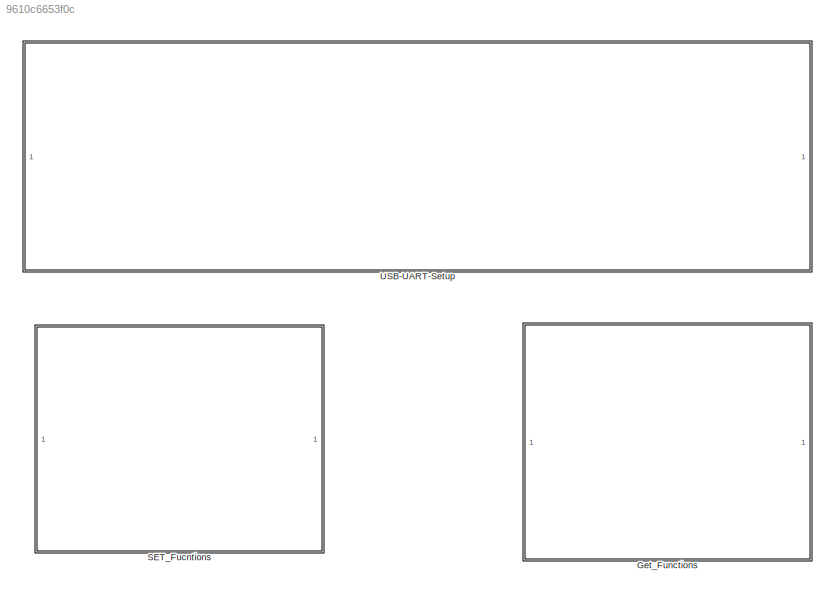
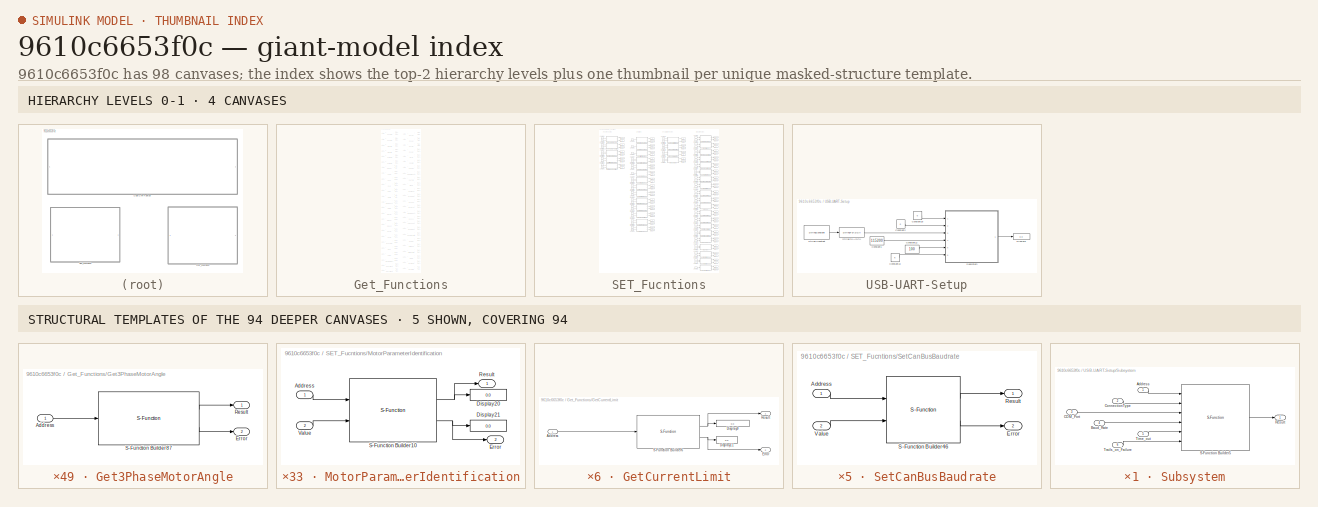
[diagram: thumbnail index - top-2 hierarchy levels (4 canvases) + 5 structural-template representatives of the remaining 94 canvases]
MODEL slx_9610c6653f0c
KIND model
CONFIG AbsTol = auto
CONFIG EnableMultiTasking = off
CONFIG FixedStep = auto
CONFIG MaxStep = auto
CONFIG MinStep = auto
CONFIG RelTol = 1e-3
CONFIG SampleTimeConstraint = Unconstrained
CONFIG SolverName = VariableStepAuto
CONFIG StartTime = 0.0
CONFIG StopTime = inf
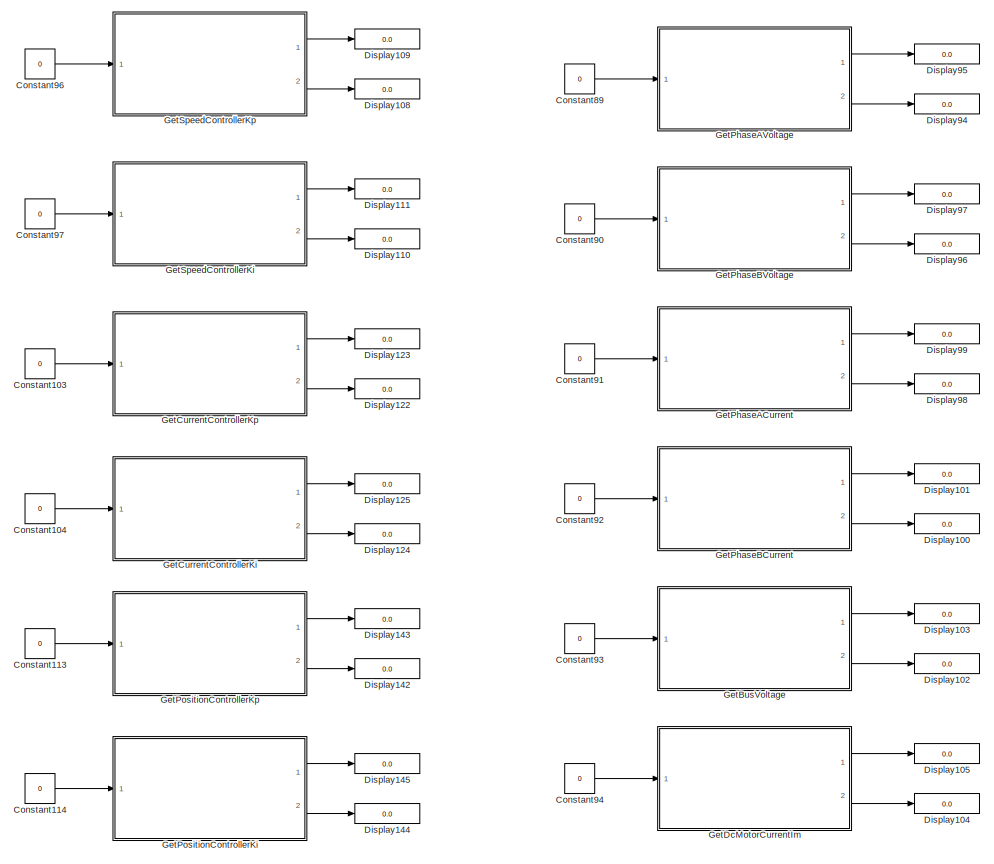
[diagram: Get_Functions - part 1/4, full width, top band]
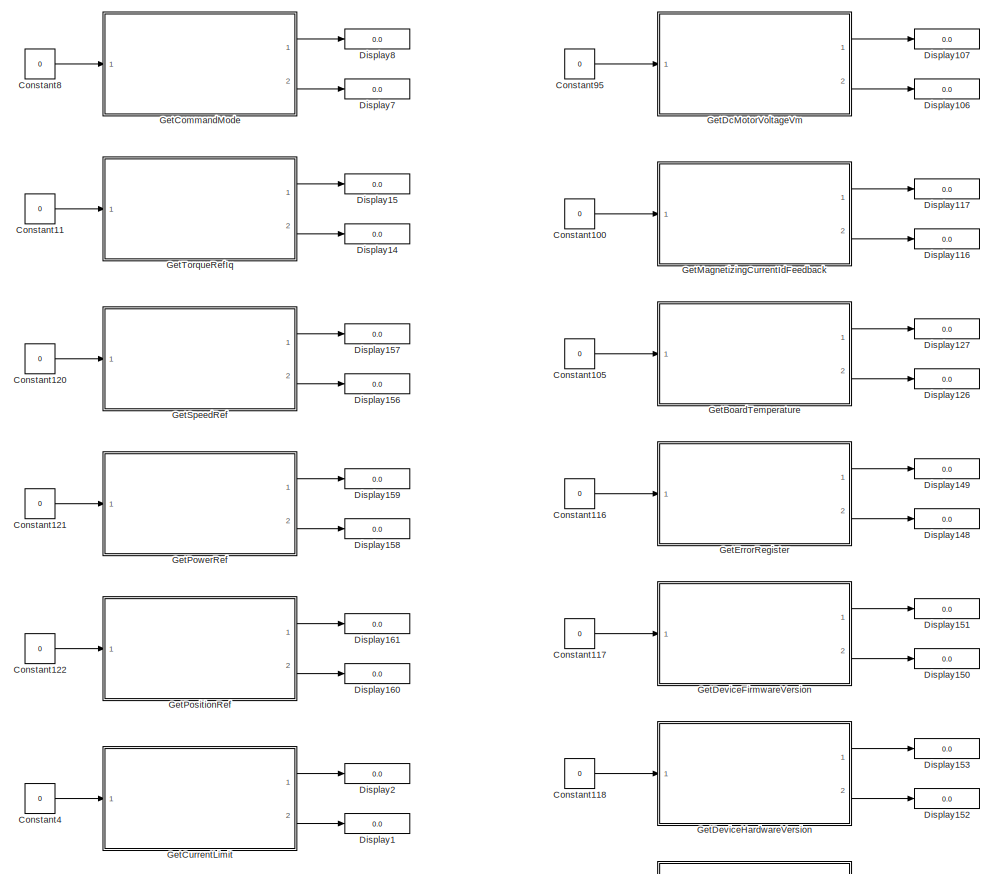
[diagram: Get_Functions - part 2/4, full width, middle band]
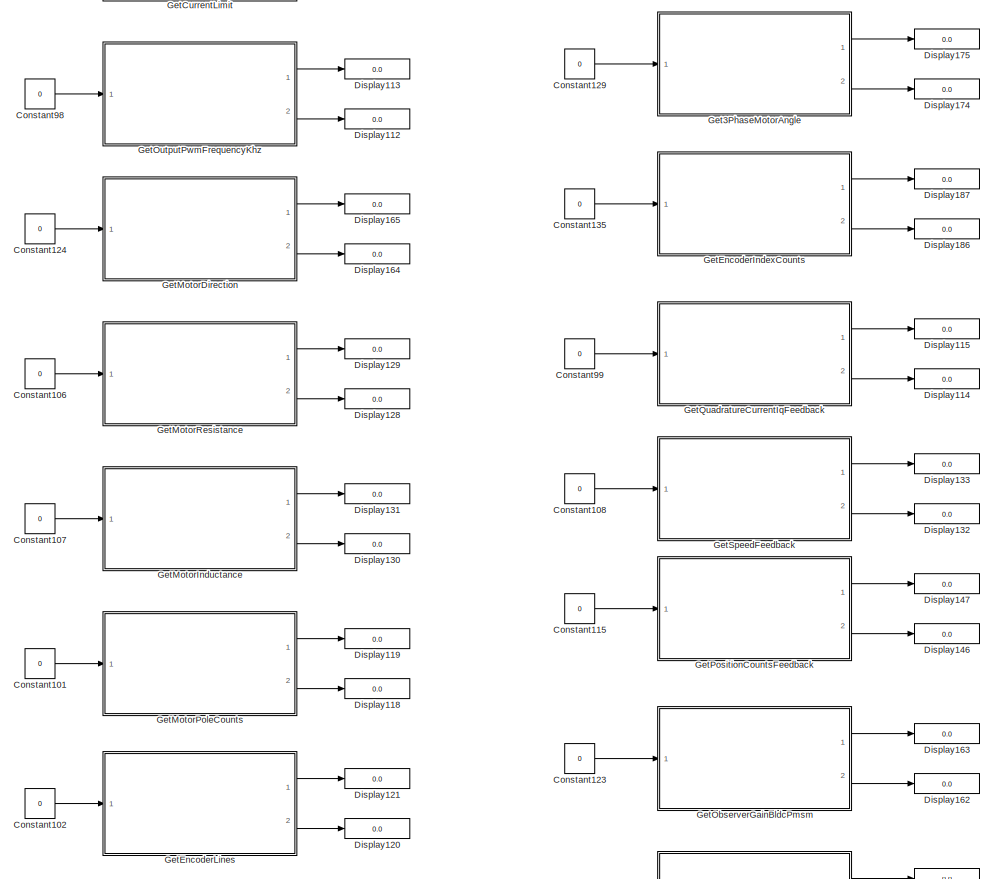
[diagram: Get_Functions - part 3/4, full width, middle band]
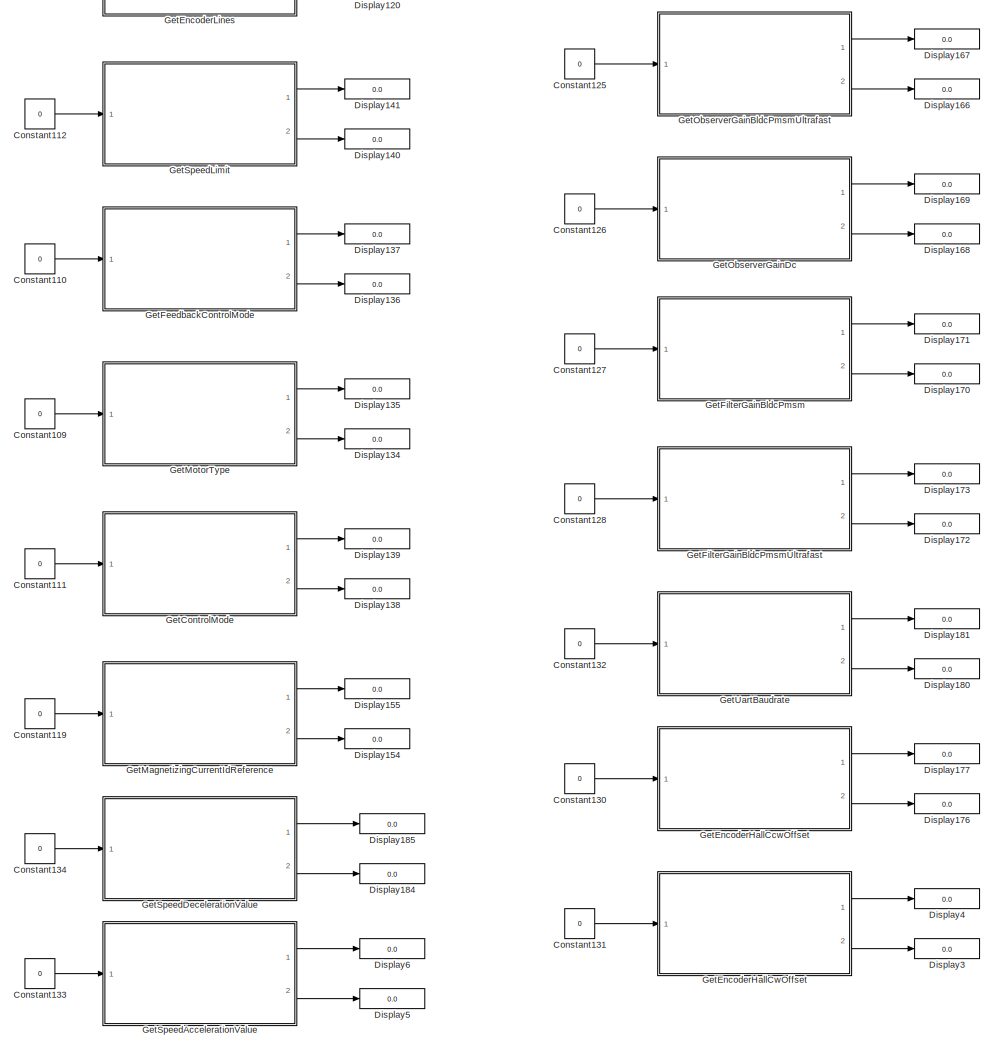
[diagram: Get_Functions - part 4/4, full width, bottom band]
BLOCK [SubSystem] Get_Functions
  Ports = []
  RequestExecContextInheritance = off
BLOCK [Constant] Get_Functions/Constant100
  OutDataTypeStr = uint8
  Value = 0
BLOCK [Constant] Get_Functions/Constant101
  OutDataTypeStr = uint8
  Value = 0
BLOCK [Constant] Get_Functions/Constant102
  OutDataTypeStr = uint8
  Value = 0
BLOCK [Constant] Get_Functions/Constant103
  OutDataTypeStr = uint8
  Value = 0
BLOCK [Constant] Get_Functions/Constant104
  OutDataTypeStr = uint8
  Value = 0
BLOCK [Constant] Get_Functions/Constant105
  OutDataTypeStr = uint8
  Value = 0
BLOCK [Constant] Get_Functions/Constant106
  OutDataTypeStr = uint8
  Value = 0
BLOCK [Constant] Get_Functions/Constant107
  OutDataTypeStr = uint8
  Value = 0
BLOCK [Constant] Get_Functions/Constant108
  OutDataTypeStr = uint8
  Value = 0
BLOCK [Constant] Get_Functions/Constant109
  OutDataTypeStr = uint8
  Value = 0
BLOCK [Constant] Get_Functions/Constant11
  OutDataTypeStr = uint8
  Value = 0
BLOCK [Constant] Get_Functions/Constant110
  OutDataTypeStr = uint8
  Value = 0
BLOCK [Constant] Get_Functions/Constant111
  OutDataTypeStr = uint8
  Value = 0
BLOCK [Constant] Get_Functions/Constant112
  OutDataTypeStr = uint8
  Value = 0
BLOCK [Constant] Get_Functions/Constant113
  OutDataTypeStr = uint8
  Value = 0
BLOCK [Constant] Get_Functions/Constant114
  OutDataTypeStr = uint8
  Value = 0
BLOCK [Constant] Get_Functions/Constant115
  OutDataTypeStr = uint8
  Value = 0
BLOCK [Constant] Get_Functions/Constant116
  OutDataTypeStr = uint8
  Value = 0
BLOCK [Constant] Get_Functions/Constant117
  OutDataTypeStr = uint8
  Value = 0
BLOCK [Constant] Get_Functions/Constant118
  OutDataTypeStr = uint8
  Value = 0
BLOCK [Constant] Get_Functions/Constant119
  OutDataTypeStr = uint8
  Value = 0
BLOCK [Constant] Get_Functions/Constant120
  OutDataTypeStr = uint8
  Value = 0
BLOCK [Constant] Get_Functions/Constant121
  OutDataTypeStr = uint8
  Value = 0
BLOCK [Constant] Get_Functions/Constant122
  OutDataTypeStr = uint8
  Value = 0
BLOCK [Constant] Get_Functions/Constant123
  OutDataTypeStr = uint8
  Value = 0
BLOCK [Constant] Get_Functions/Constant124
  OutDataTypeStr = uint8
  Value = 0
BLOCK [Constant] Get_Functions/Constant125
  OutDataTypeStr = uint8
  Value = 0
BLOCK [Constant] Get_Functions/Constant126
  OutDataTypeStr = uint8
  Value = 0
BLOCK [Constant] Get_Functions/Constant127
  OutDataTypeStr = uint8
  Value = 0
BLOCK [Constant] Get_Functions/Constant128
  OutDataTypeStr = uint8
  Value = 0
BLOCK [Constant] Get_Functions/Constant129
  OutDataTypeStr = uint8
  Value = 0
BLOCK [Constant] Get_Functions/Constant130
  OutDataTypeStr = uint8
  Value = 0
BLOCK [Constant] Get_Functions/Constant131
  OutDataTypeStr = uint8
  Value = 0
BLOCK [Constant] Get_Functions/Constant132
  OutDataTypeStr = uint8
  Value = 0
BLOCK [Constant] Get_Functions/Constant133
  OutDataTypeStr = uint8
  Value = 0
BLOCK [Constant] Get_Functions/Constant134
  OutDataTypeStr = uint8
  Value = 0
BLOCK [Constant] Get_Functions/Constant135
  OutDataTypeStr = uint8
  Value = 0
BLOCK [Constant] Get_Functions/Constant4
  OutDataTypeStr = uint8
  Value = 0
BLOCK [Constant] Get_Functions/Constant8
  OutDataTypeStr = uint8
  Value = 0
BLOCK [Constant] Get_Functions/Constant89
  OutDataTypeStr = uint8
  Value = 0
BLOCK [Constant] Get_Functions/Constant90
  OutDataTypeStr = uint8
  Value = 0
BLOCK [Constant] Get_Functions/Constant91
  OutDataTypeStr = uint8
  Value = 0
BLOCK [Constant] Get_Functions/Constant92
  OutDataTypeStr = uint8
  Value = 0
BLOCK [Constant] Get_Functions/Constant93
  OutDataTypeStr = uint8
  Value = 0
BLOCK [Constant] Get_Functions/Constant94
  OutDataTypeStr = uint8
  Value = 0
BLOCK [Constant] Get_Functions/Constant95
  OutDataTypeStr = uint8
  Value = 0
BLOCK [Constant] Get_Functions/Constant96
  OutDataTypeStr = uint8
  Value = 0
BLOCK [Constant] Get_Functions/Constant97
  OutDataTypeStr = uint8
  Value = 0
BLOCK [Constant] Get_Functions/Constant98
  OutDataTypeStr = uint8
  Value = 0
BLOCK [Constant] Get_Functions/Constant99
  OutDataTypeStr = uint8
  Value = 0
BLOCK [Display] Get_Functions/Display1
  Decimation = 1
  Format = decimal (Stored Integer)
  Ports = [1]
BLOCK [Display] Get_Functions/Display100
  Decimation = 1
  Format = decimal (Stored Integer)
  Ports = [1]
BLOCK [Display] Get_Functions/Display101
  Decimation = 1
  Format = decimal (Stored Integer)
  Ports = [1]
BLOCK [Display] Get_Functions/Display102
  Decimation = 1
  Format = decimal (Stored Integer)
  Ports = [1]
BLOCK [Display] Get_Functions/Display103
  Decimation = 1
  Format = decimal (Stored Integer)
  Ports = [1]
BLOCK [Display] Get_Functions/Display104
  Decimation = 1
  Format = decimal (Stored Integer)
  Ports = [1]
BLOCK [Display] Get_Functions/Display105
  Decimation = 1
  Format = decimal (Stored Integer)
  Ports = [1]
BLOCK [Display] Get_Functions/Display106
  Decimation = 1
  Format = decimal (Stored Integer)
  Ports = [1]
BLOCK [Display] Get_Functions/Display107
  Decimation = 1
  Format = decimal (Stored Integer)
  Ports = [1]
BLOCK [Display] Get_Functions/Display108
  Decimation = 1
  Format = decimal (Stored Integer)
  Ports = [1]
BLOCK [Display] Get_Functions/Display109
  Decimation = 1
  Format = decimal (Stored Integer)
  Ports = [1]
BLOCK [Display] Get_Functions/Display110
  Decimation = 1
  Format = decimal (Stored Integer)
  Ports = [1]
BLOCK [Display] Get_Functions/Display111
  Decimation = 1
  Format = decimal (Stored Integer)
  Ports = [1]
BLOCK [Display] Get_Functions/Display112
  Decimation = 1
  Format = decimal (Stored Integer)
  Ports = [1]
BLOCK [Display] Get_Functions/Display113
  Decimation = 1
  Format = decimal (Stored Integer)
  Ports = [1]
BLOCK [Display] Get_Functions/Display114
  Decimation = 1
  Format = decimal (Stored Integer)
  Ports = [1]
BLOCK [Display] Get_Functions/Display115
  Decimation = 1
  Format = decimal (Stored Integer)
  Ports = [1]
BLOCK [Display] Get_Functions/Display116
  Decimation = 1
  Format = decimal (Stored Integer)
  Ports = [1]
BLOCK [Display] Get_Functions/Display117
  Decimation = 1
  Format = decimal (Stored Integer)
  Ports = [1]
BLOCK [Display] Get_Functions/Display118
  Decimation = 1
  Format = decimal (Stored Integer)
  Ports = [1]
BLOCK [Display] Get_Functions/Display119
  Decimation = 1
  Format = decimal (Stored Integer)
  Ports = [1]
BLOCK [Display] Get_Functions/Display120
  Decimation = 1
  Format = decimal (Stored Integer)
  Ports = [1]
BLOCK [Display] Get_Functions/Display121
  Decimation = 1
  Format = decimal (Stored Integer)
  Ports = [1]
BLOCK [Display] Get_Functions/Display122
  Decimation = 1
  Format = decimal (Stored Integer)
  Ports = [1]
BLOCK [Display] Get_Functions/Display123
  Decimation = 1
  Format = decimal (Stored Integer)
  Ports = [1]
BLOCK [Display] Get_Functions/Display124
  Decimation = 1
  Format = decimal (Stored Integer)
  Ports = [1]
BLOCK [Display] Get_Functions/Display125
  Decimation = 1
  Format = decimal (Stored Integer)
  Ports = [1]
BLOCK [Display] Get_Functions/Display126
  Decimation = 1
  Format = decimal (Stored Integer)
  Ports = [1]
BLOCK [Display] Get_Functions/Display127
  Decimation = 1
  Format = decimal (Stored Integer)
  Ports = [1]
BLOCK [Display] Get_Functions/Display128
  Decimation = 1
  Format = decimal (Stored Integer)
  Ports = [1]
BLOCK [Display] Get_Functions/Display129
  Decimation = 1
  Format = decimal (Stored Integer)
  Ports = [1]
BLOCK [Display] Get_Functions/Display130
  Decimation = 1
  Format = decimal (Stored Integer)
  Ports = [1]
BLOCK [Display] Get_Functions/Display131
  Decimation = 1
  Format = decimal (Stored Integer)
  Ports = [1]
BLOCK [Display] Get_Functions/Display132
  Decimation = 1
  Format = decimal (Stored Integer)
  Ports = [1]
BLOCK [Display] Get_Functions/Display133
  Decimation = 1
  Format = decimal (Stored Integer)
  Ports = [1]
BLOCK [Display] Get_Functions/Display134
  Decimation = 1
  Format = decimal (Stored Integer)
  Ports = [1]
BLOCK [Display] Get_Functions/Display135
  Decimation = 1
  Format = decimal (Stored Integer)
  Ports = [1]
BLOCK [Display] Get_Functions/Display136
  Decimation = 1
  Format = decimal (Stored Integer)
  Ports = [1]
BLOCK [Display] Get_Functions/Display137
  Decimation = 1
  Format = decimal (Stored Integer)
  Ports = [1]
BLOCK [Display] Get_Functions/Display138
  Decimation = 1
  Format = decimal (Stored Integer)
  Ports = [1]
BLOCK [Display] Get_Functions/Display139
  Decimation = 1
  Format = decimal (Stored Integer)
  Ports = [1]
BLOCK [Display] Get_Functions/Display14
  Decimation = 1
  Format = decimal (Stored Integer)
  Ports = [1]
BLOCK [Display] Get_Functions/Display140
  Decimation = 1
  Format = decimal (Stored Integer)
  Ports = [1]
BLOCK [Display] Get_Functions/Display141
  Decimation = 1
  Format = decimal (Stored Integer)
  Ports = [1]
BLOCK [Display] Get_Functions/Display142
  Decimation = 1
  Format = decimal (Stored Integer)
  Ports = [1]
BLOCK [Display] Get_Functions/Display143
  Decimation = 1
  Format = decimal (Stored Integer)
  Ports = [1]
BLOCK [Display] Get_Functions/Display144
  Decimation = 1
  Format = decimal (Stored Integer)
  Ports = [1]
BLOCK [Display] Get_Functions/Display145
  Decimation = 1
  Format = decimal (Stored Integer)
  Ports = [1]
BLOCK [Display] Get_Functions/Display146
  Decimation = 1
  Format = decimal (Stored Integer)
  Ports = [1]
BLOCK [Display] Get_Functions/Display147
  Decimation = 1
  Format = decimal (Stored Integer)
  Ports = [1]
BLOCK [Display] Get_Functions/Display148
  Decimation = 1
  Format = decimal (Stored Integer)
  Ports = [1]
BLOCK [Display] Get_Functions/Display149
  Decimation = 1
  Format = decimal (Stored Integer)
  Ports = [1]
BLOCK [Display] Get_Functions/Display15
  Decimation = 1
  Format = decimal (Stored Integer)
  Ports = [1]
BLOCK [Display] Get_Functions/Display150
  Decimation = 1
  Format = decimal (Stored Integer)
  Ports = [1]
BLOCK [Display] Get_Functions/Display151
  Decimation = 1
  Format = decimal (Stored Integer)
  Ports = [1]
BLOCK [Display] Get_Functions/Display152
  Decimation = 1
  Format = decimal (Stored Integer)
  Ports = [1]
BLOCK [Display] Get_Functions/Display153
  Decimation = 1
  Format = decimal (Stored Integer)
  Ports = [1]
BLOCK [Display] Get_Functions/Display154
  Decimation = 1
  Format = decimal (Stored Integer)
  Ports = [1]
BLOCK [Display] Get_Functions/Display155
  Decimation = 1
  Format = decimal (Stored Integer)
  Ports = [1]
BLOCK [Display] Get_Functions/Display156
  Decimation = 1
  Format = decimal (Stored Integer)
  Ports = [1]
BLOCK [Display] Get_Functions/Display157
  Decimation = 1
  Format = decimal (Stored Integer)
  Ports = [1]
BLOCK [Display] Get_Functions/Display158
  Decimation = 1
  Format = decimal (Stored Integer)
  Ports = [1]
BLOCK [Display] Get_Functions/Display159
  Decimation = 1
  Format = decimal (Stored Integer)
  Ports = [1]
BLOCK [Display] Get_Functions/Display160
  Decimation = 1
  Format = decimal (Stored Integer)
  Ports = [1]
BLOCK [Display] Get_Functions/Display161
  Decimation = 1
  Format = decimal (Stored Integer)
  Ports = [1]
BLOCK [Display] Get_Functions/Display162
  Decimation = 1
  Format = decimal (Stored Integer)
  Ports = [1]
BLOCK [Display] Get_Functions/Display163
  Decimation = 1
  Format = decimal (Stored Integer)
  Ports = [1]
BLOCK [Display] Get_Functions/Display164
  Decimation = 1
  Format = decimal (Stored Integer)
  Ports = [1]
BLOCK [Display] Get_Functions/Display165
  Decimation = 1
  Format = decimal (Stored Integer)
  Ports = [1]
BLOCK [Display] Get_Functions/Display166
  Decimation = 1
  Format = decimal (Stored Integer)
  Ports = [1]
BLOCK [Display] Get_Functions/Display167
  Decimation = 1
  Format = decimal (Stored Integer)
  Ports = [1]
BLOCK [Display] Get_Functions/Display168
  Decimation = 1
  Format = decimal (Stored Integer)
  Ports = [1]
BLOCK [Display] Get_Functions/Display169
  Decimation = 1
  Format = decimal (Stored Integer)
  Ports = [1]
BLOCK [Display] Get_Functions/Display170
  Decimation = 1
  Format = decimal (Stored Integer)
  Ports = [1]
BLOCK [Display] Get_Functions/Display171
  Decimation = 1
  Format = decimal (Stored Integer)
  Ports = [1]
BLOCK [Display] Get_Functions/Display172
  Decimation = 1
  Format = decimal (Stored Integer)
  Ports = [1]
BLOCK [Display] Get_Functions/Display173
  Decimation = 1
  Format = decimal (Stored Integer)
  Ports = [1]
BLOCK [Display] Get_Functions/Display174
  Decimation = 1
  Format = decimal (Stored Integer)
  Ports = [1]
BLOCK [Display] Get_Functions/Display175
  Decimation = 1
  Format = decimal (Stored Integer)
  Ports = [1]
BLOCK [Display] Get_Functions/Display176
  Decimation = 1
  Format = decimal (Stored Integer)
  Ports = [1]
BLOCK [Display] Get_Functions/Display177
  Decimation = 1
  Format = decimal (Stored Integer)
  Ports = [1]
BLOCK [Display] Get_Functions/Display180
  Decimation = 1
  Format = decimal (Stored Integer)
  Ports = [1]
BLOCK [Display] Get_Functions/Display181
  Decimation = 1
  Format = decimal (Stored Integer)
  Ports = [1]
BLOCK [Display] Get_Functions/Display184
  Decimation = 1
  Format = decimal (Stored Integer)
  Ports = [1]
BLOCK [Display] Get_Functions/Display185
  Decimation = 1
  Format = decimal (Stored Integer)
  Ports = [1]
BLOCK [Display] Get_Functions/Display186
  Decimation = 1
  Format = decimal (Stored Integer)
  Ports = [1]
BLOCK [Display] Get_Functions/Display187
  Decimation = 1
  Format = decimal (Stored Integer)
  Ports = [1]
BLOCK [Display] Get_Functions/Display2
  Decimation = 1
  Format = decimal (Stored Integer)
  Ports = [1]
BLOCK [Display] Get_Functions/Display3
  Decimation = 1
  Format = decimal (Stored Integer)
  Ports = [1]
BLOCK [Display] Get_Functions/Display4
  Decimation = 1
  Format = decimal (Stored Integer)
  Ports = [1]
BLOCK [Display] Get_Functions/Display5
  Decimation = 1
  Format = decimal (Stored Integer)
  Ports = [1]
BLOCK [Display] Get_Functions/Display6
  Decimation = 1
  Format = decimal (Stored Integer)
  Ports = [1]
BLOCK [Display] Get_Functions/Display7
  Decimation = 1
  Format = decimal (Stored Integer)
  Ports = [1]
BLOCK [Display] Get_Functions/Display8
  Decimation = 1
  Format = decimal (Stored Integer)
  Ports = [1]
BLOCK [Display] Get_Functions/Display94
  Decimation = 1
  Format = decimal (Stored Integer)
  Ports = [1]
BLOCK [Display] Get_Functions/Display95
  Decimation = 1
  Format = decimal (Stored Integer)
  Ports = [1]
BLOCK [Display] Get_Functions/Display96
  Decimation = 1
  Format = decimal (Stored Integer)
  Ports = [1]
BLOCK [Display] Get_Functions/Display97
  Decimation = 1
  Format = decimal (Stored Integer)
  Ports = [1]
BLOCK [Display] Get_Functions/Display98
  Decimation = 1
  Format = decimal (Stored Integer)
  Ports = [1]
BLOCK [Display] Get_Functions/Display99
  Decimation = 1
  Format = decimal (Stored Integer)
  Ports = [1]
BLOCK [SubSystem] Get_Functions/Get3PhaseMotorAngle
  Ports = [1, 2]
  RequestExecContextInheritance = off
BLOCK [Inport] Get_Functions/Get3PhaseMotorAngle/Address
BLOCK [Outport] Get_Functions/Get3PhaseMotorAngle/Error
  Port = 2
BLOCK [Outport] Get_Functions/Get3PhaseMotorAngle/Result
BLOCK [S-Function] Get_Functions/Get3PhaseMotorAngle/S-Function Builder87
  CopyFcn = set_param(gcbh,'LinkStatus','none')
  EnableBusSupport = off
  FunctionName = Get3PhaseMotorAngle
  OpenFcn = sfunctionwizard(gcbh)
  Ports = [1, 2]
  Priority = 3
  SFcnIsStateOwnerBlock = off
  SFunctionDeploymentMode = off
  SFunctionModules = Get3PhaseMotorAngle_wrapper
BLOCK [SubSystem] Get_Functions/GetBoardTemperature
  Ports = [1, 2]
  RequestExecContextInheritance = off
BLOCK [Inport] Get_Functions/GetBoardTemperature/Address
BLOCK [Outport] Get_Functions/GetBoardTemperature/Error
  Port = 2
BLOCK [Outport] Get_Functions/GetBoardTemperature/Result
BLOCK [S-Function] Get_Functions/GetBoardTemperature/S-Function Builder63
  CopyFcn = set_param(gcbh,'LinkStatus','none')
  EnableBusSupport = off
  FunctionName = GetBoardTemperature
  OpenFcn = sfunctionwizard(gcbh)
  Ports = [1, 2]
  Priority = 3
  SFcnIsStateOwnerBlock = off
  SFunctionDeploymentMode = off
  SFunctionModules = GetBoardTemperature_wrapper
BLOCK [SubSystem] Get_Functions/GetBusVoltage
  Ports = [1, 2]
  RequestExecContextInheritance = off
BLOCK [Inport] Get_Functions/GetBusVoltage/Address
BLOCK [Outport] Get_Functions/GetBusVoltage/Out2
  Port = 2
BLOCK [Outport] Get_Functions/GetBusVoltage/Result
BLOCK [S-Function] Get_Functions/GetBusVoltage/S-Function Builder51
  CopyFcn = set_param(gcbh,'LinkStatus','none')
  EnableBusSupport = off
  FunctionName = GetBusVoltage
  OpenFcn = sfunctionwizard(gcbh)
  Ports = [1, 2]
  Priority = 3
  SFcnIsStateOwnerBlock = off
  SFunctionDeploymentMode = off
  SFunctionModules = GetBusVoltage_wrapper
BLOCK [SubSystem] Get_Functions/GetCommandMode
  Ports = [1, 2]
  RequestExecContextInheritance = off
BLOCK [Inport] Get_Functions/GetCommandMode/Address
BLOCK [Outport] Get_Functions/GetCommandMode/Error
  Port = 2
BLOCK [Outport] Get_Functions/GetCommandMode/Result
BLOCK [S-Function] Get_Functions/GetCommandMode/S-Function Builder3
  CopyFcn = set_param(gcbh,'LinkStatus','none')
  EnableBusSupport = off
  FunctionName = GetCommandMode
  OpenFcn = sfunctionwizard(gcbh)
  Ports = [1, 2]
  Priority = 3
  SFcnIsStateOwnerBlock = off
  SFunctionDeploymentMode = off
  SFunctionModules = GetCommandMode_wrapper
BLOCK [SubSystem] Get_Functions/GetControlMode
  Ports = [1, 2]
  RequestExecContextInheritance = off
BLOCK [Inport] Get_Functions/GetControlMode/Address
BLOCK [Outport] Get_Functions/GetControlMode/Error
  Port = 2
BLOCK [Outport] Get_Functions/GetControlMode/Result
BLOCK [S-Function] Get_Functions/GetControlMode/S-Function Builder69
  CopyFcn = set_param(gcbh,'LinkStatus','none')
  EnableBusSupport = off
  FunctionName = GetControlMode
  OpenFcn = sfunctionwizard(gcbh)
  Ports = [1, 2]
  Priority = 3
  SFcnIsStateOwnerBlock = off
  SFunctionDeploymentMode = off
  SFunctionModules = GetControlMode_wrapper
BLOCK [SubSystem] Get_Functions/GetCurrentControllerKi
  Ports = [1, 2]
  RequestExecContextInheritance = off
BLOCK [Inport] Get_Functions/GetCurrentControllerKi/Address
BLOCK [Outport] Get_Functions/GetCurrentControllerKi/Out2
  Port = 2
BLOCK [Outport] Get_Functions/GetCurrentControllerKi/Result
BLOCK [S-Function] Get_Functions/GetCurrentControllerKi/S-Function Builder62
  CopyFcn = set_param(gcbh,'LinkStatus','none')
  EnableBusSupport = off
  FunctionName = GetCurrentControllerKi
  OpenFcn = sfunctionwizard(gcbh)
  Ports = [1, 2]
  Priority = 3
  SFcnIsStateOwnerBlock = off
  SFunctionDeploymentMode = off
  SFunctionModules = GetCurrentControllerKi_wrapper
BLOCK [SubSystem] Get_Functions/GetCurrentControllerKp
  Ports = [1, 2]
  RequestExecContextInheritance = off
BLOCK [Inport] Get_Functions/GetCurrentControllerKp/Address
BLOCK [Outport] Get_Functions/GetCurrentControllerKp/Error
  Port = 2
BLOCK [Outport] Get_Functions/GetCurrentControllerKp/Result
BLOCK [S-Function] Get_Functions/GetCurrentControllerKp/S-Function Builder61
  CopyFcn = set_param(gcbh,'LinkStatus','none')
  EnableBusSupport = off
  FunctionName = GetCurrentControllerKp
  OpenFcn = sfunctionwizard(gcbh)
  Ports = [1, 2]
  Priority = 3
  SFcnIsStateOwnerBlock = off
  SFunctionDeploymentMode = off
  SFunctionModules = GetCurrentControllerKp_wrapper
BLOCK [SubSystem] Get_Functions/GetCurrentLimit
  Ports = [1, 2]
  RequestExecContextInheritance = off
BLOCK [Inport] Get_Functions/GetCurrentLimit/Address
  IconDisplay = Signal name
BLOCK [Display] Get_Functions/GetCurrentLimit/Display11
  Decimation = 1
  Format = decimal (Stored Integer)
  Ports = [1]
BLOCK [Display] Get_Functions/GetCurrentLimit/Display9
  Decimation = 1
  Format = decimal (Stored Integer)
  Ports = [1]
BLOCK [Outport] Get_Functions/GetCurrentLimit/Error
  LockScale = on
  OutDataTypeStr = int32
  Port = 2
BLOCK [Outport] Get_Functions/GetCurrentLimit/Result
  LockScale = on
  OutDataTypeStr = single
BLOCK [S-Function] Get_Functions/GetCurrentLimit/S-Function Builder6
  CopyFcn = set_param(gcbh,'LinkStatus','none')
  EnableBusSupport = off
  FunctionName = GetCurrentLimit
  OpenFcn = sfunctionwizard(gcbh)
  Ports = [1, 2]
  Priority = 3
  SFcnIsStateOwnerBlock = off
  SFunctionDeploymentMode = off
  SFunctionModules = GetCurrentLimit_wrapper
BLOCK [SubSystem] Get_Functions/GetDcMotorCurrentIm
  Ports = [1, 2]
  RequestExecContextInheritance = off
BLOCK [Inport] Get_Functions/GetDcMotorCurrentIm/Address
BLOCK [Outport] Get_Functions/GetDcMotorCurrentIm/Error
  Port = 2
BLOCK [Outport] Get_Functions/GetDcMotorCurrentIm/Result
BLOCK [S-Function] Get_Functions/GetDcMotorCurrentIm/S-Function Builder52
  CopyFcn = set_param(gcbh,'LinkStatus','none')
  EnableBusSupport = off
  FunctionName = GetDcMotorCurrentIm
  OpenFcn = sfunctionwizard(gcbh)
  Ports = [1, 2]
  Priority = 3
  SFcnIsStateOwnerBlock = off
  SFunctionDeploymentMode = off
  SFunctionModules = GetDcMotorCurrentIm_wrapper
BLOCK [SubSystem] Get_Functions/GetDcMotorVoltageVm
  Ports = [1, 2]
  RequestExecContextInheritance = off
BLOCK [Inport] Get_Functions/GetDcMotorVoltageVm/Address
BLOCK [Outport] Get_Functions/GetDcMotorVoltageVm/Error
  Port = 2
BLOCK [Outport] Get_Functions/GetDcMotorVoltageVm/Result
BLOCK [S-Function] Get_Functions/GetDcMotorVoltageVm/S-Function Builder53
  CopyFcn = set_param(gcbh,'LinkStatus','none')
  EnableBusSupport = off
  FunctionName = GetDcMotorVoltageVm
  OpenFcn = sfunctionwizard(gcbh)
  Ports = [1, 2]
  Priority = 3
  SFcnIsStateOwnerBlock = off
  SFunctionDeploymentMode = off
  SFunctionModules = GetDcMotorVoltageVm_wrapper
BLOCK [SubSystem] Get_Functions/GetDeviceFirmwareVersion
  Ports = [1, 2]
  RequestExecContextInheritance = off
BLOCK [Inport] Get_Functions/GetDeviceFirmwareVersion/Address
BLOCK [Outport] Get_Functions/GetDeviceFirmwareVersion/Error
  Port = 2
BLOCK [Outport] Get_Functions/GetDeviceFirmwareVersion/Result
BLOCK [S-Function] Get_Functions/GetDeviceFirmwareVersion/S-Function Builder75
  CopyFcn = set_param(gcbh,'LinkStatus','none')
  EnableBusSupport = off
  FunctionName = GetDeviceFirmwareVersion
  OpenFcn = sfunctionwizard(gcbh)
  Ports = [1, 2]
  Priority = 3
  SFcnIsStateOwnerBlock = off
  SFunctionDeploymentMode = off
  SFunctionModules = GetDeviceFirmwareVersion_wrapper
BLOCK [SubSystem] Get_Functions/GetDeviceHardwareVersion
  Ports = [1, 2]
  RequestExecContextInheritance = off
BLOCK [Inport] Get_Functions/GetDeviceHardwareVersion/Address
BLOCK [Outport] Get_Functions/GetDeviceHardwareVersion/Error
  Port = 2
BLOCK [Outport] Get_Functions/GetDeviceHardwareVersion/Result
BLOCK [S-Function] Get_Functions/GetDeviceHardwareVersion/S-Function Builder76
  CopyFcn = set_param(gcbh,'LinkStatus','none')
  EnableBusSupport = off
  FunctionName = GetDeviceHardwareVersion
  OpenFcn = sfunctionwizard(gcbh)
  Ports = [1, 2]
  Priority = 3
  SFcnIsStateOwnerBlock = off
  SFunctionDeploymentMode = off
  SFunctionModules = GetDeviceHardwareVersion_wrapper
BLOCK [SubSystem] Get_Functions/GetEncoderHallCcwOffset
  Ports = [1, 2]
  RequestExecContextInheritance = off
BLOCK [Inport] Get_Functions/GetEncoderHallCcwOffset/Address
BLOCK [Outport] Get_Functions/GetEncoderHallCcwOffset/Error
  Port = 2
BLOCK [Outport] Get_Functions/GetEncoderHallCcwOffset/Result
BLOCK [S-Function] Get_Functions/GetEncoderHallCcwOffset/S-Function Builder88
  CopyFcn = set_param(gcbh,'LinkStatus','none')
  EnableBusSupport = off
  FunctionName = GetEncoderHallCcwOffset
  OpenFcn = sfunctionwizard(gcbh)
  Ports = [1, 2]
  Priority = 3
  SFcnIsStateOwnerBlock = off
  SFunctionDeploymentMode = off
  SFunctionModules = GetEncoderHallCcwOffset_wrapper
BLOCK [SubSystem] Get_Functions/GetEncoderHallCwOffset
  Ports = [1, 2]
  RequestExecContextInheritance = off
BLOCK [Inport] Get_Functions/GetEncoderHallCwOffset/Address
BLOCK [Outport] Get_Functions/GetEncoderHallCwOffset/Error
  Port = 2
BLOCK [Outport] Get_Functions/GetEncoderHallCwOffset/Result
BLOCK [S-Function] Get_Functions/GetEncoderHallCwOffset/S-Function Builder89
  CopyFcn = set_param(gcbh,'LinkStatus','none')
  EnableBusSupport = off
  FunctionName = GetEncoderHallCwOffset
  OpenFcn = sfunctionwizard(gcbh)
  Ports = [1, 2]
  Priority = 3
  SFcnIsStateOwnerBlock = off
  SFunctionDeploymentMode = off
  SFunctionModules = GetEncoderHallCwOffset_wrapper
BLOCK [SubSystem] Get_Functions/GetEncoderIndexCounts
  Ports = [1, 2]
  RequestExecContextInheritance = off
BLOCK [Inport] Get_Functions/GetEncoderIndexCounts/Address
BLOCK [Outport] Get_Functions/GetEncoderIndexCounts/Error
  Port = 2
BLOCK [Outport] Get_Functions/GetEncoderIndexCounts/Result
BLOCK [S-Function] Get_Functions/GetEncoderIndexCounts/S-Function Builder93
  CopyFcn = set_param(gcbh,'LinkStatus','none')
  EnableBusSupport = off
  FunctionName = GetEncoderIndexCounts
  OpenFcn = sfunctionwizard(gcbh)
  Ports = [1, 2]
  Priority = 3
  SFcnIsStateOwnerBlock = off
  SFunctionDeploymentMode = off
  SFunctionModules = GetEncoderIndexCounts_wrapper
BLOCK [SubSystem] Get_Functions/GetEncoderLines
  Ports = [1, 2]
  RequestExecContextInheritance = off
BLOCK [Inport] Get_Functions/GetEncoderLines/Address
BLOCK [Outport] Get_Functions/GetEncoderLines/Error
  Port = 2
BLOCK [Outport] Get_Functions/GetEncoderLines/Result
BLOCK [S-Function] Get_Functions/GetEncoderLines/S-Function Builder60
  CopyFcn = set_param(gcbh,'LinkStatus','none')
  EnableBusSupport = off
  FunctionName = GetIncrementalEncoderLines
  OpenFcn = sfunctionwizard(gcbh)
  Ports = [1, 2]
  Priority = 3
  SFcnIsStateOwnerBlock = off
  SFunctionDeploymentMode = off
  SFunctionModules = GetIncrementalEncoderLines_wrapper
BLOCK [SubSystem] Get_Functions/GetErrorRegister
  Ports = [1, 2]
  RequestExecContextInheritance = off
BLOCK [Inport] Get_Functions/GetErrorRegister/Address
BLOCK [Outport] Get_Functions/GetErrorRegister/Out2
  Port = 2
BLOCK [Outport] Get_Functions/GetErrorRegister/Result
BLOCK [S-Function] Get_Functions/GetErrorRegister/S-Function Builder74
  CopyFcn = set_param(gcbh,'LinkStatus','none')
  EnableBusSupport = off
  FunctionName = GetErrorRegister
  OpenFcn = sfunctionwizard(gcbh)
  Ports = [1, 2]
  Priority = 3
  SFcnIsStateOwnerBlock = off
  SFunctionDeploymentMode = off
  SFunctionModules = GetErrorRegister_wrapper
BLOCK [SubSystem] Get_Functions/GetFeedbackControlMode
  Ports = [1, 2]
  RequestExecContextInheritance = off
BLOCK [Inport] Get_Functions/GetFeedbackControlMode/Address
BLOCK [Outport] Get_Functions/GetFeedbackControlMode/Error
  Port = 2
BLOCK [Outport] Get_Functions/GetFeedbackControlMode/Result
BLOCK [S-Function] Get_Functions/GetFeedbackControlMode/S-Function Builder68
  CopyFcn = set_param(gcbh,'LinkStatus','none')
  EnableBusSupport = off
  FunctionName = GetFeedbackControlMode
  OpenFcn = sfunctionwizard(gcbh)
  Ports = [1, 2]
  Priority = 3
  SFcnIsStateOwnerBlock = off
  SFunctionDeploymentMode = off
  SFunctionModules = GetFeedbackControlMode_wrapper
BLOCK [SubSystem] Get_Functions/GetFilterGainBldcPmsm
  Ports = [1, 2]
  RequestExecContextInheritance = off
BLOCK [Inport] Get_Functions/GetFilterGainBldcPmsm/Address
BLOCK [Outport] Get_Functions/GetFilterGainBldcPmsm/Error
  Port = 2
BLOCK [Outport] Get_Functions/GetFilterGainBldcPmsm/Result
BLOCK [S-Function] Get_Functions/GetFilterGainBldcPmsm/S-Function Builder85
  CopyFcn = set_param(gcbh,'LinkStatus','none')
  EnableBusSupport = off
  FunctionName = GetFilterGainBldcPmsm
  OpenFcn = sfunctionwizard(gcbh)
  Ports = [1, 2]
  Priority = 3
  SFcnIsStateOwnerBlock = off
  SFunctionDeploymentMode = off
  SFunctionModules = GetFilterGainBldcPmsm_wrapper
BLOCK [SubSystem] Get_Functions/GetFilterGainBldcPmsmUltrafast
  Ports = [1, 2]
  RequestExecContextInheritance = off
BLOCK [Inport] Get_Functions/GetFilterGainBldcPmsmUltrafast/Address
BLOCK [Outport] Get_Functions/GetFilterGainBldcPmsmUltrafast/Out2
  Port = 2
BLOCK [Outport] Get_Functions/GetFilterGainBldcPmsmUltrafast/Result
BLOCK [S-Function] Get_Functions/GetFilterGainBldcPmsmUltrafast/S-Function Builder86
  CopyFcn = set_param(gcbh,'LinkStatus','none')
  EnableBusSupport = off
  FunctionName = GetFilterGainBldcPmsmUltrafast
  OpenFcn = sfunctionwizard(gcbh)
  Ports = [1, 2]
  Priority = 3
  SFcnIsStateOwnerBlock = off
  SFunctionDeploymentMode = off
  SFunctionModules = GetFilterGainBldcPmsmUltrafast_wrapper
BLOCK [SubSystem] Get_Functions/GetMagnetizingCurrentIdFeedback
  Ports = [1, 2]
  RequestExecContextInheritance = off
BLOCK [Inport] Get_Functions/GetMagnetizingCurrentIdFeedback/Address
BLOCK [Outport] Get_Functions/GetMagnetizingCurrentIdFeedback/Error
  Port = 2
BLOCK [Outport] Get_Functions/GetMagnetizingCurrentIdFeedback/Result
BLOCK [S-Function] Get_Functions/GetMagnetizingCurrentIdFeedback/S-Function Builder58
  CopyFcn = set_param(gcbh,'LinkStatus','none')
  EnableBusSupport = off
  FunctionName = GetMagnetizingCurrentIdFeedback
  OpenFcn = sfunctionwizard(gcbh)
  Ports = [1, 2]
  Priority = 3
  SFcnIsStateOwnerBlock = off
  SFunctionDeploymentMode = off
  SFunctionModules = GetMagnetizingCurrentIdFeedback_wrapper
BLOCK [SubSystem] Get_Functions/GetMagnetizingCurrentIdReference
  Ports = [1, 2]
  RequestExecContextInheritance = off
BLOCK [Inport] Get_Functions/GetMagnetizingCurrentIdReference/Address
BLOCK [Outport] Get_Functions/GetMagnetizingCurrentIdReference/Error
  Port = 2
BLOCK [Outport] Get_Functions/GetMagnetizingCurrentIdReference/Result
BLOCK [S-Function] Get_Functions/GetMagnetizingCurrentIdReference/S-Function Builder77
  CopyFcn = set_param(gcbh,'LinkStatus','none')
  EnableBusSupport = off
  FunctionName = GetMagnetizingCurrentIdReference
  OpenFcn = sfunctionwizard(gcbh)
  Ports = [1, 2]
  Priority = 3
  SFcnIsStateOwnerBlock = off
  SFunctionDeploymentMode = off
  SFunctionModules = GetMagnetizingCurrentIdReference_wrapper
BLOCK [SubSystem] Get_Functions/GetMotorDirection
  Ports = [1, 2]
  RequestExecContextInheritance = off
BLOCK [Inport] Get_Functions/GetMotorDirection/Address
BLOCK [Outport] Get_Functions/GetMotorDirection/Error
  Port = 2
BLOCK [Outport] Get_Functions/GetMotorDirection/Result
BLOCK [S-Function] Get_Functions/GetMotorDirection/S-Function Builder82
  CopyFcn = set_param(gcbh,'LinkStatus','none')
  EnableBusSupport = off
  FunctionName = GetMotorDirection
  OpenFcn = sfunctionwizard(gcbh)
  Ports = [1, 2]
  Priority = 3
  SFcnIsStateOwnerBlock = off
  SFunctionDeploymentMode = off
  SFunctionModules = GetMotorDirection_wrapper
BLOCK [SubSystem] Get_Functions/GetMotorInductance
  Ports = [1, 2]
  RequestExecContextInheritance = off
BLOCK [Inport] Get_Functions/GetMotorInductance/Address
BLOCK [Outport] Get_Functions/GetMotorInductance/Error
  Port = 2
BLOCK [Outport] Get_Functions/GetMotorInductance/Result
BLOCK [S-Function] Get_Functions/GetMotorInductance/S-Function Builder65
  CopyFcn = set_param(gcbh,'LinkStatus','none')
  EnableBusSupport = off
  FunctionName = GetMotorInductance
  OpenFcn = sfunctionwizard(gcbh)
  Ports = [1, 2]
  Priority = 3
  SFcnIsStateOwnerBlock = off
  SFunctionDeploymentMode = off
  SFunctionModules = GetMotorInductance_wrapper
BLOCK [SubSystem] Get_Functions/GetMotorPoleCounts
  Ports = [1, 2]
  RequestExecContextInheritance = off
BLOCK [Inport] Get_Functions/GetMotorPoleCounts/Address
BLOCK [Outport] Get_Functions/GetMotorPoleCounts/Error
  Port = 2
BLOCK [Outport] Get_Functions/GetMotorPoleCounts/Result
BLOCK [S-Function] Get_Functions/GetMotorPoleCounts/S-Function Builder59
  CopyFcn = set_param(gcbh,'LinkStatus','none')
  EnableBusSupport = off
  FunctionName = GetMotorPolesCounts
  OpenFcn = sfunctionwizard(gcbh)
  Ports = [1, 2]
  Priority = 3
  SFcnIsStateOwnerBlock = off
  SFunctionDeploymentMode = off
  SFunctionModules = GetMotorPolesCounts_wrapper
BLOCK [SubSystem] Get_Functions/GetMotorResistance
  Ports = [1, 2]
  RequestExecContextInheritance = off
BLOCK [Inport] Get_Functions/GetMotorResistance/Address
BLOCK [Outport] Get_Functions/GetMotorResistance/Error
  Port = 2
BLOCK [Outport] Get_Functions/GetMotorResistance/Result
BLOCK [S-Function] Get_Functions/GetMotorResistance/S-Function Builder64
  CopyFcn = set_param(gcbh,'LinkStatus','none')
  EnableBusSupport = off
  FunctionName = GetMotorResistance
  OpenFcn = sfunctionwizard(gcbh)
  Ports = [1, 2]
  Priority = 3
  SFcnIsStateOwnerBlock = off
  SFunctionDeploymentMode = off
  SFunctionModules = GetMotorResistance_wrapper
BLOCK [SubSystem] Get_Functions/GetMotorType
  Ports = [1, 2]
  RequestExecContextInheritance = off
BLOCK [Inport] Get_Functions/GetMotorType/Address
BLOCK [Outport] Get_Functions/GetMotorType/Error
  Port = 2
BLOCK [Outport] Get_Functions/GetMotorType/Result
BLOCK [S-Function] Get_Functions/GetMotorType/S-Function Builder67
  CopyFcn = set_param(gcbh,'LinkStatus','none')
  EnableBusSupport = off
  FunctionName = GetMotorType
  OpenFcn = sfunctionwizard(gcbh)
  Ports = [1, 2]
  Priority = 3
  SFcnIsStateOwnerBlock = off
  SFunctionDeploymentMode = off
  SFunctionModules = GetMotorType_wrapper
BLOCK [SubSystem] Get_Functions/GetObserverGainBldcPmsm
  Ports = [1, 2]
  RequestExecContextInheritance = off
BLOCK [Inport] Get_Functions/GetObserverGainBldcPmsm/Address
BLOCK [Outport] Get_Functions/GetObserverGainBldcPmsm/Error
  Port = 2
BLOCK [Outport] Get_Functions/GetObserverGainBldcPmsm/Result
BLOCK [S-Function] Get_Functions/GetObserverGainBldcPmsm/S-Function Builder81
  CopyFcn = set_param(gcbh,'LinkStatus','none')
  EnableBusSupport = off
  FunctionName = GetObserverGainBldcPmsm
  OpenFcn = sfunctionwizard(gcbh)
  Ports = [1, 2]
  Priority = 3
  SFcnIsStateOwnerBlock = off
  SFunctionDeploymentMode = off
  SFunctionModules = GetObserverGainBldcPmsm_wrapper
BLOCK [SubSystem] Get_Functions/GetObserverGainBldcPmsmUltrafast
  Ports = [1, 2]
  RequestExecContextInheritance = off
BLOCK [Inport] Get_Functions/GetObserverGainBldcPmsmUltrafast/Address
BLOCK [Outport] Get_Functions/GetObserverGainBldcPmsmUltrafast/Error
  Port = 2
BLOCK [Outport] Get_Functions/GetObserverGainBldcPmsmUltrafast/Result
BLOCK [S-Function] Get_Functions/GetObserverGainBldcPmsmUltrafast/S-Function Builder83
  CopyFcn = set_param(gcbh,'LinkStatus','none')
  EnableBusSupport = off
  FunctionName = GetObserverGainBldcPmsmUltrafast
  OpenFcn = sfunctionwizard(gcbh)
  Ports = [1, 2]
  Priority = 3
  SFcnIsStateOwnerBlock = off
  SFunctionDeploymentMode = off
  SFunctionModules = GetObserverGainBldcPmsmUltrafast_wrapper
BLOCK [SubSystem] Get_Functions/GetObserverGainDc
  Ports = [1, 2]
  RequestExecContextInheritance = off
BLOCK [Inport] Get_Functions/GetObserverGainDc/Address
BLOCK [Outport] Get_Functions/GetObserverGainDc/Error
  Port = 2
BLOCK [Outport] Get_Functions/GetObserverGainDc/Result
BLOCK [S-Function] Get_Functions/GetObserverGainDc/S-Function Builder84
  CopyFcn = set_param(gcbh,'LinkStatus','none')
  EnableBusSupport = off
  FunctionName = GetObserverGainDc
  OpenFcn = sfunctionwizard(gcbh)
  Ports = [1, 2]
  Priority = 3
  SFcnIsStateOwnerBlock = off
  SFunctionDeploymentMode = off
  SFunctionModules = GetObserverGainDc_wrapper
BLOCK [SubSystem] Get_Functions/GetOutputPwmFrequencyKhz
  Ports = [1, 2]
  RequestExecContextInheritance = off
BLOCK [Inport] Get_Functions/GetOutputPwmFrequencyKhz/Address
BLOCK [Outport] Get_Functions/GetOutputPwmFrequencyKhz/Error
  Port = 2
BLOCK [Outport] Get_Functions/GetOutputPwmFrequencyKhz/Result
BLOCK [S-Function] Get_Functions/GetOutputPwmFrequencyKhz/S-Function Builder56
  CopyFcn = set_param(gcbh,'LinkStatus','none')
  EnableBusSupport = off
  FunctionName = GetOutputPwmFrequencyKhz
  OpenFcn = sfunctionwizard(gcbh)
  Ports = [1, 2]
  Priority = 3
  SFcnIsStateOwnerBlock = off
  SFunctionDeploymentMode = off
  SFunctionModules = GetOutputPwmFrequencyKhz_wrapper
BLOCK [SubSystem] Get_Functions/GetPhaseACurrent
  Ports = [1, 2]
  RequestExecContextInheritance = off
BLOCK [Inport] Get_Functions/GetPhaseACurrent/Address
BLOCK [Outport] Get_Functions/GetPhaseACurrent/Error
  Port = 2
BLOCK [Outport] Get_Functions/GetPhaseACurrent/Result
BLOCK [S-Function] Get_Functions/GetPhaseACurrent/S-Function Builder49
  CopyFcn = set_param(gcbh,'LinkStatus','none')
  EnableBusSupport = off
  FunctionName = GetPhaseACurrent
  OpenFcn = sfunctionwizard(gcbh)
  Ports = [1, 2]
  Priority = 3
  SFcnIsStateOwnerBlock = off
  SFunctionDeploymentMode = off
  SFunctionModules = GetPhaseACurrent_wrapper
BLOCK [SubSystem] Get_Functions/GetPhaseAVoltage
  Ports = [1, 2]
  RequestExecContextInheritance = off
BLOCK [Inport] Get_Functions/GetPhaseAVoltage/Address
BLOCK [Outport] Get_Functions/GetPhaseAVoltage/Error
  Port = 2
BLOCK [Outport] Get_Functions/GetPhaseAVoltage/Result
BLOCK [S-Function] Get_Functions/GetPhaseAVoltage/S-Function Builder47
  CopyFcn = set_param(gcbh,'LinkStatus','none')
  EnableBusSupport = off
  FunctionName = GetPhaseAVoltage
  OpenFcn = sfunctionwizard(gcbh)
  Ports = [1, 2]
  Priority = 3
  SFcnIsStateOwnerBlock = off
  SFunctionDeploymentMode = off
  SFunctionModules = GetPhaseAVoltage_wrapper
BLOCK [SubSystem] Get_Functions/GetPhaseBCurrent
  Ports = [1, 2]
  RequestExecContextInheritance = off
BLOCK [Inport] Get_Functions/GetPhaseBCurrent/Address
BLOCK [Outport] Get_Functions/GetPhaseBCurrent/Error
  Port = 2
BLOCK [Outport] Get_Functions/GetPhaseBCurrent/Result
BLOCK [S-Function] Get_Functions/GetPhaseBCurrent/S-Function Builder50
  CopyFcn = set_param(gcbh,'LinkStatus','none')
  EnableBusSupport = off
  FunctionName = GetPhaseBCurrent
  OpenFcn = sfunctionwizard(gcbh)
  Ports = [1, 2]
  Priority = 3
  SFcnIsStateOwnerBlock = off
  SFunctionDeploymentMode = off
  SFunctionModules = GetPhaseBCurrent_wrapper
BLOCK [SubSystem] Get_Functions/GetPhaseBVoltage
  Ports = [1, 2]
  RequestExecContextInheritance = off
BLOCK [Inport] Get_Functions/GetPhaseBVoltage/Address
BLOCK [Outport] Get_Functions/GetPhaseBVoltage/Error
  Port = 2
BLOCK [Outport] Get_Functions/GetPhaseBVoltage/Result
BLOCK [S-Function] Get_Functions/GetPhaseBVoltage/S-Function Builder48
  CopyFcn = set_param(gcbh,'LinkStatus','none')
  EnableBusSupport = off
  FunctionName = GetPhaseBVoltage
  OpenFcn = sfunctionwizard(gcbh)
  Ports = [1, 2]
  Priority = 3
  SFcnIsStateOwnerBlock = off
  SFunctionDeploymentMode = off
  SFunctionModules = GetPhaseBVoltage_wrapper
BLOCK [SubSystem] Get_Functions/GetPositionControllerKi
  Ports = [1, 2]
  RequestExecContextInheritance = off
BLOCK [Inport] Get_Functions/GetPositionControllerKi/Address
BLOCK [Outport] Get_Functions/GetPositionControllerKi/Error
  Port = 2
BLOCK [Outport] Get_Functions/GetPositionControllerKi/Result
BLOCK [S-Function] Get_Functions/GetPositionControllerKi/S-Function Builder72
  CopyFcn = set_param(gcbh,'LinkStatus','none')
  EnableBusSupport = off
  FunctionName = GetPositionControllerKi
  OpenFcn = sfunctionwizard(gcbh)
  Ports = [1, 2]
  Priority = 3
  SFcnIsStateOwnerBlock = off
  SFunctionDeploymentMode = off
  SFunctionModules = GetPositionControllerKi_wrapper
BLOCK [SubSystem] Get_Functions/GetPositionControllerKp
  Ports = [1, 2]
  RequestExecContextInheritance = off
BLOCK [Inport] Get_Functions/GetPositionControllerKp/Address
BLOCK [Outport] Get_Functions/GetPositionControllerKp/Error
  Port = 2
BLOCK [Outport] Get_Functions/GetPositionControllerKp/Result
BLOCK [S-Function] Get_Functions/GetPositionControllerKp/S-Function Builder71
  CopyFcn = set_param(gcbh,'LinkStatus','none')
  EnableBusSupport = off
  FunctionName = GetPositionControllerKp
  OpenFcn = sfunctionwizard(gcbh)
  Ports = [1, 2]
  Priority = 3
  SFcnIsStateOwnerBlock = off
  SFunctionDeploymentMode = off
  SFunctionModules = GetPositionControllerKp_wrapper
BLOCK [SubSystem] Get_Functions/GetPositionCountsFeedback
  Ports = [1, 2]
  RequestExecContextInheritance = off
BLOCK [Inport] Get_Functions/GetPositionCountsFeedback/Address
BLOCK [Outport] Get_Functions/GetPositionCountsFeedback/Error
  Port = 2
BLOCK [Outport] Get_Functions/GetPositionCountsFeedback/Result
BLOCK [S-Function] Get_Functions/GetPositionCountsFeedback/S-Function Builder73
  CopyFcn = set_param(gcbh,'LinkStatus','none')
  EnableBusSupport = off
  FunctionName = GetPositionCountsFeedback
  OpenFcn = sfunctionwizard(gcbh)
  Ports = [1, 2]
  Priority = 3
  SFcnIsStateOwnerBlock = off
  SFunctionDeploymentMode = off
  SFunctionModules = GetPositionCountsFeedback_wrapper
BLOCK [SubSystem] Get_Functions/GetPositionRef
  Ports = [1, 2]
  RequestExecContextInheritance = off
BLOCK [Inport] Get_Functions/GetPositionRef/Address
BLOCK [Outport] Get_Functions/GetPositionRef/Error
  Port = 2
BLOCK [Outport] Get_Functions/GetPositionRef/Result
BLOCK [S-Function] Get_Functions/GetPositionRef/S-Function Builder80
  CopyFcn = set_param(gcbh,'LinkStatus','none')
  EnableBusSupport = off
  FunctionName = GetPositionReference
  OpenFcn = sfunctionwizard(gcbh)
  Ports = [1, 2]
  Priority = 3
  SFcnIsStateOwnerBlock = off
  SFunctionDeploymentMode = off
  SFunctionModules = GetPositionReference_wrapper
BLOCK [SubSystem] Get_Functions/GetPowerRef
  Ports = [1, 2]
  RequestExecContextInheritance = off
BLOCK [Inport] Get_Functions/GetPowerRef/Address
BLOCK [Outport] Get_Functions/GetPowerRef/Error
  Port = 2
BLOCK [Outport] Get_Functions/GetPowerRef/Result
BLOCK [S-Function] Get_Functions/GetPowerRef/S-Function Builder79
  CopyFcn = set_param(gcbh,'LinkStatus','none')
  EnableBusSupport = off
  FunctionName = GetPowerReference
  OpenFcn = sfunctionwizard(gcbh)
  Ports = [1, 2]
  Priority = 3
  SFcnIsStateOwnerBlock = off
  SFunctionDeploymentMode = off
  SFunctionModules = GetPowerReference_wrapper
BLOCK [SubSystem] Get_Functions/GetQuadratureCurrentIqFeedback
  Ports = [1, 2]
  RequestExecContextInheritance = off
BLOCK [Inport] Get_Functions/GetQuadratureCurrentIqFeedback/Address
BLOCK [Outport] Get_Functions/GetQuadratureCurrentIqFeedback/Error
  Port = 2
BLOCK [Outport] Get_Functions/GetQuadratureCurrentIqFeedback/Result
BLOCK [S-Function] Get_Functions/GetQuadratureCurrentIqFeedback/S-Function Builder57
  CopyFcn = set_param(gcbh,'LinkStatus','none')
  EnableBusSupport = off
  FunctionName = GetQuadratureCurrentIqFeedback
  OpenFcn = sfunctionwizard(gcbh)
  Ports = [1, 2]
  Priority = 3
  SFcnIsStateOwnerBlock = off
  SFunctionDeploymentMode = off
  SFunctionModules = GetQuadratureCurrentIqFeedback_wrapper
BLOCK [SubSystem] Get_Functions/GetSpeedAccelerationValue
  Ports = [1, 2]
  RequestExecContextInheritance = off
BLOCK [Inport] Get_Functions/GetSpeedAccelerationValue/Address
BLOCK [Outport] Get_Functions/GetSpeedAccelerationValue/Error
  Port = 2
BLOCK [Outport] Get_Functions/GetSpeedAccelerationValue/Result
BLOCK [S-Function] Get_Functions/GetSpeedAccelerationValue/S-Function Builder91
  CopyFcn = set_param(gcbh,'LinkStatus','none')
  EnableBusSupport = off
  FunctionName = GetSpeedAccelerationValue
  OpenFcn = sfunctionwizard(gcbh)
  Ports = [1, 2]
  Priority = 3
  SFcnIsStateOwnerBlock = off
  SFunctionDeploymentMode = off
  SFunctionModules = GetSpeedAccelerationValue_wrapper
BLOCK [SubSystem] Get_Functions/GetSpeedControllerKi
  Ports = [1, 2]
  RequestExecContextInheritance = off
BLOCK [Inport] Get_Functions/GetSpeedControllerKi/Address
BLOCK [Outport] Get_Functions/GetSpeedControllerKi/Error
  Port = 2
BLOCK [Outport] Get_Functions/GetSpeedControllerKi/Result
BLOCK [S-Function] Get_Functions/GetSpeedControllerKi/S-Function Builder55
  CopyFcn = set_param(gcbh,'LinkStatus','none')
  EnableBusSupport = off
  FunctionName = GetSpeedControllerKi
  OpenFcn = sfunctionwizard(gcbh)
  Ports = [1, 2]
  Priority = 3
  SFcnIsStateOwnerBlock = off
  SFunctionDeploymentMode = off
  SFunctionModules = GetSpeedControllerKi_wrapper
BLOCK [SubSystem] Get_Functions/GetSpeedControllerKp
  Ports = [1, 2]
  RequestExecContextInheritance = off
BLOCK [Inport] Get_Functions/GetSpeedControllerKp/Address
BLOCK [Outport] Get_Functions/GetSpeedControllerKp/Error
  Port = 2
BLOCK [Outport] Get_Functions/GetSpeedControllerKp/Result
BLOCK [S-Function] Get_Functions/GetSpeedControllerKp/S-Function Builder54
  CopyFcn = set_param(gcbh,'LinkStatus','none')
  EnableBusSupport = off
  FunctionName = GetSpeedControllerKp
  OpenFcn = sfunctionwizard(gcbh)
  Ports = [1, 2]
  Priority = 3
  SFcnIsStateOwnerBlock = off
  SFunctionDeploymentMode = off
  SFunctionModules = GetSpeedControllerKp_wrapper
BLOCK [SubSystem] Get_Functions/GetSpeedDecelerationValue
  Ports = [1, 2]
  RequestExecContextInheritance = off
BLOCK [Inport] Get_Functions/GetSpeedDecelerationValue/Address
BLOCK [Outport] Get_Functions/GetSpeedDecelerationValue/Error
  Port = 2
BLOCK [Outport] Get_Functions/GetSpeedDecelerationValue/Result
BLOCK [S-Function] Get_Functions/GetSpeedDecelerationValue/S-Function Builder92
  CopyFcn = set_param(gcbh,'LinkStatus','none')
  EnableBusSupport = off
  FunctionName = GetSpeedDecelerationValue
  OpenFcn = sfunctionwizard(gcbh)
  Ports = [1, 2]
  Priority = 3
  SFcnIsStateOwnerBlock = off
  SFunctionDeploymentMode = off
  SFunctionModules = GetSpeedDecelerationValue_wrapper
BLOCK [SubSystem] Get_Functions/GetSpeedFeedback
  Ports = [1, 2]
  RequestExecContextInheritance = off
BLOCK [Inport] Get_Functions/GetSpeedFeedback/Address
BLOCK [Outport] Get_Functions/GetSpeedFeedback/Error
  Port = 2
BLOCK [Outport] Get_Functions/GetSpeedFeedback/Result
BLOCK [S-Function] Get_Functions/GetSpeedFeedback/S-Function Builder66
  CopyFcn = set_param(gcbh,'LinkStatus','none')
  EnableBusSupport = off
  FunctionName = GetSpeedFeedback
  OpenFcn = sfunctionwizard(gcbh)
  Ports = [1, 2]
  Priority = 3
  SFcnIsStateOwnerBlock = off
  SFunctionDeploymentMode = off
  SFunctionModules = GetSpeedFeedback_wrapper
BLOCK [SubSystem] Get_Functions/GetSpeedLimit
  Ports = [1, 2]
  RequestExecContextInheritance = off
BLOCK [Inport] Get_Functions/GetSpeedLimit/Address
BLOCK [Outport] Get_Functions/GetSpeedLimit/Out2
  Port = 2
BLOCK [Outport] Get_Functions/GetSpeedLimit/Result
BLOCK [S-Function] Get_Functions/GetSpeedLimit/S-Function Builder70
  CopyFcn = set_param(gcbh,'LinkStatus','none')
  EnableBusSupport = off
  FunctionName = GetSpeedLimit
  OpenFcn = sfunctionwizard(gcbh)
  Ports = [1, 2]
  Priority = 3
  SFcnIsStateOwnerBlock = off
  SFunctionDeploymentMode = off
  SFunctionModules = GetSpeedLimit_wrapper
BLOCK [SubSystem] Get_Functions/GetSpeedRef
  Ports = [1, 2]
  RequestExecContextInheritance = off
BLOCK [Inport] Get_Functions/GetSpeedRef/Address
BLOCK [Outport] Get_Functions/GetSpeedRef/Error
  Port = 2
BLOCK [Outport] Get_Functions/GetSpeedRef/Result
BLOCK [S-Function] Get_Functions/GetSpeedRef/S-Function Builder78
  CopyFcn = set_param(gcbh,'LinkStatus','none')
  EnableBusSupport = off
  FunctionName = GetSpeedReference
  OpenFcn = sfunctionwizard(gcbh)
  Ports = [1, 2]
  Priority = 3
  SFcnIsStateOwnerBlock = off
  SFunctionDeploymentMode = off
  SFunctionModules = GetSpeedReference_wrapper
BLOCK [SubSystem] Get_Functions/GetTorqueRefIq
  Ports = [1, 2]
  RequestExecContextInheritance = off
BLOCK [Inport] Get_Functions/GetTorqueRefIq/Address
BLOCK [Outport] Get_Functions/GetTorqueRefIq/Error
  Port = 2
BLOCK [Outport] Get_Functions/GetTorqueRefIq/Result
BLOCK [S-Function] Get_Functions/GetTorqueRefIq/S-Function Builder7
  CopyFcn = set_param(gcbh,'LinkStatus','none')
  EnableBusSupport = off
  FunctionName = GetTorqueReferenceIq
  OpenFcn = sfunctionwizard(gcbh)
  Ports = [1, 2]
  Priority = 3
  SFcnIsStateOwnerBlock = off
  SFunctionDeploymentMode = off
  SFunctionModules = GetTorqueReferenceIq_wrapper
BLOCK [SubSystem] Get_Functions/GetUartBaudrate
  Ports = [1, 2]
  RequestExecContextInheritance = off
BLOCK [Inport] Get_Functions/GetUartBaudrate/Address
BLOCK [Outport] Get_Functions/GetUartBaudrate/Error
  Port = 2
BLOCK [Outport] Get_Functions/GetUartBaudrate/Result
BLOCK [S-Function] Get_Functions/GetUartBaudrate/S-Function Builder90
  CopyFcn = set_param(gcbh,'LinkStatus','none')
  EnableBusSupport = off
  FunctionName = GetUartBaudrate
  OpenFcn = sfunctionwizard(gcbh)
  Ports = [1, 2]
  Priority = 3
  SFcnIsStateOwnerBlock = off
  SFunctionDeploymentMode = off
  SFunctionModules = GetUartBaudrate_wrapper
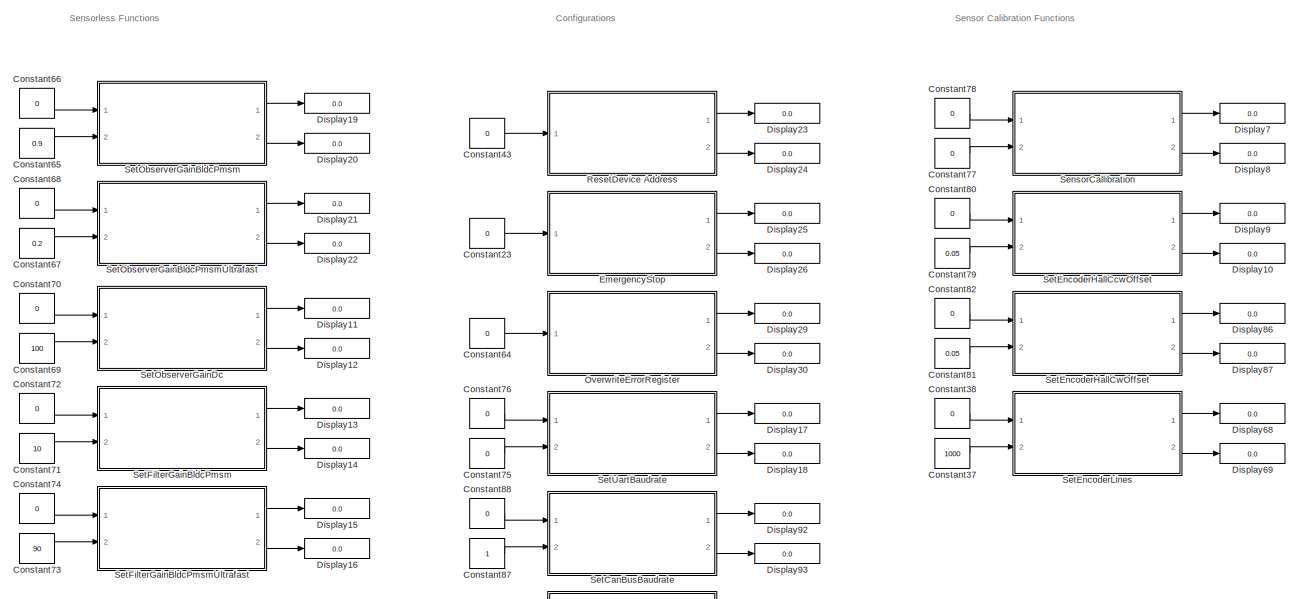
[diagram: SET_Fucntions - part 1/4, top center region]
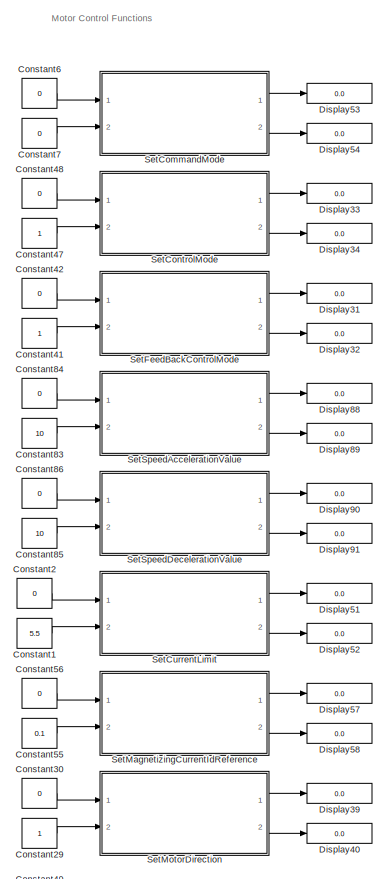
[diagram: SET_Fucntions - part 2/4, top right region]
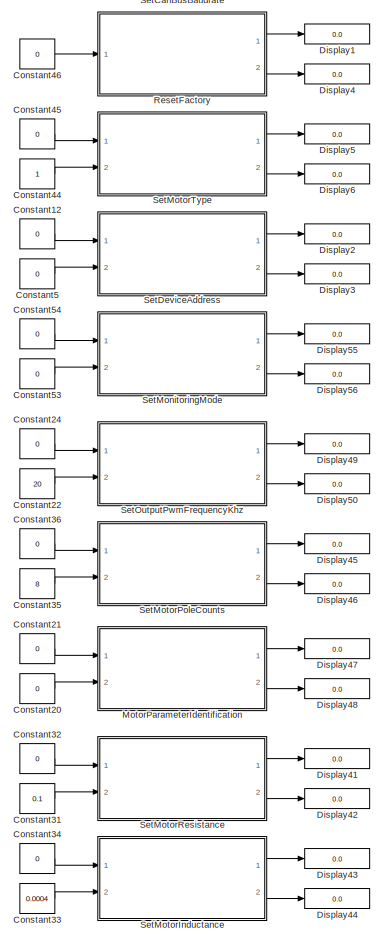
[diagram: SET_Fucntions - part 3/4, central region]
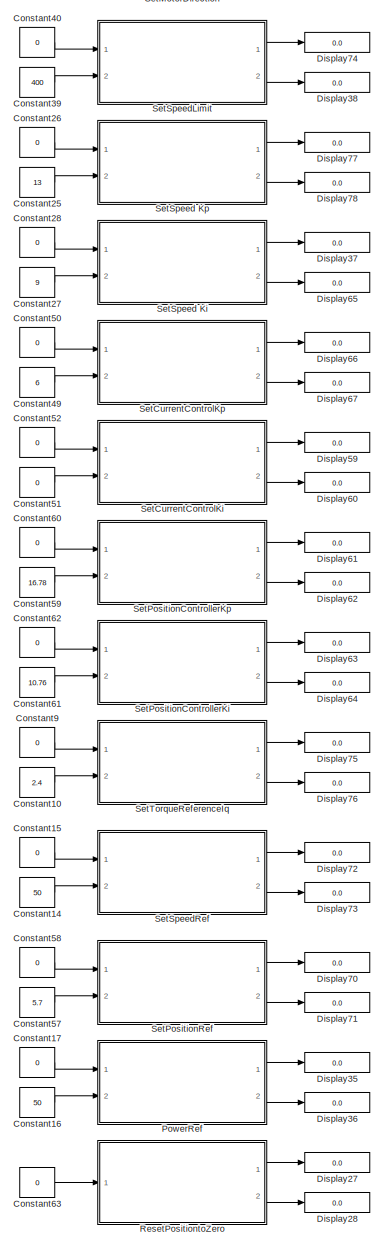
[diagram: SET_Fucntions - part 4/4, bottom right region]
BLOCK [SubSystem] SET_Fucntions
  Ports = []
  RequestExecContextInheritance = off
BLOCK [Constant] SET_Fucntions/Constant1
  OutDataTypeStr = single
  Value = 5.5
BLOCK [Constant] SET_Fucntions/Constant10
  OutDataTypeStr = single
  Value = 2.4
BLOCK [Constant] SET_Fucntions/Constant12
  OutDataTypeStr = uint8
  Value = 0
BLOCK [Constant] SET_Fucntions/Constant14
  OutDataTypeStr = uint32
  Value = 50
BLOCK [Constant] SET_Fucntions/Constant15
  OutDataTypeStr = uint8
  Value = 0
BLOCK [Constant] SET_Fucntions/Constant16
  OutDataTypeStr = single
  Value = 50
BLOCK [Constant] SET_Fucntions/Constant17
  OutDataTypeStr = uint8
  Value = 0
BLOCK [Constant] SET_Fucntions/Constant2
  OutDataTypeStr = uint8
  Value = 0
BLOCK [Constant] SET_Fucntions/Constant20
  OutDataTypeStr = boolean
  Value = 0
BLOCK [Constant] SET_Fucntions/Constant21
  OutDataTypeStr = uint8
  Value = 0
BLOCK [Constant] SET_Fucntions/Constant22
  OutDataTypeStr = uint32
  Value = 20
BLOCK [Constant] SET_Fucntions/Constant23
  OutDataTypeStr = uint8
  Value = 0
BLOCK [Constant] SET_Fucntions/Constant24
  OutDataTypeStr = uint8
  Value = 0
BLOCK [Constant] SET_Fucntions/Constant25
  OutDataTypeStr = single
  Value = 13
BLOCK [Constant] SET_Fucntions/Constant26
  OutDataTypeStr = uint8
  Value = 0
BLOCK [Constant] SET_Fucntions/Constant27
  OutDataTypeStr = single
  Value = 9
BLOCK [Constant] SET_Fucntions/Constant28
  OutDataTypeStr = uint8
  Value = 0
BLOCK [Constant] SET_Fucntions/Constant29
  OutDataTypeStr = boolean
BLOCK [Constant] SET_Fucntions/Constant30
  OutDataTypeStr = uint8
  Value = 0
BLOCK [Constant] SET_Fucntions/Constant31
  OutDataTypeStr = single
  Value = 0.1
BLOCK [Constant] SET_Fucntions/Constant32
  OutDataTypeStr = uint8
  Value = 0
BLOCK [Constant] SET_Fucntions/Constant33
  OutDataTypeStr = single
  Value = 0.0004
BLOCK [Constant] SET_Fucntions/Constant34
  OutDataTypeStr = uint8
  Value = 0
BLOCK [Constant] SET_Fucntions/Constant35
  OutDataTypeStr = uint32
  Value = 8
BLOCK [Constant] SET_Fucntions/Constant36
  OutDataTypeStr = uint8
  Value = 0
BLOCK [Constant] SET_Fucntions/Constant37
  OutDataTypeStr = uint32
  Value = 1000
BLOCK [Constant] SET_Fucntions/Constant38
  OutDataTypeStr = uint8
  Value = 0
BLOCK [Constant] SET_Fucntions/Constant39
  OutDataTypeStr = uint32
  Value = 400
BLOCK [Constant] SET_Fucntions/Constant40
  OutDataTypeStr = uint8
  Value = 0
BLOCK [Constant] SET_Fucntions/Constant41
  OutDataTypeStr = uint8
BLOCK [Constant] SET_Fucntions/Constant42
  OutDataTypeStr = uint8
  Value = 0
BLOCK [Constant] SET_Fucntions/Constant43
  OutDataTypeStr = uint8
  Value = 0
BLOCK [Constant] SET_Fucntions/Constant44
  OutDataTypeStr = uint8
BLOCK [Constant] SET_Fucntions/Constant45
  OutDataTypeStr = uint8
  Value = 0
BLOCK [Constant] SET_Fucntions/Constant46
  OutDataTypeStr = uint8
  Value = 0
BLOCK [Constant] SET_Fucntions/Constant47
  OutDataTypeStr = uint8
BLOCK [Constant] SET_Fucntions/Constant48
  OutDataTypeStr = uint8
  Value = 0
BLOCK [Constant] SET_Fucntions/Constant49
  OutDataTypeStr = single
  Value = 6
BLOCK [Constant] SET_Fucntions/Constant5
  OutDataTypeStr = uint8
  Value = 0
BLOCK [Constant] SET_Fucntions/Constant50
  OutDataTypeStr = uint8
  Value = 0
BLOCK [Constant] SET_Fucntions/Constant51
  OutDataTypeStr = single
  Value = 0
BLOCK [Constant] SET_Fucntions/Constant52
  OutDataTypeStr = uint8
  Value = 0
BLOCK [Constant] SET_Fucntions/Constant53
  OutDataTypeStr = boolean
  Value = 0
BLOCK [Constant] SET_Fucntions/Constant54
  OutDataTypeStr = uint8
  Value = 0
BLOCK [Constant] SET_Fucntions/Constant55
  OutDataTypeStr = single
  Value = 0.1
BLOCK [Constant] SET_Fucntions/Constant56
  OutDataTypeStr = uint8
  Value = 0
BLOCK [Constant] SET_Fucntions/Constant57
  OutDataTypeStr = uint32
  Value = 5.7
BLOCK [Constant] SET_Fucntions/Constant58
  OutDataTypeStr = uint8
  Value = 0
BLOCK [Constant] SET_Fucntions/Constant59
  OutDataTypeStr = single
  Value = 16.78
BLOCK [Constant] SET_Fucntions/Constant6
  OutDataTypeStr = uint8
  Value = 0
BLOCK [Constant] SET_Fucntions/Constant60
  OutDataTypeStr = uint8
  Value = 0
BLOCK [Constant] SET_Fucntions/Constant61
  OutDataTypeStr = single
  Value = 10.76
BLOCK [Constant] SET_Fucntions/Constant62
  OutDataTypeStr = uint8
  Value = 0
BLOCK [Constant] SET_Fucntions/Constant63
  OutDataTypeStr = uint8
  Value = 0
BLOCK [Constant] SET_Fucntions/Constant64
  OutDataTypeStr = uint8
  Value = 0
BLOCK [Constant] SET_Fucntions/Constant65
  OutDataTypeStr = single
  Value = 0.9
BLOCK [Constant] SET_Fucntions/Constant66
  OutDataTypeStr = uint8
  Value = 0
BLOCK [Constant] SET_Fucntions/Constant67
  OutDataTypeStr = single
  Value = 0.2
BLOCK [Constant] SET_Fucntions/Constant68
  OutDataTypeStr = uint8
  Value = 0
BLOCK [Constant] SET_Fucntions/Constant69
  OutDataTypeStr = single
  Value = 100
BLOCK [Constant] SET_Fucntions/Constant7
  OutDataTypeStr = boolean
  Value = 0
BLOCK [Constant] SET_Fucntions/Constant70
  OutDataTypeStr = uint8
  Value = 0
BLOCK [Constant] SET_Fucntions/Constant71
  OutDataTypeStr = single
  Value = 10
BLOCK [Constant] SET_Fucntions/Constant72
  OutDataTypeStr = uint8
  Value = 0
BLOCK [Constant] SET_Fucntions/Constant73
  OutDataTypeStr = single
  Value = 90
BLOCK [Constant] SET_Fucntions/Constant74
  OutDataTypeStr = uint8
  Value = 0
BLOCK [Constant] SET_Fucntions/Constant75
  OutDataTypeStr = boolean
  Value = 0
BLOCK [Constant] SET_Fucntions/Constant76
  OutDataTypeStr = uint8
  Value = 0
BLOCK [Constant] SET_Fucntions/Constant77
  OutDataTypeStr = uint8
  Value = 0
BLOCK [Constant] SET_Fucntions/Constant78
  OutDataTypeStr = uint8
  Value = 0
BLOCK [Constant] SET_Fucntions/Constant79
  OutDataTypeStr = single
  Value = 0.05
BLOCK [Constant] SET_Fucntions/Constant80
  OutDataTypeStr = uint8
  Value = 0
BLOCK [Constant] SET_Fucntions/Constant81
  OutDataTypeStr = single
  Value = 0.05
BLOCK [Constant] SET_Fucntions/Constant82
  OutDataTypeStr = uint8
  Value = 0
BLOCK [Constant] SET_Fucntions/Constant83
  OutDataTypeStr = single
  Value = 10
BLOCK [Constant] SET_Fucntions/Constant84
  OutDataTypeStr = uint8
  Value = 0
BLOCK [Constant] SET_Fucntions/Constant85
  OutDataTypeStr = single
  Value = 10
BLOCK [Constant] SET_Fucntions/Constant86
  OutDataTypeStr = uint8
  Value = 0
BLOCK [Constant] SET_Fucntions/Constant87
  OutDataTypeStr = uint8
BLOCK [Constant] SET_Fucntions/Constant88
  OutDataTypeStr = uint8
  Value = 0
BLOCK [Constant] SET_Fucntions/Constant9
  OutDataTypeStr = uint8
  Value = 0
BLOCK [Display] SET_Fucntions/Display1
  Decimation = 1
  Format = decimal (Stored Integer)
  Ports = [1]
BLOCK [Display] SET_Fucntions/Display10
  Decimation = 1
  Format = decimal (Stored Integer)
  Ports = [1]
BLOCK [Display] SET_Fucntions/Display11
  Decimation = 1
  Format = decimal (Stored Integer)
  Ports = [1]
BLOCK [Display] SET_Fucntions/Display12
  Decimation = 1
  Format = decimal (Stored Integer)
  Ports = [1]
BLOCK [Display] SET_Fucntions/Display13
  Decimation = 1
  Format = decimal (Stored Integer)
  Ports = [1]
BLOCK [Display] SET_Fucntions/Display14
  Decimation = 1
  Format = decimal (Stored Integer)
  Ports = [1]
BLOCK [Display] SET_Fucntions/Display15
  Decimation = 1
  Format = decimal (Stored Integer)
  Ports = [1]
BLOCK [Display] SET_Fucntions/Display16
  Decimation = 1
  Format = decimal (Stored Integer)
  Ports = [1]
BLOCK [Display] SET_Fucntions/Display17
  Decimation = 1
  Format = decimal (Stored Integer)
  Ports = [1]
BLOCK [Display] SET_Fucntions/Display18
  Decimation = 1
  Format = decimal (Stored Integer)
  Ports = [1]
BLOCK [Display] SET_Fucntions/Display19
  Decimation = 1
  Format = decimal (Stored Integer)
  Ports = [1]
BLOCK [Display] SET_Fucntions/Display2
  Decimation = 1
  Format = decimal (Stored Integer)
  Ports = [1]
BLOCK [Display] SET_Fucntions/Display20
  Decimation = 1
  Format = decimal (Stored Integer)
  Ports = [1]
BLOCK [Display] SET_Fucntions/Display21
  Decimation = 1
  Format = decimal (Stored Integer)
  Ports = [1]
BLOCK [Display] SET_Fucntions/Display22
  Decimation = 1
  Format = decimal (Stored Integer)
  Ports = [1]
BLOCK [Display] SET_Fucntions/Display23
  Decimation = 1
  Format = decimal (Stored Integer)
  Ports = [1]
BLOCK [Display] SET_Fucntions/Display24
  Decimation = 1
  Format = decimal (Stored Integer)
  Ports = [1]
BLOCK [Display] SET_Fucntions/Display25
  Decimation = 1
  Format = decimal (Stored Integer)
  Ports = [1]
BLOCK [Display] SET_Fucntions/Display26
  Decimation = 1
  Format = decimal (Stored Integer)
  Ports = [1]
BLOCK [Display] SET_Fucntions/Display27
  Decimation = 1
  Format = decimal (Stored Integer)
  Ports = [1]
BLOCK [Display] SET_Fucntions/Display28
  Decimation = 1
  Format = decimal (Stored Integer)
  Ports = [1]
BLOCK [Display] SET_Fucntions/Display29
  Decimation = 1
  Format = decimal (Stored Integer)
  Ports = [1]
BLOCK [Display] SET_Fucntions/Display3
  Decimation = 1
  Format = decimal (Stored Integer)
  Ports = [1]
BLOCK [Display] SET_Fucntions/Display30
  Decimation = 1
  Format = decimal (Stored Integer)
  Ports = [1]
BLOCK [Display] SET_Fucntions/Display31
  Decimation = 1
  Format = decimal (Stored Integer)
  Ports = [1]
BLOCK [Display] SET_Fucntions/Display32
  Decimation = 1
  Format = decimal (Stored Integer)
  Ports = [1]
BLOCK [Display] SET_Fucntions/Display33
  Decimation = 1
  Format = decimal (Stored Integer)
  Ports = [1]
BLOCK [Display] SET_Fucntions/Display34
  Decimation = 1
  Format = decimal (Stored Integer)
  Ports = [1]
BLOCK [Display] SET_Fucntions/Display35
  Decimation = 1
  Format = decimal (Stored Integer)
  Ports = [1]
BLOCK [Display] SET_Fucntions/Display36
  Decimation = 1
  Format = decimal (Stored Integer)
  Ports = [1]
BLOCK [Display] SET_Fucntions/Display37
  Decimation = 1
  Format = decimal (Stored Integer)
  Ports = [1]
BLOCK [Display] SET_Fucntions/Display38
  Decimation = 1
  Format = decimal (Stored Integer)
  Ports = [1]
BLOCK [Display] SET_Fucntions/Display39
  Decimation = 1
  Format = decimal (Stored Integer)
  Ports = [1]
BLOCK [Display] SET_Fucntions/Display4
  Decimation = 1
  Format = decimal (Stored Integer)
  Ports = [1]
BLOCK [Display] SET_Fucntions/Display40
  Decimation = 1
  Format = decimal (Stored Integer)
  Ports = [1]
BLOCK [Display] SET_Fucntions/Display41
  Decimation = 1
  Format = decimal (Stored Integer)
  Ports = [1]
BLOCK [Display] SET_Fucntions/Display42
  Decimation = 1
  Format = decimal (Stored Integer)
  Ports = [1]
BLOCK [Display] SET_Fucntions/Display43
  Decimation = 1
  Format = decimal (Stored Integer)
  Ports = [1]
BLOCK [Display] SET_Fucntions/Display44
  Decimation = 1
  Format = decimal (Stored Integer)
  Ports = [1]
BLOCK [Display] SET_Fucntions/Display45
  Decimation = 1
  Format = decimal (Stored Integer)
  Ports = [1]
BLOCK [Display] SET_Fucntions/Display46
  Decimation = 1
  Format = decimal (Stored Integer)
  Ports = [1]
BLOCK [Display] SET_Fucntions/Display47
  Decimation = 1
  Format = decimal (Stored Integer)
  Ports = [1]
BLOCK [Display] SET_Fucntions/Display48
  Decimation = 1
  Format = decimal (Stored Integer)
  Ports = [1]
BLOCK [Display] SET_Fucntions/Display49
  Decimation = 1
  Format = decimal (Stored Integer)
  Ports = [1]
BLOCK [Display] SET_Fucntions/Display5
  Decimation = 1
  Format = decimal (Stored Integer)
  Ports = [1]
BLOCK [Display] SET_Fucntions/Display50
  Decimation = 1
  Format = decimal (Stored Integer)
  Ports = [1]
BLOCK [Display] SET_Fucntions/Display51
  Decimation = 1
  Format = decimal (Stored Integer)
  Ports = [1]
BLOCK [Display] SET_Fucntions/Display52
  Decimation = 1
  Format = decimal (Stored Integer)
  Ports = [1]
BLOCK [Display] SET_Fucntions/Display53
  Decimation = 1
  Format = decimal (Stored Integer)
  Ports = [1]
BLOCK [Display] SET_Fucntions/Display54
  Decimation = 1
  Format = decimal (Stored Integer)
  Ports = [1]
BLOCK [Display] SET_Fucntions/Display55
  Decimation = 1
  Format = decimal (Stored Integer)
  Ports = [1]
BLOCK [Display] SET_Fucntions/Display56
  Decimation = 1
  Format = decimal (Stored Integer)
  Ports = [1]
BLOCK [Display] SET_Fucntions/Display57
  Decimation = 1
  Format = decimal (Stored Integer)
  Ports = [1]
BLOCK [Display] SET_Fucntions/Display58
  Decimation = 1
  Format = decimal (Stored Integer)
  Ports = [1]
BLOCK [Display] SET_Fucntions/Display59
  Decimation = 1
  Format = decimal (Stored Integer)
  Ports = [1]
BLOCK [Display] SET_Fucntions/Display6
  Decimation = 1
  Format = decimal (Stored Integer)
  Ports = [1]
BLOCK [Display] SET_Fucntions/Display60
  Decimation = 1
  Format = decimal (Stored Integer)
  Ports = [1]
BLOCK [Display] SET_Fucntions/Display61
  Decimation = 1
  Format = decimal (Stored Integer)
  Ports = [1]
BLOCK [Display] SET_Fucntions/Display62
  Decimation = 1
  Format = decimal (Stored Integer)
  Ports = [1]
BLOCK [Display] SET_Fucntions/Display63
  Decimation = 1
  Format = decimal (Stored Integer)
  Ports = [1]
BLOCK [Display] SET_Fucntions/Display64
  Decimation = 1
  Format = decimal (Stored Integer)
  Ports = [1]
BLOCK [Display] SET_Fucntions/Display65
  Decimation = 1
  Format = decimal (Stored Integer)
  Ports = [1]
BLOCK [Display] SET_Fucntions/Display66
  Decimation = 1
  Format = decimal (Stored Integer)
  Ports = [1]
BLOCK [Display] SET_Fucntions/Display67
  Decimation = 1
  Format = decimal (Stored Integer)
  Ports = [1]
BLOCK [Display] SET_Fucntions/Display68
  Decimation = 1
  Format = decimal (Stored Integer)
  Ports = [1]
BLOCK [Display] SET_Fucntions/Display69
  Decimation = 1
  Format = decimal (Stored Integer)
  Ports = [1]
BLOCK [Display] SET_Fucntions/Display7
  Decimation = 1
  Format = decimal (Stored Integer)
  Ports = [1]
BLOCK [Display] SET_Fucntions/Display70
  Decimation = 1
  Format = decimal (Stored Integer)
  Ports = [1]
BLOCK [Display] SET_Fucntions/Display71
  Decimation = 1
  Format = decimal (Stored Integer)
  Ports = [1]
BLOCK [Display] SET_Fucntions/Display72
  Decimation = 1
  Format = decimal (Stored Integer)
  Ports = [1]
BLOCK [Display] SET_Fucntions/Display73
  Decimation = 1
  Format = decimal (Stored Integer)
  Ports = [1]
BLOCK [Display] SET_Fucntions/Display74
  Decimation = 1
  Format = decimal (Stored Integer)
  Ports = [1]
BLOCK [Display] SET_Fucntions/Display75
  Decimation = 1
  Format = decimal (Stored Integer)
  Ports = [1]
BLOCK [Display] SET_Fucntions/Display76
  Decimation = 1
  Format = decimal (Stored Integer)
  Ports = [1]
BLOCK [Display] SET_Fucntions/Display77
  Decimation = 1
  Format = decimal (Stored Integer)
  Ports = [1]
BLOCK [Display] SET_Fucntions/Display78
  Decimation = 1
  Format = decimal (Stored Integer)
  Ports = [1]
BLOCK [Display] SET_Fucntions/Display8
  Decimation = 1
  Format = decimal (Stored Integer)
  Ports = [1]
BLOCK [Display] SET_Fucntions/Display86
  Decimation = 1
  Format = decimal (Stored Integer)
  Ports = [1]
BLOCK [Display] SET_Fucntions/Display87
  Decimation = 1
  Format = decimal (Stored Integer)
  Ports = [1]
BLOCK [Display] SET_Fucntions/Display88
  Decimation = 1
  Format = decimal (Stored Integer)
  Ports = [1]
BLOCK [Display] SET_Fucntions/Display89
  Decimation = 1
  Format = decimal (Stored Integer)
  Ports = [1]
BLOCK [Display] SET_Fucntions/Display9
  Decimation = 1
  Format = decimal (Stored Integer)
  Ports = [1]
BLOCK [Display] SET_Fucntions/Display90
  Decimation = 1
  Format = decimal (Stored Integer)
  Ports = [1]
BLOCK [Display] SET_Fucntions/Display91
  Decimation = 1
  Format = decimal (Stored Integer)
  Ports = [1]
BLOCK [Display] SET_Fucntions/Display92
  Decimation = 1
  Format = decimal (Stored Integer)
  Ports = [1]
BLOCK [Display] SET_Fucntions/Display93
  Decimation = 1
  Format = decimal (Stored Integer)
  Ports = [1]
BLOCK [SubSystem] SET_Fucntions/EmergencyStop
  Ports = [1, 2]
  RequestExecContextInheritance = off
BLOCK [Inport] SET_Fucntions/EmergencyStop/Address
BLOCK [Display] SET_Fucntions/EmergencyStop/Display22
  Decimation = 1
  Format = decimal (Stored Integer)
  Ports = [1]
BLOCK [Display] SET_Fucntions/EmergencyStop/Display23
  Decimation = 1
  Format = decimal (Stored Integer)
  Ports = [1]
BLOCK [Outport] SET_Fucntions/EmergencyStop/Error
  Port = 2
BLOCK [Outport] SET_Fucntions/EmergencyStop/Result
BLOCK [S-Function] SET_Fucntions/EmergencyStop/S-Function Builder11
  CopyFcn = set_param(gcbh,'LinkStatus','none')
  EnableBusSupport = off
  FunctionName = EmergencyStop
  OpenFcn = sfunctionwizard(gcbh)
  Ports = [1, 2]
  Priority = 2
  SFcnIsStateOwnerBlock = off
  SFunctionDeploymentMode = off
  SFunctionModules = EmergencyStop_wrapper
BLOCK [SubSystem] SET_Fucntions/MotorParameterIdentification
  Ports = [2, 2]
  RequestExecContextInheritance = off
BLOCK [Inport] SET_Fucntions/MotorParameterIdentification/Address
BLOCK [Display] SET_Fucntions/MotorParameterIdentification/Display20
  Decimation = 1
  Format = decimal (Stored Integer)
  Ports = [1]
BLOCK [Display] SET_Fucntions/MotorParameterIdentification/Display21
  Decimation = 1
  Format = decimal (Stored Integer)
  Ports = [1]
BLOCK [Outport] SET_Fucntions/MotorParameterIdentification/Error
  Port = 2
BLOCK [Outport] SET_Fucntions/MotorParameterIdentification/Result
BLOCK [S-Function] SET_Fucntions/MotorParameterIdentification/S-Function Builder10
  CopyFcn = set_param(gcbh,'LinkStatus','none')
  EnableBusSupport = off
  FunctionName = MotorParametersIdentification
  OpenFcn = sfunctionwizard(gcbh)
  Ports = [2, 2]
  Priority = 2
  SFcnIsStateOwnerBlock = off
  SFunctionDeploymentMode = off
  SFunctionModules = MotorParametersIdentification_wrapper
BLOCK [Inport] SET_Fucntions/MotorParameterIdentification/Value
  Port = 2
BLOCK [SubSystem] SET_Fucntions/OverwriteErrorRegister
  Ports = [1, 2]
  RequestExecContextInheritance = off
BLOCK [Inport] SET_Fucntions/OverwriteErrorRegister/Address
BLOCK [Display] SET_Fucntions/OverwriteErrorRegister/Display68
  Decimation = 1
  Format = decimal (Stored Integer)
  Ports = [1]
BLOCK [Display] SET_Fucntions/OverwriteErrorRegister/Display69
  Decimation = 1
  Format = decimal (Stored Integer)
  Ports = [1]
BLOCK [Outport] SET_Fucntions/OverwriteErrorRegister/Error
  Port = 2
BLOCK [Outport] SET_Fucntions/OverwriteErrorRegister/Result
BLOCK [S-Function] SET_Fucntions/OverwriteErrorRegister/S-Function Builder34
  CopyFcn = set_param(gcbh,'LinkStatus','none')
  EnableBusSupport = off
  FunctionName = OverwriteErrorRegister
  OpenFcn = sfunctionwizard(gcbh)
  Ports = [1, 2]
  Priority = 2
  SFcnIsStateOwnerBlock = off
  SFunctionDeploymentMode = off
  SFunctionModules = OverwriteErrorRegister_wrapper
BLOCK [SubSystem] SET_Fucntions/PowerRef
  Ports = [2, 2]
  RequestExecContextInheritance = off
BLOCK [Inport] SET_Fucntions/PowerRef/Address
BLOCK [Display] SET_Fucntions/PowerRef/Display18
  Decimation = 1
  Format = decimal (Stored Integer)
  Ports = [1]
BLOCK [Display] SET_Fucntions/PowerRef/Display19
  Decimation = 1
  Format = decimal (Stored Integer)
  Ports = [1]
BLOCK [Outport] SET_Fucntions/PowerRef/Error
  Port = 2
BLOCK [Outport] SET_Fucntions/PowerRef/Result
BLOCK [S-Function] SET_Fucntions/PowerRef/S-Function Builder9
  CopyFcn = set_param(gcbh,'LinkStatus','none')
  EnableBusSupport = off
  FunctionName = SetPowerReference
  OpenFcn = sfunctionwizard(gcbh)
  Ports = [2, 2]
  Priority = 2
  SFcnIsStateOwnerBlock = off
  SFunctionDeploymentMode = off
  SFunctionModules = SetPowerReference_wrapper
BLOCK [Inport] SET_Fucntions/PowerRef/Value
  Port = 2
BLOCK [SubSystem] SET_Fucntions/ResetDevice Address
  Ports = [1, 2]
  RequestExecContextInheritance = off
BLOCK [Inport] SET_Fucntions/ResetDevice Address/Address
BLOCK [Display] SET_Fucntions/ResetDevice Address/Display44
  Decimation = 1
  Format = decimal (Stored Integer)
  Ports = [1]
BLOCK [Display] SET_Fucntions/ResetDevice Address/Display45
  Decimation = 1
  Format = decimal (Stored Integer)
  Ports = [1]
BLOCK [Outport] SET_Fucntions/ResetDevice Address/Error
  Port = 2
BLOCK [Outport] SET_Fucntions/ResetDevice Address/Result
BLOCK [S-Function] SET_Fucntions/ResetDevice Address/S-Function Builder22
  CopyFcn = set_param(gcbh,'LinkStatus','none')
  EnableBusSupport = off
  FunctionName = ResetDeviceAddress
  OpenFcn = sfunctionwizard(gcbh)
  Ports = [1, 2]
  Priority = 2
  SFcnIsStateOwnerBlock = off
  SFunctionDeploymentMode = off
  SFunctionModules = ResetDeviceAddress_wrapper
BLOCK [SubSystem] SET_Fucntions/ResetFactory
  Ports = [1, 2]
  RequestExecContextInheritance = off
BLOCK [Inport] SET_Fucntions/ResetFactory/Address
BLOCK [Display] SET_Fucntions/ResetFactory/Display48
  Decimation = 1
  Format = decimal (Stored Integer)
  Ports = [1]
BLOCK [Display] SET_Fucntions/ResetFactory/Display49
  Decimation = 1
  Format = decimal (Stored Integer)
  Ports = [1]
BLOCK [Outport] SET_Fucntions/ResetFactory/Error
  Port = 2
BLOCK [Outport] SET_Fucntions/ResetFactory/Result
BLOCK [S-Function] SET_Fucntions/ResetFactory/S-Function Builder24
  CopyFcn = set_param(gcbh,'LinkStatus','none')
  EnableBusSupport = off
  FunctionName = ResetFactory
  OpenFcn = sfunctionwizard(gcbh)
  Ports = [1, 2]
  Priority = 2
  SFcnIsStateOwnerBlock = off
  SFunctionDeploymentMode = off
  SFunctionModules = ResetFactory_wrapper
BLOCK [SubSystem] SET_Fucntions/ResetPositiontoZero
  Ports = [1, 2]
  RequestExecContextInheritance = off
BLOCK [Inport] SET_Fucntions/ResetPositiontoZero/Address
BLOCK [Display] SET_Fucntions/ResetPositiontoZero/Display66
  Decimation = 1
  Format = decimal (Stored Integer)
  Ports = [1]
BLOCK [Display] SET_Fucntions/ResetPositiontoZero/Display67
  Decimation = 1
  Format = decimal (Stored Integer)
  Ports = [1]
BLOCK [Outport] SET_Fucntions/ResetPositiontoZero/Error
  Port = 2
BLOCK [Outport] SET_Fucntions/ResetPositiontoZero/Result
BLOCK [S-Function] SET_Fucntions/ResetPositiontoZero/S-Function Builder33
  CopyFcn = set_param(gcbh,'LinkStatus','none')
  EnableBusSupport = off
  FunctionName = ResetPositionToZero
  OpenFcn = sfunctionwizard(gcbh)
  Ports = [1, 2]
  Priority = 2
  SFcnIsStateOwnerBlock = off
  SFunctionDeploymentMode = off
  SFunctionModules = ResetPositionToZero_wrapper
BLOCK [SubSystem] SET_Fucntions/SensorCallibration
  Ports = [2, 2]
  RequestExecContextInheritance = off
BLOCK [Inport] SET_Fucntions/SensorCallibration/Address
BLOCK [Display] SET_Fucntions/SensorCallibration/Display82
  Decimation = 1
  Format = decimal (Stored Integer)
  Ports = [1]
BLOCK [Display] SET_Fucntions/SensorCallibration/Display83
  Decimation = 1
  Format = decimal (Stored Integer)
  Ports = [1]
BLOCK [Outport] SET_Fucntions/SensorCallibration/Error
  Port = 2
BLOCK [Outport] SET_Fucntions/SensorCallibration/Result
BLOCK [S-Function] SET_Fucntions/SensorCallibration/S-Function Builder41
  CopyFcn = set_param(gcbh,'LinkStatus','none')
  EnableBusSupport = off
  FunctionName = SensorCalibration
  OpenFcn = sfunctionwizard(gcbh)
  Ports = [2, 2]
  Priority = 2
  SFcnIsStateOwnerBlock = off
  SFunctionDeploymentMode = off
  SFunctionModules = SensorCalibration_wrapper
BLOCK [Inport] SET_Fucntions/SensorCallibration/Value
  Port = 2
BLOCK [SubSystem] SET_Fucntions/SetCanBusBaudrate
  Ports = [2, 2]
  RequestExecContextInheritance = off
BLOCK [Inport] SET_Fucntions/SetCanBusBaudrate/Address
BLOCK [Outport] SET_Fucntions/SetCanBusBaudrate/Error
  Port = 2
BLOCK [Outport] SET_Fucntions/SetCanBusBaudrate/Result
BLOCK [S-Function] SET_Fucntions/SetCanBusBaudrate/S-Function Builder46
  CopyFcn = set_param(gcbh,'LinkStatus','none')
  EnableBusSupport = off
  FunctionName = SetCanbusBoudrate
  OpenFcn = sfunctionwizard(gcbh)
  Ports = [2, 2]
  Priority = 2
  SFcnIsStateOwnerBlock = off
  SFunctionDeploymentMode = off
  SFunctionModules = SetCanbusBoudrate_wrapper
BLOCK [Inport] SET_Fucntions/SetCanBusBaudrate/Value
  Port = 2
BLOCK [SubSystem] SET_Fucntions/SetCommandMode
  Ports = [2, 2]
  RequestExecContextInheritance = off
BLOCK [Inport] SET_Fucntions/SetCommandMode/Address
  LockScale = on
  OutDataTypeStr = uint8
BLOCK [Display] SET_Fucntions/SetCommandMode/Display4
  Decimation = 1
  Format = decimal (Stored Integer)
  Ports = [1]
BLOCK [Display] SET_Fucntions/SetCommandMode/Display6
  Decimation = 1
  Format = decimal (Stored Integer)
  Ports = [1]
BLOCK [Outport] SET_Fucntions/SetCommandMode/Error
  OutDataTypeStr = boolean
  Port = 2
BLOCK [Outport] SET_Fucntions/SetCommandMode/Result
  OutDataTypeStr = boolean
BLOCK [S-Function] SET_Fucntions/SetCommandMode/S-Function Builder2
  CopyFcn = set_param(gcbh,'LinkStatus','none')
  EnableBusSupport = off
  FunctionName = SetCommandMode
  OpenFcn = sfunctionwizard(gcbh)
  Ports = [2, 2]
  Priority = 2
  SFcnIsStateOwnerBlock = off
  SFunctionDeploymentMode = off
  SFunctionModules = SetCommandMode_wrapper
BLOCK [Inport] SET_Fucntions/SetCommandMode/Value
  LockScale = on
  OutDataTypeStr = boolean
  Port = 2
BLOCK [SubSystem] SET_Fucntions/SetControlMode
  Ports = [2, 2]
  RequestExecContextInheritance = off
BLOCK [Inport] SET_Fucntions/SetControlMode/Address
BLOCK [Display] SET_Fucntions/SetControlMode/Display50
  Decimation = 1
  Format = decimal (Stored Integer)
  Ports = [1]
BLOCK [Display] SET_Fucntions/SetControlMode/Display51
  Decimation = 1
  Format = decimal (Stored Integer)
  Ports = [1]
BLOCK [Outport] SET_Fucntions/SetControlMode/Error
  Port = 2
BLOCK [Outport] SET_Fucntions/SetControlMode/Result
BLOCK [S-Function] SET_Fucntions/SetControlMode/S-Function Builder25
  CopyFcn = set_param(gcbh,'LinkStatus','none')
  EnableBusSupport = off
  FunctionName = SetControlMode
  OpenFcn = sfunctionwizard(gcbh)
  Ports = [2, 2]
  Priority = 2
  SFcnIsStateOwnerBlock = off
  SFunctionDeploymentMode = off
  SFunctionModules = SetControlMode_wrapper
BLOCK [Inport] SET_Fucntions/SetControlMode/Value
  Port = 2
BLOCK [SubSystem] SET_Fucntions/SetCurrentControlKi
  Ports = [2, 2]
  RequestExecContextInheritance = off
BLOCK [Inport] SET_Fucntions/SetCurrentControlKi/Address
BLOCK [Display] SET_Fucntions/SetCurrentControlKi/Display54
  Decimation = 1
  Format = decimal (Stored Integer)
  Ports = [1]
BLOCK [Display] SET_Fucntions/SetCurrentControlKi/Display55
  Decimation = 1
  Format = decimal (Stored Integer)
  Ports = [1]
BLOCK [Outport] SET_Fucntions/SetCurrentControlKi/Error
  Port = 2
BLOCK [Outport] SET_Fucntions/SetCurrentControlKi/Result
BLOCK [S-Function] SET_Fucntions/SetCurrentControlKi/S-Function Builder27
  CopyFcn = set_param(gcbh,'LinkStatus','none')
  EnableBusSupport = off
  FunctionName = SetCurrentControllerKi
  OpenFcn = sfunctionwizard(gcbh)
  Ports = [2, 2]
  Priority = 2
  SFcnIsStateOwnerBlock = off
  SFunctionDeploymentMode = off
  SFunctionModules = SetCurrentControllerKi_wrapper
BLOCK [Inport] SET_Fucntions/SetCurrentControlKi/Value
  Port = 2
BLOCK [SubSystem] SET_Fucntions/SetCurrentControlKp
  Ports = [2, 2]
  RequestExecContextInheritance = off
BLOCK [Inport] SET_Fucntions/SetCurrentControlKp/Address
BLOCK [Display] SET_Fucntions/SetCurrentControlKp/Display52
  Decimation = 1
  Format = decimal (Stored Integer)
  Ports = [1]
BLOCK [Display] SET_Fucntions/SetCurrentControlKp/Display53
  Decimation = 1
  Format = decimal (Stored Integer)
  Ports = [1]
BLOCK [Outport] SET_Fucntions/SetCurrentControlKp/Error
  Port = 2
BLOCK [Outport] SET_Fucntions/SetCurrentControlKp/Result
BLOCK [S-Function] SET_Fucntions/SetCurrentControlKp/S-Function Builder26
  CopyFcn = set_param(gcbh,'LinkStatus','none')
  EnableBusSupport = off
  FunctionName = SetCurrentControllerKp
  OpenFcn = sfunctionwizard(gcbh)
  Ports = [2, 2]
  Priority = 2
  SFcnIsStateOwnerBlock = off
  SFunctionDeploymentMode = off
  SFunctionModules = SetCurrentControllerKp_wrapper
BLOCK [Inport] SET_Fucntions/SetCurrentControlKp/Value
  Port = 2
BLOCK [SubSystem] SET_Fucntions/SetCurrentLimit
  Ports = [2, 2]
  RequestExecContextInheritance = off
BLOCK [Inport] SET_Fucntions/SetCurrentLimit/Address
  IconDisplay = Signal name
  LockScale = on
  Tag = Address
BLOCK [Display] SET_Fucntions/SetCurrentLimit/Display1
  Decimation = 1
  Format = decimal (Stored Integer)
  Ports = [1]
BLOCK [Display] SET_Fucntions/SetCurrentLimit/Display10
  Decimation = 1
  Format = decimal (Stored Integer)
  Ports = [1]
BLOCK [Outport] SET_Fucntions/SetCurrentLimit/Error
  IconDisplay = Signal name
  OutDataTypeStr = int32
  Port = 2
BLOCK [Outport] SET_Fucntions/SetCurrentLimit/Result
  IconDisplay = Signal name
  OutDataTypeStr = boolean
BLOCK [S-Function] SET_Fucntions/SetCurrentLimit/S-Function Builder
  CopyFcn = set_param(gcbh,'LinkStatus','none')
  EnableBusSupport = off
  FunctionName = SetCurrentLimit
  OpenFcn = sfunctionwizard(gcbh)
  Ports = [2, 2]
  Priority = 2
  SFcnIsStateOwnerBlock = off
  SFunctionDeploymentMode = off
  SFunctionModules = SetCurrentLimit_wrapper
BLOCK [Inport] SET_Fucntions/SetCurrentLimit/Value
  IconDisplay = Port number and signal name
  LockScale = on
  Port = 2
BLOCK [SubSystem] SET_Fucntions/SetDeviceAddress
  Ports = [2, 2]
  RequestExecContextInheritance = off
BLOCK [Inport] SET_Fucntions/SetDeviceAddress/Address
BLOCK [Outport] SET_Fucntions/SetDeviceAddress/Error
  Port = 2
BLOCK [Outport] SET_Fucntions/SetDeviceAddress/Result
BLOCK [S-Function] SET_Fucntions/SetDeviceAddress/S-Function Builder1
  CopyFcn = set_param(gcbh,'LinkStatus','none')
  EnableBusSupport = off
  FunctionName = SetDeviceAddress
  OpenFcn = sfunctionwizard(gcbh)
  Ports = [2, 2]
  Priority = 2
  SFcnIsStateOwnerBlock = off
  SFunctionDeploymentMode = off
  SFunctionModules = SetDeviceAddress_wrapper
BLOCK [Inport] SET_Fucntions/SetDeviceAddress/Value
  Port = 2
BLOCK [SubSystem] SET_Fucntions/SetEncoderHallCcwOffset
  Ports = [2, 2]
  RequestExecContextInheritance = off
BLOCK [Inport] SET_Fucntions/SetEncoderHallCcwOffset/Address
BLOCK [Display] SET_Fucntions/SetEncoderHallCcwOffset/Display84
  Decimation = 1
  Format = decimal (Stored Integer)
  Ports = [1]
BLOCK [Display] SET_Fucntions/SetEncoderHallCcwOffset/Display85
  Decimation = 1
  Format = decimal (Stored Integer)
  Ports = [1]
BLOCK [Outport] SET_Fucntions/SetEncoderHallCcwOffset/Error
  Port = 2
BLOCK [Outport] SET_Fucntions/SetEncoderHallCcwOffset/Result
BLOCK [S-Function] SET_Fucntions/SetEncoderHallCcwOffset/S-Function Builder42
  CopyFcn = set_param(gcbh,'LinkStatus','none')
  EnableBusSupport = off
  FunctionName = SetEncoderHallCcwOffset
  OpenFcn = sfunctionwizard(gcbh)
  Ports = [2, 2]
  Priority = 2
  SFcnIsStateOwnerBlock = off
  SFunctionDeploymentMode = off
  SFunctionModules = SetEncoderHallCcwOffset_wrapper
BLOCK [Inport] SET_Fucntions/SetEncoderHallCcwOffset/Value
  Port = 2
BLOCK [SubSystem] SET_Fucntions/SetEncoderHallCwOffset
  Ports = [2, 2]
  RequestExecContextInheritance = off
BLOCK [Inport] SET_Fucntions/SetEncoderHallCwOffset/Address
BLOCK [Outport] SET_Fucntions/SetEncoderHallCwOffset/Error
  Port = 2
BLOCK [Outport] SET_Fucntions/SetEncoderHallCwOffset/Result
BLOCK [S-Function] SET_Fucntions/SetEncoderHallCwOffset/S-Function Builder43
  CopyFcn = set_param(gcbh,'LinkStatus','none')
  EnableBusSupport = off
  FunctionName = SetEncoderHallCwOffset
  OpenFcn = sfunctionwizard(gcbh)
  Ports = [2, 2]
  Priority = 2
  SFcnIsStateOwnerBlock = off
  SFunctionDeploymentMode = off
  SFunctionModules = SetEncoderHallCwOffset_wrapper
BLOCK [Inport] SET_Fucntions/SetEncoderHallCwOffset/Value
  Port = 2
BLOCK [SubSystem] SET_Fucntions/SetEncoderLines
  Ports = [2, 2]
  RequestExecContextInheritance = off
BLOCK [Inport] SET_Fucntions/SetEncoderLines/Address
BLOCK [Display] SET_Fucntions/SetEncoderLines/Display38
  Decimation = 1
  Format = decimal (Stored Integer)
  Ports = [1]
BLOCK [Display] SET_Fucntions/SetEncoderLines/Display39
  Decimation = 1
  Format = decimal (Stored Integer)
  Ports = [1]
BLOCK [Outport] SET_Fucntions/SetEncoderLines/Error
  Port = 2
BLOCK [Outport] SET_Fucntions/SetEncoderLines/Result
BLOCK [S-Function] SET_Fucntions/SetEncoderLines/S-Function Builder19
  CopyFcn = set_param(gcbh,'LinkStatus','none')
  EnableBusSupport = off
  FunctionName = SetIncrementalEncoderLines
  OpenFcn = sfunctionwizard(gcbh)
  Ports = [2, 2]
  Priority = 2
  SFcnIsStateOwnerBlock = off
  SFunctionDeploymentMode = off
  SFunctionModules = SetIncrementalEncoderLines_wrapper
BLOCK [Inport] SET_Fucntions/SetEncoderLines/Value
  Port = 2
BLOCK [SubSystem] SET_Fucntions/SetFeedBackControlMode
  Ports = [2, 2]
  RequestExecContextInheritance = off
BLOCK [Inport] SET_Fucntions/SetFeedBackControlMode/Address
BLOCK [Display] SET_Fucntions/SetFeedBackControlMode/Display42
  Decimation = 1
  Format = decimal (Stored Integer)
  Ports = [1]
BLOCK [Display] SET_Fucntions/SetFeedBackControlMode/Display43
  Decimation = 1
  Format = decimal (Stored Integer)
  Ports = [1]
BLOCK [Outport] SET_Fucntions/SetFeedBackControlMode/Error
  Port = 2
BLOCK [Outport] SET_Fucntions/SetFeedBackControlMode/Result
BLOCK [S-Function] SET_Fucntions/SetFeedBackControlMode/S-Function Builder21
  CopyFcn = set_param(gcbh,'LinkStatus','none')
  EnableBusSupport = off
  FunctionName = SetFeedbackControlMode
  OpenFcn = sfunctionwizard(gcbh)
  Ports = [2, 2]
  Priority = 2
  SFcnIsStateOwnerBlock = off
  SFunctionDeploymentMode = off
  SFunctionModules = SetFeedbackControlMode_wrapper
BLOCK [Inport] SET_Fucntions/SetFeedBackControlMode/Value
  Port = 2
BLOCK [SubSystem] SET_Fucntions/SetFilterGainBldcPmsm
  Ports = [2, 2]
  RequestExecContextInheritance = off
BLOCK [Inport] SET_Fucntions/SetFilterGainBldcPmsm/Address
BLOCK [Display] SET_Fucntions/SetFilterGainBldcPmsm/Display76
  Decimation = 1
  Format = decimal (Stored Integer)
  Ports = [1]
BLOCK [Display] SET_Fucntions/SetFilterGainBldcPmsm/Display77
  Decimation = 1
  Format = decimal (Stored Integer)
  Ports = [1]
BLOCK [Outport] SET_Fucntions/SetFilterGainBldcPmsm/Error
  Port = 2
BLOCK [Outport] SET_Fucntions/SetFilterGainBldcPmsm/Result
BLOCK [S-Function] SET_Fucntions/SetFilterGainBldcPmsm/S-Function Builder38
  CopyFcn = set_param(gcbh,'LinkStatus','none')
  EnableBusSupport = off
  FunctionName = SetFilterGainBldcPmsm
  OpenFcn = sfunctionwizard(gcbh)
  Ports = [2, 2]
  Priority = 2
  SFcnIsStateOwnerBlock = off
  SFunctionDeploymentMode = off
  SFunctionModules = SetFilterGainBldcPmsm_wrapper
BLOCK [Inport] SET_Fucntions/SetFilterGainBldcPmsm/Value
  Port = 2
BLOCK [SubSystem] SET_Fucntions/SetFilterGainBldcPmsmUltrafast
  Ports = [2, 2]
  RequestExecContextInheritance = off
BLOCK [Inport] SET_Fucntions/SetFilterGainBldcPmsmUltrafast/Address
BLOCK [Display] SET_Fucntions/SetFilterGainBldcPmsmUltrafast/Display78
  Decimation = 1
  Format = decimal (Stored Integer)
  Ports = [1]
BLOCK [Display] SET_Fucntions/SetFilterGainBldcPmsmUltrafast/Display79
  Decimation = 1
  Format = decimal (Stored Integer)
  Ports = [1]
BLOCK [Outport] SET_Fucntions/SetFilterGainBldcPmsmUltrafast/Error
  Port = 2
BLOCK [Outport] SET_Fucntions/SetFilterGainBldcPmsmUltrafast/Result
BLOCK [S-Function] SET_Fucntions/SetFilterGainBldcPmsmUltrafast/S-Function Builder39
  CopyFcn = set_param(gcbh,'LinkStatus','none')
  EnableBusSupport = off
  FunctionName = SetFilterGainBldcPmsmUltrafast
  OpenFcn = sfunctionwizard(gcbh)
  Ports = [2, 2]
  Priority = 2
  SFcnIsStateOwnerBlock = off
  SFunctionDeploymentMode = off
  SFunctionModules = SetFilterGainBldcPmsmUltrafast_wrapper
BLOCK [Inport] SET_Fucntions/SetFilterGainBldcPmsmUltrafast/Value
  Port = 2
BLOCK [SubSystem] SET_Fucntions/SetMagnetizingCurrentIdReference
  Ports = [2, 2]
  RequestExecContextInheritance = off
BLOCK [Inport] SET_Fucntions/SetMagnetizingCurrentIdReference/Address
BLOCK [Display] SET_Fucntions/SetMagnetizingCurrentIdReference/Display58
  Decimation = 1
  Format = decimal (Stored Integer)
  Ports = [1]
BLOCK [Display] SET_Fucntions/SetMagnetizingCurrentIdReference/Display59
  Decimation = 1
  Format = decimal (Stored Integer)
  Ports = [1]
BLOCK [Outport] SET_Fucntions/SetMagnetizingCurrentIdReference/Error
  Port = 2
BLOCK [Outport] SET_Fucntions/SetMagnetizingCurrentIdReference/Result
BLOCK [S-Function] SET_Fucntions/SetMagnetizingCurrentIdReference/S-Function Builder29
  CopyFcn = set_param(gcbh,'LinkStatus','none')
  EnableBusSupport = off
  FunctionName = SetMagnetizingCurrentIdReference
  OpenFcn = sfunctionwizard(gcbh)
  Ports = [2, 2]
  Priority = 2
  SFcnIsStateOwnerBlock = off
  SFunctionDeploymentMode = off
  SFunctionModules = SetMagnetizingCurrentIdReference_wrapper
BLOCK [Inport] SET_Fucntions/SetMagnetizingCurrentIdReference/Value
  Port = 2
BLOCK [SubSystem] SET_Fucntions/SetMonitoringMode
  Ports = [2, 2]
  RequestExecContextInheritance = off
BLOCK [Inport] SET_Fucntions/SetMonitoringMode/Address
BLOCK [Display] SET_Fucntions/SetMonitoringMode/Display56
  Decimation = 1
  Format = decimal (Stored Integer)
  Ports = [1]
BLOCK [Display] SET_Fucntions/SetMonitoringMode/Display57
  Decimation = 1
  Format = decimal (Stored Integer)
  Ports = [1]
BLOCK [Outport] SET_Fucntions/SetMonitoringMode/Error
  Port = 2
BLOCK [Outport] SET_Fucntions/SetMonitoringMode/Result
BLOCK [S-Function] SET_Fucntions/SetMonitoringMode/S-Function Builder28
  CopyFcn = set_param(gcbh,'LinkStatus','none')
  EnableBusSupport = off
  FunctionName = SetMonitoringMode
  OpenFcn = sfunctionwizard(gcbh)
  Ports = [2, 2]
  Priority = 2
  SFcnIsStateOwnerBlock = off
  SFunctionDeploymentMode = off
  SFunctionModules = SetMonitoringMode_wrapper
BLOCK [Inport] SET_Fucntions/SetMonitoringMode/Value
  Port = 2
BLOCK [SubSystem] SET_Fucntions/SetMotorDirection
  Ports = [2, 2]
  RequestExecContextInheritance = off
BLOCK [Inport] SET_Fucntions/SetMotorDirection/Address
BLOCK [Display] SET_Fucntions/SetMotorDirection/Display30
  Commented = on
  Decimation = 1
  Format = decimal (Stored Integer)
  Ports = [1]
BLOCK [Display] SET_Fucntions/SetMotorDirection/Display31
  Commented = on
  Decimation = 1
  Format = decimal (Stored Integer)
  Ports = [1]
BLOCK [Outport] SET_Fucntions/SetMotorDirection/Error
  Port = 2
BLOCK [Outport] SET_Fucntions/SetMotorDirection/Result
BLOCK [S-Function] SET_Fucntions/SetMotorDirection/S-Function Builder15
  Commented = on
  CopyFcn = set_param(gcbh,'LinkStatus','none')
  EnableBusSupport = off
  FunctionName = SetMotorDirection
  OpenFcn = sfunctionwizard(gcbh)
  Ports = [2, 2]
  Priority = 2
  SFcnIsStateOwnerBlock = off
  SFunctionDeploymentMode = off
  SFunctionModules = SetMotorDirection_wrapper
BLOCK [Inport] SET_Fucntions/SetMotorDirection/Value
  Port = 2
BLOCK [SubSystem] SET_Fucntions/SetMotorInductance
  Ports = [2, 2]
  RequestExecContextInheritance = off
BLOCK [Inport] SET_Fucntions/SetMotorInductance/Address
BLOCK [Display] SET_Fucntions/SetMotorInductance/Display34
  Decimation = 1
  Format = decimal (Stored Integer)
  Ports = [1]
BLOCK [Display] SET_Fucntions/SetMotorInductance/Display35
  Decimation = 1
  Format = decimal (Stored Integer)
  Ports = [1]
BLOCK [Outport] SET_Fucntions/SetMotorInductance/Error
  Port = 2
BLOCK [Outport] SET_Fucntions/SetMotorInductance/Result
BLOCK [S-Function] SET_Fucntions/SetMotorInductance/S-Function Builder17
  CopyFcn = set_param(gcbh,'LinkStatus','none')
  EnableBusSupport = off
  FunctionName = SetMotorInductance
  OpenFcn = sfunctionwizard(gcbh)
  Ports = [2, 2]
  Priority = 2
  SFcnIsStateOwnerBlock = off
  SFunctionDeploymentMode = off
  SFunctionModules = SetMotorInductance_wrapper
BLOCK [Inport] SET_Fucntions/SetMotorInductance/Value
  Port = 2
BLOCK [SubSystem] SET_Fucntions/SetMotorPoleCounts
  Ports = [2, 2]
  RequestExecContextInheritance = off
BLOCK [Inport] SET_Fucntions/SetMotorPoleCounts/Address
BLOCK [Display] SET_Fucntions/SetMotorPoleCounts/Display36
  Decimation = 1
  Format = decimal (Stored Integer)
  Ports = [1]
BLOCK [Display] SET_Fucntions/SetMotorPoleCounts/Display37
  Decimation = 1
  Format = decimal (Stored Integer)
  Ports = [1]
BLOCK [Outport] SET_Fucntions/SetMotorPoleCounts/Error
  Port = 2
BLOCK [Outport] SET_Fucntions/SetMotorPoleCounts/Result
BLOCK [S-Function] SET_Fucntions/SetMotorPoleCounts/S-Function Builder18
  CopyFcn = set_param(gcbh,'LinkStatus','none')
  EnableBusSupport = off
  FunctionName = SetMotorPolesCounts
  OpenFcn = sfunctionwizard(gcbh)
  Ports = [2, 2]
  Priority = 2
  SFcnIsStateOwnerBlock = off
  SFunctionDeploymentMode = off
  SFunctionModules = SetMotorPolesCounts_wrapper
BLOCK [Inport] SET_Fucntions/SetMotorPoleCounts/Value
  Port = 2
BLOCK [SubSystem] SET_Fucntions/SetMotorResistance
  Ports = [2, 2]
  RequestExecContextInheritance = off
BLOCK [Inport] SET_Fucntions/SetMotorResistance/Address
BLOCK [Display] SET_Fucntions/SetMotorResistance/Display32
  Decimation = 1
  Format = decimal (Stored Integer)
  Ports = [1]
BLOCK [Display] SET_Fucntions/SetMotorResistance/Display33
  Decimation = 1
  Format = decimal (Stored Integer)
  Ports = [1]
BLOCK [Outport] SET_Fucntions/SetMotorResistance/Error
  Port = 2
BLOCK [Outport] SET_Fucntions/SetMotorResistance/Result
BLOCK [S-Function] SET_Fucntions/SetMotorResistance/S-Function Builder16
  CopyFcn = set_param(gcbh,'LinkStatus','none')
  EnableBusSupport = off
  FunctionName = SetMotorResistance
  OpenFcn = sfunctionwizard(gcbh)
  Ports = [2, 2]
  Priority = 2
  SFcnIsStateOwnerBlock = off
  SFunctionDeploymentMode = off
  SFunctionModules = SetMotorResistance_wrapper
BLOCK [Inport] SET_Fucntions/SetMotorResistance/Value
  Port = 2
BLOCK [SubSystem] SET_Fucntions/SetMotorType
  Ports = [2, 2]
  RequestExecContextInheritance = off
BLOCK [Inport] SET_Fucntions/SetMotorType/Address
BLOCK [Display] SET_Fucntions/SetMotorType/Display46
  Decimation = 1
  Format = decimal (Stored Integer)
  Ports = [1]
BLOCK [Display] SET_Fucntions/SetMotorType/Display47
  Decimation = 1
  Format = decimal (Stored Integer)
  Ports = [1]
BLOCK [Outport] SET_Fucntions/SetMotorType/Error
  Port = 2
BLOCK [Outport] SET_Fucntions/SetMotorType/Result
BLOCK [S-Function] SET_Fucntions/SetMotorType/S-Function Builder23
  CopyFcn = set_param(gcbh,'LinkStatus','none')
  EnableBusSupport = off
  FunctionName = SetMotorType
  OpenFcn = sfunctionwizard(gcbh)
  Ports = [2, 2]
  Priority = 2
  SFcnIsStateOwnerBlock = off
  SFunctionDeploymentMode = off
  SFunctionModules = SetMotorType_wrapper
BLOCK [Inport] SET_Fucntions/SetMotorType/Value
  Port = 2
BLOCK [SubSystem] SET_Fucntions/SetObserverGainBldcPmsm
  Ports = [2, 2]
  RequestExecContextInheritance = off
BLOCK [Inport] SET_Fucntions/SetObserverGainBldcPmsm/Address
BLOCK [Display] SET_Fucntions/SetObserverGainBldcPmsm/Display70
  Decimation = 1
  Format = decimal (Stored Integer)
  Ports = [1]
BLOCK [Display] SET_Fucntions/SetObserverGainBldcPmsm/Display71
  Decimation = 1
  Format = decimal (Stored Integer)
  Ports = [1]
BLOCK [Outport] SET_Fucntions/SetObserverGainBldcPmsm/Error
  Port = 2
BLOCK [Outport] SET_Fucntions/SetObserverGainBldcPmsm/Result
BLOCK [S-Function] SET_Fucntions/SetObserverGainBldcPmsm/S-Function Builder35
  CopyFcn = set_param(gcbh,'LinkStatus','none')
  EnableBusSupport = off
  FunctionName = SetObserverGainBldcPmsm
  OpenFcn = sfunctionwizard(gcbh)
  Ports = [2, 2]
  Priority = 2
  SFcnIsStateOwnerBlock = off
  SFunctionDeploymentMode = off
  SFunctionModules = SetObserverGainBldcPmsm_wrapper
BLOCK [Inport] SET_Fucntions/SetObserverGainBldcPmsm/Value
  Port = 2
BLOCK [SubSystem] SET_Fucntions/SetObserverGainBldcPmsmUltrafast
  Ports = [2, 2]
  RequestExecContextInheritance = off
BLOCK [Inport] SET_Fucntions/SetObserverGainBldcPmsmUltrafast/Address
BLOCK [Display] SET_Fucntions/SetObserverGainBldcPmsmUltrafast/Display72
  Decimation = 1
  Format = decimal (Stored Integer)
  Ports = [1]
BLOCK [Display] SET_Fucntions/SetObserverGainBldcPmsmUltrafast/Display73
  Decimation = 1
  Format = decimal (Stored Integer)
  Ports = [1]
BLOCK [Outport] SET_Fucntions/SetObserverGainBldcPmsmUltrafast/Error
  Port = 2
BLOCK [Outport] SET_Fucntions/SetObserverGainBldcPmsmUltrafast/Result
BLOCK [S-Function] SET_Fucntions/SetObserverGainBldcPmsmUltrafast/S-Function Builder36
  CopyFcn = set_param(gcbh,'LinkStatus','none')
  EnableBusSupport = off
  FunctionName = SetObserverGainBldcPmsmUltrafast
  OpenFcn = sfunctionwizard(gcbh)
  Ports = [2, 2]
  Priority = 2
  SFcnIsStateOwnerBlock = off
  SFunctionDeploymentMode = off
  SFunctionModules = SetObserverGainBldcPmsmUltrafast_wrapper
BLOCK [Inport] SET_Fucntions/SetObserverGainBldcPmsmUltrafast/Value
  Port = 2
BLOCK [SubSystem] SET_Fucntions/SetObserverGainDc
  Ports = [2, 2]
  RequestExecContextInheritance = off
BLOCK [Inport] SET_Fucntions/SetObserverGainDc/Address
BLOCK [Display] SET_Fucntions/SetObserverGainDc/Display74
  Decimation = 1
  Format = decimal (Stored Integer)
  Ports = [1]
BLOCK [Display] SET_Fucntions/SetObserverGainDc/Display75
  Decimation = 1
  Format = decimal (Stored Integer)
  Ports = [1]
BLOCK [Outport] SET_Fucntions/SetObserverGainDc/Error
  Port = 2
BLOCK [Outport] SET_Fucntions/SetObserverGainDc/Result
BLOCK [S-Function] SET_Fucntions/SetObserverGainDc/S-Function Builder37
  CopyFcn = set_param(gcbh,'LinkStatus','none')
  EnableBusSupport = off
  FunctionName = SetObserverGainDc
  OpenFcn = sfunctionwizard(gcbh)
  Ports = [2, 2]
  Priority = 2
  SFcnIsStateOwnerBlock = off
  SFunctionDeploymentMode = off
  SFunctionModules = SetObserverGainDc_wrapper
BLOCK [Inport] SET_Fucntions/SetObserverGainDc/Value
  Port = 2
BLOCK [SubSystem] SET_Fucntions/SetOutputPwmFrequencyKhz
  Ports = [2, 2]
  RequestExecContextInheritance = off
BLOCK [Inport] SET_Fucntions/SetOutputPwmFrequencyKhz/Address
BLOCK [Display] SET_Fucntions/SetOutputPwmFrequencyKhz/Display24
  Decimation = 1
  Format = decimal (Stored Integer)
  Ports = [1]
BLOCK [Display] SET_Fucntions/SetOutputPwmFrequencyKhz/Display25
  Decimation = 1
  Format = decimal (Stored Integer)
  Ports = [1]
BLOCK [Outport] SET_Fucntions/SetOutputPwmFrequencyKhz/Error
  Port = 2
BLOCK [Outport] SET_Fucntions/SetOutputPwmFrequencyKhz/Result
BLOCK [S-Function] SET_Fucntions/SetOutputPwmFrequencyKhz/S-Function Builder12
  CopyFcn = set_param(gcbh,'LinkStatus','none')
  EnableBusSupport = off
  FunctionName = SetOutputPwmFrequencyKhz
  OpenFcn = sfunctionwizard(gcbh)
  Ports = [2, 2]
  Priority = 2
  SFcnIsStateOwnerBlock = off
  SFunctionDeploymentMode = off
  SFunctionModules = SetOutputPwmFrequencyKhz_wrapper
BLOCK [Inport] SET_Fucntions/SetOutputPwmFrequencyKhz/Value
  Port = 2
BLOCK [SubSystem] SET_Fucntions/SetPositionControllerKi
  Ports = [2, 2]
  RequestExecContextInheritance = off
BLOCK [Inport] SET_Fucntions/SetPositionControllerKi/Address
BLOCK [Display] SET_Fucntions/SetPositionControllerKi/Display64
  Decimation = 1
  Format = decimal (Stored Integer)
  Ports = [1]
BLOCK [Display] SET_Fucntions/SetPositionControllerKi/Display65
  Decimation = 1
  Format = decimal (Stored Integer)
  Ports = [1]
BLOCK [Outport] SET_Fucntions/SetPositionControllerKi/Error
  Port = 2
BLOCK [Outport] SET_Fucntions/SetPositionControllerKi/Result
BLOCK [S-Function] SET_Fucntions/SetPositionControllerKi/S-Function Builder32
  CopyFcn = set_param(gcbh,'LinkStatus','none')
  EnableBusSupport = off
  FunctionName = SetPositionControllerKi
  OpenFcn = sfunctionwizard(gcbh)
  Ports = [2, 2]
  Priority = 2
  SFcnIsStateOwnerBlock = off
  SFunctionDeploymentMode = off
  SFunctionModules = SetPositionControllerKi_wrapper
BLOCK [Inport] SET_Fucntions/SetPositionControllerKi/Value
  Port = 2
BLOCK [SubSystem] SET_Fucntions/SetPositionControllerKp
  Ports = [2, 2]
  RequestExecContextInheritance = off
BLOCK [Inport] SET_Fucntions/SetPositionControllerKp/Address
BLOCK [Display] SET_Fucntions/SetPositionControllerKp/Display62
  Decimation = 1
  Format = decimal (Stored Integer)
  Ports = [1]
BLOCK [Display] SET_Fucntions/SetPositionControllerKp/Display63
  Decimation = 1
  Format = decimal (Stored Integer)
  Ports = [1]
BLOCK [Outport] SET_Fucntions/SetPositionControllerKp/Error
  Port = 2
BLOCK [Outport] SET_Fucntions/SetPositionControllerKp/Result
BLOCK [S-Function] SET_Fucntions/SetPositionControllerKp/S-Function Builder31
  CopyFcn = set_param(gcbh,'LinkStatus','none')
  EnableBusSupport = off
  FunctionName = SetPositionControllerKp
  OpenFcn = sfunctionwizard(gcbh)
  Ports = [2, 2]
  Priority = 2
  SFcnIsStateOwnerBlock = off
  SFunctionDeploymentMode = off
  SFunctionModules = SetPositionControllerKp_wrapper
BLOCK [Inport] SET_Fucntions/SetPositionControllerKp/Value
  Port = 2
BLOCK [SubSystem] SET_Fucntions/SetPositionRef
  Ports = [2, 2]
  RequestExecContextInheritance = off
BLOCK [Inport] SET_Fucntions/SetPositionRef/Address
BLOCK [Display] SET_Fucntions/SetPositionRef/Display60
  Decimation = 1
  Format = decimal (Stored Integer)
  Ports = [1]
BLOCK [Display] SET_Fucntions/SetPositionRef/Display61
  Decimation = 1
  Format = decimal (Stored Integer)
  Ports = [1]
BLOCK [Outport] SET_Fucntions/SetPositionRef/Error
  Port = 2
BLOCK [Outport] SET_Fucntions/SetPositionRef/Result
BLOCK [S-Function] SET_Fucntions/SetPositionRef/S-Function Builder30
  CopyFcn = set_param(gcbh,'LinkStatus','none')
  EnableBusSupport = off
  FunctionName = SetPositionReference
  OpenFcn = sfunctionwizard(gcbh)
  Ports = [2, 2]
  Priority = 2
  SFcnIsStateOwnerBlock = off
  SFunctionDeploymentMode = off
  SFunctionModules = SetPositionReference_wrapper
BLOCK [Inport] SET_Fucntions/SetPositionRef/Value
  Port = 2
BLOCK [SubSystem] SET_Fucntions/SetSpeed Ki
  Ports = [2, 2]
  RequestExecContextInheritance = off
BLOCK [Inport] SET_Fucntions/SetSpeed Ki/Address
BLOCK [Display] SET_Fucntions/SetSpeed Ki/Display28
  Decimation = 1
  Format = decimal (Stored Integer)
  Ports = [1]
BLOCK [Display] SET_Fucntions/SetSpeed Ki/Display29
  Decimation = 1
  Format = decimal (Stored Integer)
  Ports = [1]
BLOCK [Outport] SET_Fucntions/SetSpeed Ki/Error
  Port = 2
BLOCK [Outport] SET_Fucntions/SetSpeed Ki/Result
BLOCK [S-Function] SET_Fucntions/SetSpeed Ki/S-Function Builder14
  CopyFcn = set_param(gcbh,'LinkStatus','none')
  EnableBusSupport = off
  FunctionName = SetSpeedControllerKi
  OpenFcn = sfunctionwizard(gcbh)
  Ports = [2, 2]
  Priority = 2
  SFcnIsStateOwnerBlock = off
  SFunctionDeploymentMode = off
  SFunctionModules = SetSpeedControllerKi_wrapper
BLOCK [Inport] SET_Fucntions/SetSpeed Ki/Value
  Port = 2
BLOCK [SubSystem] SET_Fucntions/SetSpeed Kp
  Ports = [2, 2]
  RequestExecContextInheritance = off
BLOCK [Inport] SET_Fucntions/SetSpeed Kp/Address
BLOCK [Display] SET_Fucntions/SetSpeed Kp/Display26
  Decimation = 1
  Format = decimal (Stored Integer)
  Ports = [1]
BLOCK [Display] SET_Fucntions/SetSpeed Kp/Display27
  Decimation = 1
  Format = decimal (Stored Integer)
  Ports = [1]
BLOCK [Outport] SET_Fucntions/SetSpeed Kp/Error
  Port = 2
BLOCK [Outport] SET_Fucntions/SetSpeed Kp/Result
BLOCK [S-Function] SET_Fucntions/SetSpeed Kp/S-Function Builder13
  CopyFcn = set_param(gcbh,'LinkStatus','none')
  EnableBusSupport = off
  FunctionName = SetSpeedControllerKp
  OpenFcn = sfunctionwizard(gcbh)
  Ports = [2, 2]
  Priority = 2
  SFcnIsStateOwnerBlock = off
  SFunctionDeploymentMode = off
  SFunctionModules = SetSpeedControllerKp_wrapper
BLOCK [Inport] SET_Fucntions/SetSpeed Kp/Value
  Port = 2
BLOCK [SubSystem] SET_Fucntions/SetSpeedAccelerationValue
  Ports = [2, 2]
  RequestExecContextInheritance = off
BLOCK [Inport] SET_Fucntions/SetSpeedAccelerationValue/Address
BLOCK [Outport] SET_Fucntions/SetSpeedAccelerationValue/Error
  Port = 2
BLOCK [Outport] SET_Fucntions/SetSpeedAccelerationValue/Result
BLOCK [S-Function] SET_Fucntions/SetSpeedAccelerationValue/S-Function Builder44
  CopyFcn = set_param(gcbh,'LinkStatus','none')
  EnableBusSupport = off
  FunctionName = SetSpeedAccelerationValue
  OpenFcn = sfunctionwizard(gcbh)
  Ports = [2, 2]
  Priority = 2
  SFcnIsStateOwnerBlock = off
  SFunctionDeploymentMode = off
  SFunctionModules = SetSpeedAccelerationValue_wrapper
BLOCK [Inport] SET_Fucntions/SetSpeedAccelerationValue/Value
  Port = 2
BLOCK [SubSystem] SET_Fucntions/SetSpeedDecelerationValue
  Ports = [2, 2]
  RequestExecContextInheritance = off
BLOCK [Inport] SET_Fucntions/SetSpeedDecelerationValue/Address
BLOCK [Outport] SET_Fucntions/SetSpeedDecelerationValue/Error
  Port = 2
BLOCK [Outport] SET_Fucntions/SetSpeedDecelerationValue/Result
BLOCK [S-Function] SET_Fucntions/SetSpeedDecelerationValue/S-Function Builder45
  CopyFcn = set_param(gcbh,'LinkStatus','none')
  EnableBusSupport = off
  FunctionName = SetSpeedDecelerationValue
  OpenFcn = sfunctionwizard(gcbh)
  Ports = [2, 2]
  Priority = 2
  SFcnIsStateOwnerBlock = off
  SFunctionDeploymentMode = off
  SFunctionModules = SetSpeedDecelerationValue_wrapper
BLOCK [Inport] SET_Fucntions/SetSpeedDecelerationValue/Value
  Port = 2
BLOCK [SubSystem] SET_Fucntions/SetSpeedLimit
  Ports = [2, 2]
  RequestExecContextInheritance = off
BLOCK [Inport] SET_Fucntions/SetSpeedLimit/Address
BLOCK [Display] SET_Fucntions/SetSpeedLimit/Display40
  Decimation = 1
  Format = decimal (Stored Integer)
  Ports = [1]
BLOCK [Display] SET_Fucntions/SetSpeedLimit/Display41
  Decimation = 1
  Format = decimal (Stored Integer)
  Ports = [1]
BLOCK [Outport] SET_Fucntions/SetSpeedLimit/Error
  Port = 2
BLOCK [Outport] SET_Fucntions/SetSpeedLimit/Result
BLOCK [S-Function] SET_Fucntions/SetSpeedLimit/S-Function Builder20
  CopyFcn = set_param(gcbh,'LinkStatus','none')
  EnableBusSupport = off
  FunctionName = SetSpeedLimit
  OpenFcn = sfunctionwizard(gcbh)
  Ports = [2, 2]
  Priority = 2
  SFcnIsStateOwnerBlock = off
  SFunctionDeploymentMode = off
  SFunctionModules = SetSpeedLimit_wrapper
BLOCK [Inport] SET_Fucntions/SetSpeedLimit/Value
  Port = 2
BLOCK [SubSystem] SET_Fucntions/SetSpeedRef
  Ports = [2, 2]
  RequestExecContextInheritance = off
BLOCK [Inport] SET_Fucntions/SetSpeedRef/Address
BLOCK [Display] SET_Fucntions/SetSpeedRef/Display16
  Decimation = 1
  Format = decimal (Stored Integer)
  Ports = [1]
BLOCK [Display] SET_Fucntions/SetSpeedRef/Display17
  Decimation = 1
  Format = decimal (Stored Integer)
  Ports = [1]
BLOCK [Outport] SET_Fucntions/SetSpeedRef/Error
  Port = 2
BLOCK [Outport] SET_Fucntions/SetSpeedRef/Result
BLOCK [S-Function] SET_Fucntions/SetSpeedRef/S-Function Builder8
  CopyFcn = set_param(gcbh,'LinkStatus','none')
  EnableBusSupport = off
  FunctionName = SetSpeedReference
  OpenFcn = sfunctionwizard(gcbh)
  Ports = [2, 2]
  Priority = 2
  SFcnIsStateOwnerBlock = off
  SFunctionDeploymentMode = off
  SFunctionModules = SetSpeedReference_wrapper
BLOCK [Inport] SET_Fucntions/SetSpeedRef/Value
  Port = 2
BLOCK [SubSystem] SET_Fucntions/SetTorqueReferenceIq
  Ports = [2, 2]
  RequestExecContextInheritance = off
BLOCK [Inport] SET_Fucntions/SetTorqueReferenceIq/Address
  IconDisplay = Signal name
  LockScale = on
  OutDataTypeStr = uint8
BLOCK [Display] SET_Fucntions/SetTorqueReferenceIq/Display12
  Decimation = 1
  Format = decimal (Stored Integer)
  Ports = [1]
BLOCK [Display] SET_Fucntions/SetTorqueReferenceIq/Display13
  Decimation = 1
  Format = decimal (Stored Integer)
  Ports = [1]
BLOCK [Outport] SET_Fucntions/SetTorqueReferenceIq/Error
  IconDisplay = Signal name
  OutDataTypeStr = int32
  Port = 2
BLOCK [Outport] SET_Fucntions/SetTorqueReferenceIq/Result
  IconDisplay = Signal name
  OutDataTypeStr = boolean
BLOCK [S-Function] SET_Fucntions/SetTorqueReferenceIq/S-Function Builder4
  CopyFcn = set_param(gcbh,'LinkStatus','none')
  EnableBusSupport = off
  FunctionName = SetTorqueReferenceIq
  OpenFcn = sfunctionwizard(gcbh)
  Ports = [2, 2]
  Priority = 2
  SFcnIsStateOwnerBlock = off
  SFunctionDeploymentMode = off
  SFunctionModules = SetTorqueReferenceIq_wrapper
BLOCK [Inport] SET_Fucntions/SetTorqueReferenceIq/Value
  IconDisplay = Signal name
  LockScale = on
  OutDataTypeStr = single
  Port = 2
BLOCK [SubSystem] SET_Fucntions/SetUartBaudrate
  Ports = [2, 2]
  RequestExecContextInheritance = off
BLOCK [Inport] SET_Fucntions/SetUartBaudrate/Address
BLOCK [Display] SET_Fucntions/SetUartBaudrate/Display80
  Decimation = 1
  Format = decimal (Stored Integer)
  Ports = [1]
BLOCK [Display] SET_Fucntions/SetUartBaudrate/Display81
  Decimation = 1
  Format = decimal (Stored Integer)
  Ports = [1]
BLOCK [Outport] SET_Fucntions/SetUartBaudrate/Error
  Port = 2
BLOCK [Outport] SET_Fucntions/SetUartBaudrate/Result
BLOCK [S-Function] SET_Fucntions/SetUartBaudrate/S-Function Builder40
  CopyFcn = set_param(gcbh,'LinkStatus','none')
  EnableBusSupport = off
  FunctionName = SetUartBaudrate
  OpenFcn = sfunctionwizard(gcbh)
  Ports = [2, 2]
  Priority = 2
  SFcnIsStateOwnerBlock = off
  SFunctionDeploymentMode = off
  SFunctionModules = SetUartBaudrate_wrapper
BLOCK [Inport] SET_Fucntions/SetUartBaudrate/Value
  Port = 2
BLOCK [SubSystem] USB-UART-Setup
  Ports = []
  RequestExecContextInheritance = off
BLOCK [Constant] USB-UART-Setup/Constant1
  OutDataTypeStr = uint32
  Value = 115200
BLOCK [Constant] USB-UART-Setup/Constant12
  OutDataTypeStr = double
  Value = 100
BLOCK [Constant] USB-UART-Setup/Constant13
  OutDataTypeStr = int32
  Value = 5
BLOCK [Constant] USB-UART-Setup/Constant18
  OutDataTypeStr = uint8
  Value = 0
BLOCK [Constant] USB-UART-Setup/Constant2
  OutDataTypeStr = uint8
  Value = 0
BLOCK [Display] USB-UART-Setup/Display5
  Decimation = 1
  Format = decimal (Stored Integer)
  Ports = [1]
BLOCK [StringConstant] USB-UART-Setup/String Constant
  String = "COM6"
BLOCK [StringToASCII] USB-UART-Setup/String to ASCII
  OutputVectorSize = 5
BLOCK [SubSystem] USB-UART-Setup/Subsystem
  Ports = [6, 1]
  RequestExecContextInheritance = off
BLOCK [Inport] USB-UART-Setup/Subsystem/Address
BLOCK [Inport] USB-UART-Setup/Subsystem/Baud_Rate
  Port = 4
BLOCK [Inport] USB-UART-Setup/Subsystem/COM_Port
  Port = 3
BLOCK [Inport] USB-UART-Setup/Subsystem/ConnectionType
  Port = 2
BLOCK [Outport] USB-UART-Setup/Subsystem/Result
BLOCK [S-Function] USB-UART-Setup/Subsystem/S-Function Builder5
  CopyFcn = set_param(gcbh,'LinkStatus','none')
  EnableBusSupport = off
  FunctionName = Setup
  OpenFcn = sfunctionwizard(gcbh)
  Ports = [6, 1]
  Priority = 1
  SFcnIsStateOwnerBlock = off
  SFunctionDeploymentMode = off
  SFunctionModules = Setup_wrapper
BLOCK [Inport] USB-UART-Setup/Subsystem/Time_out
  Port = 5
BLOCK [Inport] USB-UART-Setup/Subsystem/Trails_on_Failure
  Port = 6
ANNOTATION SET_Fucntions: Configurations
ANNOTATION SET_Fucntions: Motor Control Functions
ANNOTATION SET_Fucntions: Sensor Calibration Functions
ANNOTATION SET_Fucntions: Sensorless Functions
ANNOTATION SET_Fucntions/EmergencyStop: Error
LINE Get_Functions/Constant100:1 -> Get_Functions/GetMagnetizingCurrentIdFeedback:1
LINE Get_Functions/Constant101:1 -> Get_Functions/GetMotorPoleCounts:1
LINE Get_Functions/Constant102:1 -> Get_Functions/GetEncoderLines:1
LINE Get_Functions/Constant103:1 -> Get_Functions/GetCurrentControllerKp:1
LINE Get_Functions/Constant104:1 -> Get_Functions/GetCurrentControllerKi:1
LINE Get_Functions/Constant105:1 -> Get_Functions/GetBoardTemperature:1
LINE Get_Functions/Constant106:1 -> Get_Functions/GetMotorResistance:1
LINE Get_Functions/Constant107:1 -> Get_Functions/GetMotorInductance:1
LINE Get_Functions/Constant108:1 -> Get_Functions/GetSpeedFeedback:1
LINE Get_Functions/Constant109:1 -> Get_Functions/GetMotorType:1
LINE Get_Functions/Constant110:1 -> Get_Functions/GetFeedbackControlMode:1
LINE Get_Functions/Constant111:1 -> Get_Functions/GetControlMode:1
LINE Get_Functions/Constant112:1 -> Get_Functions/GetSpeedLimit:1
LINE Get_Functions/Constant113:1 -> Get_Functions/GetPositionControllerKp:1
LINE Get_Functions/Constant114:1 -> Get_Functions/GetPositionControllerKi:1
LINE Get_Functions/Constant115:1 -> Get_Functions/GetPositionCountsFeedback:1
LINE Get_Functions/Constant116:1 -> Get_Functions/GetErrorRegister:1
LINE Get_Functions/Constant117:1 -> Get_Functions/GetDeviceFirmwareVersion:1
LINE Get_Functions/Constant118:1 -> Get_Functions/GetDeviceHardwareVersion:1
LINE Get_Functions/Constant119:1 -> Get_Functions/GetMagnetizingCurrentIdReference:1
LINE Get_Functions/Constant11:1 -> Get_Functions/GetTorqueRefIq:1
LINE Get_Functions/Constant120:1 -> Get_Functions/GetSpeedRef:1
LINE Get_Functions/Constant121:1 -> Get_Functions/GetPowerRef:1
LINE Get_Functions/Constant122:1 -> Get_Functions/GetPositionRef:1
LINE Get_Functions/Constant123:1 -> Get_Functions/GetObserverGainBldcPmsm:1
LINE Get_Functions/Constant124:1 -> Get_Functions/GetMotorDirection:1
LINE Get_Functions/Constant125:1 -> Get_Functions/GetObserverGainBldcPmsmUltrafast:1
LINE Get_Functions/Constant126:1 -> Get_Functions/GetObserverGainDc:1
LINE Get_Functions/Constant127:1 -> Get_Functions/GetFilterGainBldcPmsm:1
LINE Get_Functions/Constant128:1 -> Get_Functions/GetFilterGainBldcPmsmUltrafast:1
LINE Get_Functions/Constant129:1 -> Get_Functions/Get3PhaseMotorAngle:1
LINE Get_Functions/Constant130:1 -> Get_Functions/GetEncoderHallCcwOffset:1
LINE Get_Functions/Constant131:1 -> Get_Functions/GetEncoderHallCwOffset:1
LINE Get_Functions/Constant132:1 -> Get_Functions/GetUartBaudrate:1
LINE Get_Functions/Constant133:1 -> Get_Functions/GetSpeedAccelerationValue:1
LINE Get_Functions/Constant134:1 -> Get_Functions/GetSpeedDecelerationValue:1
LINE Get_Functions/Constant135:1 -> Get_Functions/GetEncoderIndexCounts:1
LINE Get_Functions/Constant4:1 -> Get_Functions/GetCurrentLimit:1
LINE Get_Functions/Constant89:1 -> Get_Functions/GetPhaseAVoltage:1
LINE Get_Functions/Constant8:1 -> Get_Functions/GetCommandMode:1
LINE Get_Functions/Constant90:1 -> Get_Functions/GetPhaseBVoltage:1
LINE Get_Functions/Constant91:1 -> Get_Functions/GetPhaseACurrent:1
LINE Get_Functions/Constant92:1 -> Get_Functions/GetPhaseBCurrent:1
LINE Get_Functions/Constant93:1 -> Get_Functions/GetBusVoltage:1
LINE Get_Functions/Constant94:1 -> Get_Functions/GetDcMotorCurrentIm:1
LINE Get_Functions/Constant95:1 -> Get_Functions/GetDcMotorVoltageVm:1
LINE Get_Functions/Constant96:1 -> Get_Functions/GetSpeedControllerKp:1
LINE Get_Functions/Constant97:1 -> Get_Functions/GetSpeedControllerKi:1
LINE Get_Functions/Constant98:1 -> Get_Functions/GetOutputPwmFrequencyKhz:1
LINE Get_Functions/Constant99:1 -> Get_Functions/GetQuadratureCurrentIqFeedback:1
LINE Get_Functions/Get3PhaseMotorAngle/Address:1 -> Get_Functions/Get3PhaseMotorAngle/S-Function Builder87:1
LINE Get_Functions/Get3PhaseMotorAngle/S-Function Builder87:1 -> Get_Functions/Get3PhaseMotorAngle/Result:1
LINE Get_Functions/Get3PhaseMotorAngle/S-Function Builder87:2 -> Get_Functions/Get3PhaseMotorAngle/Error:1
LINE Get_Functions/Get3PhaseMotorAngle:1 -> Get_Functions/Display175:1
LINE Get_Functions/Get3PhaseMotorAngle:2 -> Get_Functions/Display174:1
LINE Get_Functions/GetBoardTemperature/Address:1 -> Get_Functions/GetBoardTemperature/S-Function Builder63:1
LINE Get_Functions/GetBoardTemperature/S-Function Builder63:1 -> Get_Functions/GetBoardTemperature/Result:1
LINE Get_Functions/GetBoardTemperature/S-Function Builder63:2 -> Get_Functions/GetBoardTemperature/Error:1
LINE Get_Functions/GetBoardTemperature:1 -> Get_Functions/Display127:1
LINE Get_Functions/GetBoardTemperature:2 -> Get_Functions/Display126:1
LINE Get_Functions/GetBusVoltage/Address:1 -> Get_Functions/GetBusVoltage/S-Function Builder51:1
LINE Get_Functions/GetBusVoltage/S-Function Builder51:1 -> Get_Functions/GetBusVoltage/Result:1
LINE Get_Functions/GetBusVoltage/S-Function Builder51:2 -> Get_Functions/GetBusVoltage/Out2:1
LINE Get_Functions/GetBusVoltage:1 -> Get_Functions/Display103:1
LINE Get_Functions/GetBusVoltage:2 -> Get_Functions/Display102:1
LINE Get_Functions/GetCommandMode/Address:1 -> Get_Functions/GetCommandMode/S-Function Builder3:1
LINE Get_Functions/GetCommandMode/S-Function Builder3:1 -> Get_Functions/GetCommandMode/Result:1
LINE Get_Functions/GetCommandMode/S-Function Builder3:2 -> Get_Functions/GetCommandMode/Error:1
LINE Get_Functions/GetCommandMode:1 -> Get_Functions/Display8:1
LINE Get_Functions/GetCommandMode:2 -> Get_Functions/Display7:1
LINE Get_Functions/GetControlMode/Address:1 -> Get_Functions/GetControlMode/S-Function Builder69:1
LINE Get_Functions/GetControlMode/S-Function Builder69:1 -> Get_Functions/GetControlMode/Result:1
LINE Get_Functions/GetControlMode/S-Function Builder69:2 -> Get_Functions/GetControlMode/Error:1
LINE Get_Functions/GetControlMode:1 -> Get_Functions/Display139:1
LINE Get_Functions/GetControlMode:2 -> Get_Functions/Display138:1
LINE Get_Functions/GetCurrentControllerKi/Address:1 -> Get_Functions/GetCurrentControllerKi/S-Function Builder62:1
LINE Get_Functions/GetCurrentControllerKi/S-Function Builder62:1 -> Get_Functions/GetCurrentControllerKi/Result:1
LINE Get_Functions/GetCurrentControllerKi/S-Function Builder62:2 -> Get_Functions/GetCurrentControllerKi/Out2:1
LINE Get_Functions/GetCurrentControllerKi:1 -> Get_Functions/Display125:1
LINE Get_Functions/GetCurrentControllerKi:2 -> Get_Functions/Display124:1
LINE Get_Functions/GetCurrentControllerKp/Address:1 -> Get_Functions/GetCurrentControllerKp/S-Function Builder61:1
LINE Get_Functions/GetCurrentControllerKp/S-Function Builder61:1 -> Get_Functions/GetCurrentControllerKp/Result:1
LINE Get_Functions/GetCurrentControllerKp/S-Function Builder61:2 -> Get_Functions/GetCurrentControllerKp/Error:1
LINE Get_Functions/GetCurrentControllerKp:1 -> Get_Functions/Display123:1
LINE Get_Functions/GetCurrentControllerKp:2 -> Get_Functions/Display122:1
LINE Get_Functions/GetCurrentLimit/Address:1 -> Get_Functions/GetCurrentLimit/S-Function Builder6:1
NET Get_Functions/GetCurrentLimit/S-Function Builder6:1 -> Get_Functions/GetCurrentLimit/Display9:1, Get_Functions/GetCurrentLimit/Result:1
NET Get_Functions/GetCurrentLimit/S-Function Builder6:2 -> Get_Functions/GetCurrentLimit/Display11:1, Get_Functions/GetCurrentLimit/Error:1
LINE Get_Functions/GetCurrentLimit:1 -> Get_Functions/Display2:1
LINE Get_Functions/GetCurrentLimit:2 -> Get_Functions/Display1:1
LINE Get_Functions/GetDcMotorCurrentIm/Address:1 -> Get_Functions/GetDcMotorCurrentIm/S-Function Builder52:1
LINE Get_Functions/GetDcMotorCurrentIm/S-Function Builder52:1 -> Get_Functions/GetDcMotorCurrentIm/Result:1
LINE Get_Functions/GetDcMotorCurrentIm/S-Function Builder52:2 -> Get_Functions/GetDcMotorCurrentIm/Error:1
LINE Get_Functions/GetDcMotorCurrentIm:1 -> Get_Functions/Display105:1
LINE Get_Functions/GetDcMotorCurrentIm:2 -> Get_Functions/Display104:1
LINE Get_Functions/GetDcMotorVoltageVm/Address:1 -> Get_Functions/GetDcMotorVoltageVm/S-Function Builder53:1
LINE Get_Functions/GetDcMotorVoltageVm/S-Function Builder53:1 -> Get_Functions/GetDcMotorVoltageVm/Result:1
LINE Get_Functions/GetDcMotorVoltageVm/S-Function Builder53:2 -> Get_Functions/GetDcMotorVoltageVm/Error:1
LINE Get_Functions/GetDcMotorVoltageVm:1 -> Get_Functions/Display107:1
LINE Get_Functions/GetDcMotorVoltageVm:2 -> Get_Functions/Display106:1
LINE Get_Functions/GetDeviceFirmwareVersion/Address:1 -> Get_Functions/GetDeviceFirmwareVersion/S-Function Builder75:1
LINE Get_Functions/GetDeviceFirmwareVersion/S-Function Builder75:1 -> Get_Functions/GetDeviceFirmwareVersion/Result:1
LINE Get_Functions/GetDeviceFirmwareVersion/S-Function Builder75:2 -> Get_Functions/GetDeviceFirmwareVersion/Error:1
LINE Get_Functions/GetDeviceFirmwareVersion:1 -> Get_Functions/Display151:1
LINE Get_Functions/GetDeviceFirmwareVersion:2 -> Get_Functions/Display150:1
LINE Get_Functions/GetDeviceHardwareVersion/Address:1 -> Get_Functions/GetDeviceHardwareVersion/S-Function Builder76:1
LINE Get_Functions/GetDeviceHardwareVersion/S-Function Builder76:1 -> Get_Functions/GetDeviceHardwareVersion/Result:1
LINE Get_Functions/GetDeviceHardwareVersion/S-Function Builder76:2 -> Get_Functions/GetDeviceHardwareVersion/Error:1
LINE Get_Functions/GetDeviceHardwareVersion:1 -> Get_Functions/Display153:1
LINE Get_Functions/GetDeviceHardwareVersion:2 -> Get_Functions/Display152:1
LINE Get_Functions/GetEncoderHallCcwOffset/Address:1 -> Get_Functions/GetEncoderHallCcwOffset/S-Function Builder88:1
LINE Get_Functions/GetEncoderHallCcwOffset/S-Function Builder88:1 -> Get_Functions/GetEncoderHallCcwOffset/Result:1
LINE Get_Functions/GetEncoderHallCcwOffset/S-Function Builder88:2 -> Get_Functions/GetEncoderHallCcwOffset/Error:1
LINE Get_Functions/GetEncoderHallCcwOffset:1 -> Get_Functions/Display177:1
LINE Get_Functions/GetEncoderHallCcwOffset:2 -> Get_Functions/Display176:1
LINE Get_Functions/GetEncoderHallCwOffset/Address:1 -> Get_Functions/GetEncoderHallCwOffset/S-Function Builder89:1
LINE Get_Functions/GetEncoderHallCwOffset/S-Function Builder89:1 -> Get_Functions/GetEncoderHallCwOffset/Result:1
LINE Get_Functions/GetEncoderHallCwOffset/S-Function Builder89:2 -> Get_Functions/GetEncoderHallCwOffset/Error:1
LINE Get_Functions/GetEncoderHallCwOffset:1 -> Get_Functions/Display4:1
LINE Get_Functions/GetEncoderHallCwOffset:2 -> Get_Functions/Display3:1
LINE Get_Functions/GetEncoderIndexCounts/Address:1 -> Get_Functions/GetEncoderIndexCounts/S-Function Builder93:1
LINE Get_Functions/GetEncoderIndexCounts/S-Function Builder93:1 -> Get_Functions/GetEncoderIndexCounts/Result:1
LINE Get_Functions/GetEncoderIndexCounts/S-Function Builder93:2 -> Get_Functions/GetEncoderIndexCounts/Error:1
LINE Get_Functions/GetEncoderIndexCounts:1 -> Get_Functions/Display187:1
LINE Get_Functions/GetEncoderIndexCounts:2 -> Get_Functions/Display186:1
LINE Get_Functions/GetEncoderLines/Address:1 -> Get_Functions/GetEncoderLines/S-Function Builder60:1
LINE Get_Functions/GetEncoderLines/S-Function Builder60:1 -> Get_Functions/GetEncoderLines/Result:1
LINE Get_Functions/GetEncoderLines/S-Function Builder60:2 -> Get_Functions/GetEncoderLines/Error:1
LINE Get_Functions/GetEncoderLines:1 -> Get_Functions/Display121:1
LINE Get_Functions/GetEncoderLines:2 -> Get_Functions/Display120:1
LINE Get_Functions/GetErrorRegister/Address:1 -> Get_Functions/GetErrorRegister/S-Function Builder74:1
LINE Get_Functions/GetErrorRegister/S-Function Builder74:1 -> Get_Functions/GetErrorRegister/Result:1
LINE Get_Functions/GetErrorRegister/S-Function Builder74:2 -> Get_Functions/GetErrorRegister/Out2:1
LINE Get_Functions/GetErrorRegister:1 -> Get_Functions/Display149:1
LINE Get_Functions/GetErrorRegister:2 -> Get_Functions/Display148:1
LINE Get_Functions/GetFeedbackControlMode/Address:1 -> Get_Functions/GetFeedbackControlMode/S-Function Builder68:1
LINE Get_Functions/GetFeedbackControlMode/S-Function Builder68:1 -> Get_Functions/GetFeedbackControlMode/Result:1
LINE Get_Functions/GetFeedbackControlMode/S-Function Builder68:2 -> Get_Functions/GetFeedbackControlMode/Error:1
LINE Get_Functions/GetFeedbackControlMode:1 -> Get_Functions/Display137:1
LINE Get_Functions/GetFeedbackControlMode:2 -> Get_Functions/Display136:1
LINE Get_Functions/GetFilterGainBldcPmsm/Address:1 -> Get_Functions/GetFilterGainBldcPmsm/S-Function Builder85:1
LINE Get_Functions/GetFilterGainBldcPmsm/S-Function Builder85:1 -> Get_Functions/GetFilterGainBldcPmsm/Result:1
LINE Get_Functions/GetFilterGainBldcPmsm/S-Function Builder85:2 -> Get_Functions/GetFilterGainBldcPmsm/Error:1
LINE Get_Functions/GetFilterGainBldcPmsm:1 -> Get_Functions/Display171:1
LINE Get_Functions/GetFilterGainBldcPmsm:2 -> Get_Functions/Display170:1
LINE Get_Functions/GetFilterGainBldcPmsmUltrafast/Address:1 -> Get_Functions/GetFilterGainBldcPmsmUltrafast/S-Function Builder86:1
LINE Get_Functions/GetFilterGainBldcPmsmUltrafast/S-Function Builder86:1 -> Get_Functions/GetFilterGainBldcPmsmUltrafast/Result:1
LINE Get_Functions/GetFilterGainBldcPmsmUltrafast/S-Function Builder86:2 -> Get_Functions/GetFilterGainBldcPmsmUltrafast/Out2:1
LINE Get_Functions/GetFilterGainBldcPmsmUltrafast:1 -> Get_Functions/Display173:1
LINE Get_Functions/GetFilterGainBldcPmsmUltrafast:2 -> Get_Functions/Display172:1
LINE Get_Functions/GetMagnetizingCurrentIdFeedback/Address:1 -> Get_Functions/GetMagnetizingCurrentIdFeedback/S-Function Builder58:1
LINE Get_Functions/GetMagnetizingCurrentIdFeedback/S-Function Builder58:1 -> Get_Functions/GetMagnetizingCurrentIdFeedback/Result:1
LINE Get_Functions/GetMagnetizingCurrentIdFeedback/S-Function Builder58:2 -> Get_Functions/GetMagnetizingCurrentIdFeedback/Error:1
LINE Get_Functions/GetMagnetizingCurrentIdFeedback:1 -> Get_Functions/Display117:1
LINE Get_Functions/GetMagnetizingCurrentIdFeedback:2 -> Get_Functions/Display116:1
LINE Get_Functions/GetMagnetizingCurrentIdReference/Address:1 -> Get_Functions/GetMagnetizingCurrentIdReference/S-Function Builder77:1
LINE Get_Functions/GetMagnetizingCurrentIdReference/S-Function Builder77:1 -> Get_Functions/GetMagnetizingCurrentIdReference/Result:1
LINE Get_Functions/GetMagnetizingCurrentIdReference/S-Function Builder77:2 -> Get_Functions/GetMagnetizingCurrentIdReference/Error:1
LINE Get_Functions/GetMagnetizingCurrentIdReference:1 -> Get_Functions/Display155:1
LINE Get_Functions/GetMagnetizingCurrentIdReference:2 -> Get_Functions/Display154:1
LINE Get_Functions/GetMotorDirection/Address:1 -> Get_Functions/GetMotorDirection/S-Function Builder82:1
LINE Get_Functions/GetMotorDirection/S-Function Builder82:1 -> Get_Functions/GetMotorDirection/Result:1
LINE Get_Functions/GetMotorDirection/S-Function Builder82:2 -> Get_Functions/GetMotorDirection/Error:1
LINE Get_Functions/GetMotorDirection:1 -> Get_Functions/Display165:1
LINE Get_Functions/GetMotorDirection:2 -> Get_Functions/Display164:1
LINE Get_Functions/GetMotorInductance/Address:1 -> Get_Functions/GetMotorInductance/S-Function Builder65:1
LINE Get_Functions/GetMotorInductance/S-Function Builder65:1 -> Get_Functions/GetMotorInductance/Result:1
LINE Get_Functions/GetMotorInductance/S-Function Builder65:2 -> Get_Functions/GetMotorInductance/Error:1
LINE Get_Functions/GetMotorInductance:1 -> Get_Functions/Display131:1
LINE Get_Functions/GetMotorInductance:2 -> Get_Functions/Display130:1
LINE Get_Functions/GetMotorPoleCounts/Address:1 -> Get_Functions/GetMotorPoleCounts/S-Function Builder59:1
LINE Get_Functions/GetMotorPoleCounts/S-Function Builder59:1 -> Get_Functions/GetMotorPoleCounts/Result:1
LINE Get_Functions/GetMotorPoleCounts/S-Function Builder59:2 -> Get_Functions/GetMotorPoleCounts/Error:1
LINE Get_Functions/GetMotorPoleCounts:1 -> Get_Functions/Display119:1
LINE Get_Functions/GetMotorPoleCounts:2 -> Get_Functions/Display118:1
LINE Get_Functions/GetMotorResistance/Address:1 -> Get_Functions/GetMotorResistance/S-Function Builder64:1
LINE Get_Functions/GetMotorResistance/S-Function Builder64:1 -> Get_Functions/GetMotorResistance/Result:1
LINE Get_Functions/GetMotorResistance/S-Function Builder64:2 -> Get_Functions/GetMotorResistance/Error:1
LINE Get_Functions/GetMotorResistance:1 -> Get_Functions/Display129:1
LINE Get_Functions/GetMotorResistance:2 -> Get_Functions/Display128:1
LINE Get_Functions/GetMotorType/Address:1 -> Get_Functions/GetMotorType/S-Function Builder67:1
LINE Get_Functions/GetMotorType/S-Function Builder67:1 -> Get_Functions/GetMotorType/Result:1
LINE Get_Functions/GetMotorType/S-Function Builder67:2 -> Get_Functions/GetMotorType/Error:1
LINE Get_Functions/GetMotorType:1 -> Get_Functions/Display135:1
LINE Get_Functions/GetMotorType:2 -> Get_Functions/Display134:1
LINE Get_Functions/GetObserverGainBldcPmsm/Address:1 -> Get_Functions/GetObserverGainBldcPmsm/S-Function Builder81:1
LINE Get_Functions/GetObserverGainBldcPmsm/S-Function Builder81:1 -> Get_Functions/GetObserverGainBldcPmsm/Result:1
LINE Get_Functions/GetObserverGainBldcPmsm/S-Function Builder81:2 -> Get_Functions/GetObserverGainBldcPmsm/Error:1
LINE Get_Functions/GetObserverGainBldcPmsm:1 -> Get_Functions/Display163:1
LINE Get_Functions/GetObserverGainBldcPmsm:2 -> Get_Functions/Display162:1
LINE Get_Functions/GetObserverGainBldcPmsmUltrafast/Address:1 -> Get_Functions/GetObserverGainBldcPmsmUltrafast/S-Function Builder83:1
LINE Get_Functions/GetObserverGainBldcPmsmUltrafast/S-Function Builder83:1 -> Get_Functions/GetObserverGainBldcPmsmUltrafast/Result:1
LINE Get_Functions/GetObserverGainBldcPmsmUltrafast/S-Function Builder83:2 -> Get_Functions/GetObserverGainBldcPmsmUltrafast/Error:1
LINE Get_Functions/GetObserverGainBldcPmsmUltrafast:1 -> Get_Functions/Display167:1
LINE Get_Functions/GetObserverGainBldcPmsmUltrafast:2 -> Get_Functions/Display166:1
LINE Get_Functions/GetObserverGainDc/Address:1 -> Get_Functions/GetObserverGainDc/S-Function Builder84:1
LINE Get_Functions/GetObserverGainDc/S-Function Builder84:1 -> Get_Functions/GetObserverGainDc/Result:1
LINE Get_Functions/GetObserverGainDc/S-Function Builder84:2 -> Get_Functions/GetObserverGainDc/Error:1
LINE Get_Functions/GetObserverGainDc:1 -> Get_Functions/Display169:1
LINE Get_Functions/GetObserverGainDc:2 -> Get_Functions/Display168:1
LINE Get_Functions/GetOutputPwmFrequencyKhz/Address:1 -> Get_Functions/GetOutputPwmFrequencyKhz/S-Function Builder56:1
LINE Get_Functions/GetOutputPwmFrequencyKhz/S-Function Builder56:1 -> Get_Functions/GetOutputPwmFrequencyKhz/Result:1
LINE Get_Functions/GetOutputPwmFrequencyKhz/S-Function Builder56:2 -> Get_Functions/GetOutputPwmFrequencyKhz/Error:1
LINE Get_Functions/GetOutputPwmFrequencyKhz:1 -> Get_Functions/Display113:1
LINE Get_Functions/GetOutputPwmFrequencyKhz:2 -> Get_Functions/Display112:1
LINE Get_Functions/GetPhaseACurrent/Address:1 -> Get_Functions/GetPhaseACurrent/S-Function Builder49:1
LINE Get_Functions/GetPhaseACurrent/S-Function Builder49:1 -> Get_Functions/GetPhaseACurrent/Result:1
LINE Get_Functions/GetPhaseACurrent/S-Function Builder49:2 -> Get_Functions/GetPhaseACurrent/Error:1
LINE Get_Functions/GetPhaseACurrent:1 -> Get_Functions/Display99:1
LINE Get_Functions/GetPhaseACurrent:2 -> Get_Functions/Display98:1
LINE Get_Functions/GetPhaseAVoltage/Address:1 -> Get_Functions/GetPhaseAVoltage/S-Function Builder47:1
LINE Get_Functions/GetPhaseAVoltage/S-Function Builder47:1 -> Get_Functions/GetPhaseAVoltage/Result:1
LINE Get_Functions/GetPhaseAVoltage/S-Function Builder47:2 -> Get_Functions/GetPhaseAVoltage/Error:1
LINE Get_Functions/GetPhaseAVoltage:1 -> Get_Functions/Display95:1
LINE Get_Functions/GetPhaseAVoltage:2 -> Get_Functions/Display94:1
LINE Get_Functions/GetPhaseBCurrent/Address:1 -> Get_Functions/GetPhaseBCurrent/S-Function Builder50:1
LINE Get_Functions/GetPhaseBCurrent/S-Function Builder50:1 -> Get_Functions/GetPhaseBCurrent/Result:1
LINE Get_Functions/GetPhaseBCurrent/S-Function Builder50:2 -> Get_Functions/GetPhaseBCurrent/Error:1
LINE Get_Functions/GetPhaseBCurrent:1 -> Get_Functions/Display101:1
LINE Get_Functions/GetPhaseBCurrent:2 -> Get_Functions/Display100:1
LINE Get_Functions/GetPhaseBVoltage/Address:1 -> Get_Functions/GetPhaseBVoltage/S-Function Builder48:1
LINE Get_Functions/GetPhaseBVoltage/S-Function Builder48:1 -> Get_Functions/GetPhaseBVoltage/Result:1
LINE Get_Functions/GetPhaseBVoltage/S-Function Builder48:2 -> Get_Functions/GetPhaseBVoltage/Error:1
LINE Get_Functions/GetPhaseBVoltage:1 -> Get_Functions/Display97:1
LINE Get_Functions/GetPhaseBVoltage:2 -> Get_Functions/Display96:1
LINE Get_Functions/GetPositionControllerKi/Address:1 -> Get_Functions/GetPositionControllerKi/S-Function Builder72:1
LINE Get_Functions/GetPositionControllerKi/S-Function Builder72:1 -> Get_Functions/GetPositionControllerKi/Result:1
LINE Get_Functions/GetPositionControllerKi/S-Function Builder72:2 -> Get_Functions/GetPositionControllerKi/Error:1
LINE Get_Functions/GetPositionControllerKi:1 -> Get_Functions/Display145:1
LINE Get_Functions/GetPositionControllerKi:2 -> Get_Functions/Display144:1
LINE Get_Functions/GetPositionControllerKp/Address:1 -> Get_Functions/GetPositionControllerKp/S-Function Builder71:1
LINE Get_Functions/GetPositionControllerKp/S-Function Builder71:1 -> Get_Functions/GetPositionControllerKp/Result:1
LINE Get_Functions/GetPositionControllerKp/S-Function Builder71:2 -> Get_Functions/GetPositionControllerKp/Error:1
LINE Get_Functions/GetPositionControllerKp:1 -> Get_Functions/Display143:1
LINE Get_Functions/GetPositionControllerKp:2 -> Get_Functions/Display142:1
LINE Get_Functions/GetPositionCountsFeedback/Address:1 -> Get_Functions/GetPositionCountsFeedback/S-Function Builder73:1
LINE Get_Functions/GetPositionCountsFeedback/S-Function Builder73:1 -> Get_Functions/GetPositionCountsFeedback/Result:1
LINE Get_Functions/GetPositionCountsFeedback/S-Function Builder73:2 -> Get_Functions/GetPositionCountsFeedback/Error:1
LINE Get_Functions/GetPositionCountsFeedback:1 -> Get_Functions/Display147:1
LINE Get_Functions/GetPositionCountsFeedback:2 -> Get_Functions/Display146:1
LINE Get_Functions/GetPositionRef/Address:1 -> Get_Functions/GetPositionRef/S-Function Builder80:1
LINE Get_Functions/GetPositionRef/S-Function Builder80:1 -> Get_Functions/GetPositionRef/Result:1
LINE Get_Functions/GetPositionRef/S-Function Builder80:2 -> Get_Functions/GetPositionRef/Error:1
LINE Get_Functions/GetPositionRef:1 -> Get_Functions/Display161:1
LINE Get_Functions/GetPositionRef:2 -> Get_Functions/Display160:1
LINE Get_Functions/GetPowerRef/Address:1 -> Get_Functions/GetPowerRef/S-Function Builder79:1
LINE Get_Functions/GetPowerRef/S-Function Builder79:1 -> Get_Functions/GetPowerRef/Result:1
LINE Get_Functions/GetPowerRef/S-Function Builder79:2 -> Get_Functions/GetPowerRef/Error:1
LINE Get_Functions/GetPowerRef:1 -> Get_Functions/Display159:1
LINE Get_Functions/GetPowerRef:2 -> Get_Functions/Display158:1
LINE Get_Functions/GetQuadratureCurrentIqFeedback/Address:1 -> Get_Functions/GetQuadratureCurrentIqFeedback/S-Function Builder57:1
LINE Get_Functions/GetQuadratureCurrentIqFeedback/S-Function Builder57:1 -> Get_Functions/GetQuadratureCurrentIqFeedback/Result:1
LINE Get_Functions/GetQuadratureCurrentIqFeedback/S-Function Builder57:2 -> Get_Functions/GetQuadratureCurrentIqFeedback/Error:1
LINE Get_Functions/GetQuadratureCurrentIqFeedback:1 -> Get_Functions/Display115:1
LINE Get_Functions/GetQuadratureCurrentIqFeedback:2 -> Get_Functions/Display114:1
LINE Get_Functions/GetSpeedAccelerationValue/Address:1 -> Get_Functions/GetSpeedAccelerationValue/S-Function Builder91:1
LINE Get_Functions/GetSpeedAccelerationValue/S-Function Builder91:1 -> Get_Functions/GetSpeedAccelerationValue/Result:1
LINE Get_Functions/GetSpeedAccelerationValue/S-Function Builder91:2 -> Get_Functions/GetSpeedAccelerationValue/Error:1
LINE Get_Functions/GetSpeedAccelerationValue:1 -> Get_Functions/Display6:1
LINE Get_Functions/GetSpeedAccelerationValue:2 -> Get_Functions/Display5:1
LINE Get_Functions/GetSpeedControllerKi/Address:1 -> Get_Functions/GetSpeedControllerKi/S-Function Builder55:1
LINE Get_Functions/GetSpeedControllerKi/S-Function Builder55:1 -> Get_Functions/GetSpeedControllerKi/Result:1
LINE Get_Functions/GetSpeedControllerKi/S-Function Builder55:2 -> Get_Functions/GetSpeedControllerKi/Error:1
LINE Get_Functions/GetSpeedControllerKi:1 -> Get_Functions/Display111:1
LINE Get_Functions/GetSpeedControllerKi:2 -> Get_Functions/Display110:1
LINE Get_Functions/GetSpeedControllerKp/Address:1 -> Get_Functions/GetSpeedControllerKp/S-Function Builder54:1
LINE Get_Functions/GetSpeedControllerKp/S-Function Builder54:1 -> Get_Functions/GetSpeedControllerKp/Result:1
LINE Get_Functions/GetSpeedControllerKp/S-Function Builder54:2 -> Get_Functions/GetSpeedControllerKp/Error:1
LINE Get_Functions/GetSpeedControllerKp:1 -> Get_Functions/Display109:1
LINE Get_Functions/GetSpeedControllerKp:2 -> Get_Functions/Display108:1
LINE Get_Functions/GetSpeedDecelerationValue/Address:1 -> Get_Functions/GetSpeedDecelerationValue/S-Function Builder92:1
LINE Get_Functions/GetSpeedDecelerationValue/S-Function Builder92:1 -> Get_Functions/GetSpeedDecelerationValue/Result:1
LINE Get_Functions/GetSpeedDecelerationValue/S-Function Builder92:2 -> Get_Functions/GetSpeedDecelerationValue/Error:1
LINE Get_Functions/GetSpeedDecelerationValue:1 -> Get_Functions/Display185:1
LINE Get_Functions/GetSpeedDecelerationValue:2 -> Get_Functions/Display184:1
LINE Get_Functions/GetSpeedFeedback/Address:1 -> Get_Functions/GetSpeedFeedback/S-Function Builder66:1
LINE Get_Functions/GetSpeedFeedback/S-Function Builder66:1 -> Get_Functions/GetSpeedFeedback/Result:1
LINE Get_Functions/GetSpeedFeedback/S-Function Builder66:2 -> Get_Functions/GetSpeedFeedback/Error:1
LINE Get_Functions/GetSpeedFeedback:1 -> Get_Functions/Display133:1
LINE Get_Functions/GetSpeedFeedback:2 -> Get_Functions/Display132:1
LINE Get_Functions/GetSpeedLimit/Address:1 -> Get_Functions/GetSpeedLimit/S-Function Builder70:1
LINE Get_Functions/GetSpeedLimit/S-Function Builder70:1 -> Get_Functions/GetSpeedLimit/Result:1
LINE Get_Functions/GetSpeedLimit/S-Function Builder70:2 -> Get_Functions/GetSpeedLimit/Out2:1
LINE Get_Functions/GetSpeedLimit:1 -> Get_Functions/Display141:1
LINE Get_Functions/GetSpeedLimit:2 -> Get_Functions/Display140:1
LINE Get_Functions/GetSpeedRef/Address:1 -> Get_Functions/GetSpeedRef/S-Function Builder78:1
LINE Get_Functions/GetSpeedRef/S-Function Builder78:1 -> Get_Functions/GetSpeedRef/Result:1
LINE Get_Functions/GetSpeedRef/S-Function Builder78:2 -> Get_Functions/GetSpeedRef/Error:1
LINE Get_Functions/GetSpeedRef:1 -> Get_Functions/Display157:1
LINE Get_Functions/GetSpeedRef:2 -> Get_Functions/Display156:1
LINE Get_Functions/GetTorqueRefIq/Address:1 -> Get_Functions/GetTorqueRefIq/S-Function Builder7:1
LINE Get_Functions/GetTorqueRefIq/S-Function Builder7:1 -> Get_Functions/GetTorqueRefIq/Result:1
LINE Get_Functions/GetTorqueRefIq/S-Function Builder7:2 -> Get_Functions/GetTorqueRefIq/Error:1
LINE Get_Functions/GetTorqueRefIq:1 -> Get_Functions/Display15:1
LINE Get_Functions/GetTorqueRefIq:2 -> Get_Functions/Display14:1
LINE Get_Functions/GetUartBaudrate/Address:1 -> Get_Functions/GetUartBaudrate/S-Function Builder90:1
LINE Get_Functions/GetUartBaudrate/S-Function Builder90:1 -> Get_Functions/GetUartBaudrate/Result:1
LINE Get_Functions/GetUartBaudrate/S-Function Builder90:2 -> Get_Functions/GetUartBaudrate/Error:1
LINE Get_Functions/GetUartBaudrate:1 -> Get_Functions/Display181:1
LINE Get_Functions/GetUartBaudrate:2 -> Get_Functions/Display180:1
LINE SET_Fucntions/Constant10:1 -> SET_Fucntions/SetTorqueReferenceIq:2
LINE SET_Fucntions/Constant12:1 -> SET_Fucntions/SetDeviceAddress:1
LINE SET_Fucntions/Constant14:1 -> SET_Fucntions/SetSpeedRef:2
LINE SET_Fucntions/Constant15:1 -> SET_Fucntions/SetSpeedRef:1
LINE SET_Fucntions/Constant16:1 -> SET_Fucntions/PowerRef:2
LINE SET_Fucntions/Constant17:1 -> SET_Fucntions/PowerRef:1
LINE SET_Fucntions/Constant1:1 -> SET_Fucntions/SetCurrentLimit:2
LINE SET_Fucntions/Constant20:1 -> SET_Fucntions/MotorParameterIdentification:2
LINE SET_Fucntions/Constant21:1 -> SET_Fucntions/MotorParameterIdentification:1
LINE SET_Fucntions/Constant22:1 -> SET_Fucntions/SetOutputPwmFrequencyKhz:2
LINE SET_Fucntions/Constant23:1 -> SET_Fucntions/EmergencyStop:1
LINE SET_Fucntions/Constant24:1 -> SET_Fucntions/SetOutputPwmFrequencyKhz:1
LINE SET_Fucntions/Constant25:1 -> SET_Fucntions/SetSpeed Kp:2
LINE SET_Fucntions/Constant26:1 -> SET_Fucntions/SetSpeed Kp:1
LINE SET_Fucntions/Constant27:1 -> SET_Fucntions/SetSpeed Ki:2
LINE SET_Fucntions/Constant28:1 -> SET_Fucntions/SetSpeed Ki:1
LINE SET_Fucntions/Constant29:1 -> SET_Fucntions/SetMotorDirection:2
LINE SET_Fucntions/Constant2:1 -> SET_Fucntions/SetCurrentLimit:1
LINE SET_Fucntions/Constant30:1 -> SET_Fucntions/SetMotorDirection:1
LINE SET_Fucntions/Constant31:1 -> SET_Fucntions/SetMotorResistance:2
LINE SET_Fucntions/Constant32:1 -> SET_Fucntions/SetMotorResistance:1
LINE SET_Fucntions/Constant33:1 -> SET_Fucntions/SetMotorInductance:2
LINE SET_Fucntions/Constant34:1 -> SET_Fucntions/SetMotorInductance:1
LINE SET_Fucntions/Constant35:1 -> SET_Fucntions/SetMotorPoleCounts:2
LINE SET_Fucntions/Constant36:1 -> SET_Fucntions/SetMotorPoleCounts:1
LINE SET_Fucntions/Constant37:1 -> SET_Fucntions/SetEncoderLines:2
LINE SET_Fucntions/Constant38:1 -> SET_Fucntions/SetEncoderLines:1
LINE SET_Fucntions/Constant39:1 -> SET_Fucntions/SetSpeedLimit:2
LINE SET_Fucntions/Constant40:1 -> SET_Fucntions/SetSpeedLimit:1
LINE SET_Fucntions/Constant41:1 -> SET_Fucntions/SetFeedBackControlMode:2
LINE SET_Fucntions/Constant42:1 -> SET_Fucntions/SetFeedBackControlMode:1
LINE SET_Fucntions/Constant43:1 -> SET_Fucntions/ResetDevice Address:1
LINE SET_Fucntions/Constant44:1 -> SET_Fucntions/SetMotorType:2
LINE SET_Fucntions/Constant45:1 -> SET_Fucntions/SetMotorType:1
LINE SET_Fucntions/Constant46:1 -> SET_Fucntions/ResetFactory:1
LINE SET_Fucntions/Constant47:1 -> SET_Fucntions/SetControlMode:2
LINE SET_Fucntions/Constant48:1 -> SET_Fucntions/SetControlMode:1
LINE SET_Fucntions/Constant49:1 -> SET_Fucntions/SetCurrentControlKp:2
LINE SET_Fucntions/Constant50:1 -> SET_Fucntions/SetCurrentControlKp:1
LINE SET_Fucntions/Constant51:1 -> SET_Fucntions/SetCurrentControlKi:2
LINE SET_Fucntions/Constant52:1 -> SET_Fucntions/SetCurrentControlKi:1
LINE SET_Fucntions/Constant53:1 -> SET_Fucntions/SetMonitoringMode:2
LINE SET_Fucntions/Constant54:1 -> SET_Fucntions/SetMonitoringMode:1
LINE SET_Fucntions/Constant55:1 -> SET_Fucntions/SetMagnetizingCurrentIdReference:2
LINE SET_Fucntions/Constant56:1 -> SET_Fucntions/SetMagnetizingCurrentIdReference:1
LINE SET_Fucntions/Constant57:1 -> SET_Fucntions/SetPositionRef:2
LINE SET_Fucntions/Constant58:1 -> SET_Fucntions/SetPositionRef:1
LINE SET_Fucntions/Constant59:1 -> SET_Fucntions/SetPositionControllerKp:2
LINE SET_Fucntions/Constant5:1 -> SET_Fucntions/SetDeviceAddress:2
LINE SET_Fucntions/Constant60:1 -> SET_Fucntions/SetPositionControllerKp:1
LINE SET_Fucntions/Constant61:1 -> SET_Fucntions/SetPositionControllerKi:2
LINE SET_Fucntions/Constant62:1 -> SET_Fucntions/SetPositionControllerKi:1
LINE SET_Fucntions/Constant63:1 -> SET_Fucntions/ResetPositiontoZero:1
LINE SET_Fucntions/Constant64:1 -> SET_Fucntions/OverwriteErrorRegister:1
LINE SET_Fucntions/Constant65:1 -> SET_Fucntions/SetObserverGainBldcPmsm:2
LINE SET_Fucntions/Constant66:1 -> SET_Fucntions/SetObserverGainBldcPmsm:1
LINE SET_Fucntions/Constant67:1 -> SET_Fucntions/SetObserverGainBldcPmsmUltrafast:2
LINE SET_Fucntions/Constant68:1 -> SET_Fucntions/SetObserverGainBldcPmsmUltrafast:1
LINE SET_Fucntions/Constant69:1 -> SET_Fucntions/SetObserverGainDc:2
LINE SET_Fucntions/Constant6:1 -> SET_Fucntions/SetCommandMode:1
LINE SET_Fucntions/Constant70:1 -> SET_Fucntions/SetObserverGainDc:1
LINE SET_Fucntions/Constant71:1 -> SET_Fucntions/SetFilterGainBldcPmsm:2
LINE SET_Fucntions/Constant72:1 -> SET_Fucntions/SetFilterGainBldcPmsm:1
LINE SET_Fucntions/Constant73:1 -> SET_Fucntions/SetFilterGainBldcPmsmUltrafast:2
LINE SET_Fucntions/Constant74:1 -> SET_Fucntions/SetFilterGainBldcPmsmUltrafast:1
LINE SET_Fucntions/Constant75:1 -> SET_Fucntions/SetUartBaudrate:2
LINE SET_Fucntions/Constant76:1 -> SET_Fucntions/SetUartBaudrate:1
LINE SET_Fucntions/Constant77:1 -> SET_Fucntions/SensorCallibration:2
LINE SET_Fucntions/Constant78:1 -> SET_Fucntions/SensorCallibration:1
LINE SET_Fucntions/Constant79:1 -> SET_Fucntions/SetEncoderHallCcwOffset:2
LINE SET_Fucntions/Constant7:1 -> SET_Fucntions/SetCommandMode:2
LINE SET_Fucntions/Constant80:1 -> SET_Fucntions/SetEncoderHallCcwOffset:1
LINE SET_Fucntions/Constant81:1 -> SET_Fucntions/SetEncoderHallCwOffset:2
LINE SET_Fucntions/Constant82:1 -> SET_Fucntions/SetEncoderHallCwOffset:1
LINE SET_Fucntions/Constant83:1 -> SET_Fucntions/SetSpeedAccelerationValue:2
LINE SET_Fucntions/Constant84:1 -> SET_Fucntions/SetSpeedAccelerationValue:1
LINE SET_Fucntions/Constant85:1 -> SET_Fucntions/SetSpeedDecelerationValue:2
LINE SET_Fucntions/Constant86:1 -> SET_Fucntions/SetSpeedDecelerationValue:1
LINE SET_Fucntions/Constant87:1 -> SET_Fucntions/SetCanBusBaudrate:2
LINE SET_Fucntions/Constant88:1 -> SET_Fucntions/SetCanBusBaudrate:1
LINE SET_Fucntions/Constant9:1 -> SET_Fucntions/SetTorqueReferenceIq:1
LINE SET_Fucntions/EmergencyStop/Address:1 -> SET_Fucntions/EmergencyStop/S-Function Builder11:1
NET SET_Fucntions/EmergencyStop/S-Function Builder11:1 -> SET_Fucntions/EmergencyStop/Display22:1, SET_Fucntions/EmergencyStop/Result:1
NET SET_Fucntions/EmergencyStop/S-Function Builder11:2 -> SET_Fucntions/EmergencyStop/Display23:1, SET_Fucntions/EmergencyStop/Error:1
LINE SET_Fucntions/EmergencyStop:1 -> SET_Fucntions/Display25:1
LINE SET_Fucntions/EmergencyStop:2 -> SET_Fucntions/Display26:1
LINE SET_Fucntions/MotorParameterIdentification/Address:1 -> SET_Fucntions/MotorParameterIdentification/S-Function Builder10:1
NET SET_Fucntions/MotorParameterIdentification/S-Function Builder10:1 -> SET_Fucntions/MotorParameterIdentification/Display20:1, SET_Fucntions/MotorParameterIdentification/Result:1
NET SET_Fucntions/MotorParameterIdentification/S-Function Builder10:2 -> SET_Fucntions/MotorParameterIdentification/Display21:1, SET_Fucntions/MotorParameterIdentification/Error:1
LINE SET_Fucntions/MotorParameterIdentification/Value:1 -> SET_Fucntions/MotorParameterIdentification/S-Function Builder10:2
LINE SET_Fucntions/MotorParameterIdentification:1 -> SET_Fucntions/Display47:1
LINE SET_Fucntions/MotorParameterIdentification:2 -> SET_Fucntions/Display48:1
LINE SET_Fucntions/OverwriteErrorRegister/Address:1 -> SET_Fucntions/OverwriteErrorRegister/S-Function Builder34:1
NET SET_Fucntions/OverwriteErrorRegister/S-Function Builder34:1 -> SET_Fucntions/OverwriteErrorRegister/Display68:1, SET_Fucntions/OverwriteErrorRegister/Result:1
NET SET_Fucntions/OverwriteErrorRegister/S-Function Builder34:2 -> SET_Fucntions/OverwriteErrorRegister/Display69:1, SET_Fucntions/OverwriteErrorRegister/Error:1
LINE SET_Fucntions/OverwriteErrorRegister:1 -> SET_Fucntions/Display29:1
LINE SET_Fucntions/OverwriteErrorRegister:2 -> SET_Fucntions/Display30:1
LINE SET_Fucntions/PowerRef/Address:1 -> SET_Fucntions/PowerRef/S-Function Builder9:1
NET SET_Fucntions/PowerRef/S-Function Builder9:1 -> SET_Fucntions/PowerRef/Display18:1, SET_Fucntions/PowerRef/Result:1
NET SET_Fucntions/PowerRef/S-Function Builder9:2 -> SET_Fucntions/PowerRef/Display19:1, SET_Fucntions/PowerRef/Error:1
LINE SET_Fucntions/PowerRef/Value:1 -> SET_Fucntions/PowerRef/S-Function Builder9:2
LINE SET_Fucntions/PowerRef:1 -> SET_Fucntions/Display35:1
LINE SET_Fucntions/PowerRef:2 -> SET_Fucntions/Display36:1
LINE SET_Fucntions/ResetDevice Address/Address:1 -> SET_Fucntions/ResetDevice Address/S-Function Builder22:1
NET SET_Fucntions/ResetDevice Address/S-Function Builder22:1 -> SET_Fucntions/ResetDevice Address/Display44:1, SET_Fucntions/ResetDevice Address/Result:1
NET SET_Fucntions/ResetDevice Address/S-Function Builder22:2 -> SET_Fucntions/ResetDevice Address/Display45:1, SET_Fucntions/ResetDevice Address/Error:1
LINE SET_Fucntions/ResetDevice Address:1 -> SET_Fucntions/Display23:1
LINE SET_Fucntions/ResetDevice Address:2 -> SET_Fucntions/Display24:1
LINE SET_Fucntions/ResetFactory/Address:1 -> SET_Fucntions/ResetFactory/S-Function Builder24:1
NET SET_Fucntions/ResetFactory/S-Function Builder24:1 -> SET_Fucntions/ResetFactory/Display48:1, SET_Fucntions/ResetFactory/Result:1
NET SET_Fucntions/ResetFactory/S-Function Builder24:2 -> SET_Fucntions/ResetFactory/Display49:1, SET_Fucntions/ResetFactory/Error:1
LINE SET_Fucntions/ResetFactory:1 -> SET_Fucntions/Display1:1
LINE SET_Fucntions/ResetFactory:2 -> SET_Fucntions/Display4:1
LINE SET_Fucntions/ResetPositiontoZero/Address:1 -> SET_Fucntions/ResetPositiontoZero/S-Function Builder33:1
NET SET_Fucntions/ResetPositiontoZero/S-Function Builder33:1 -> SET_Fucntions/ResetPositiontoZero/Display66:1, SET_Fucntions/ResetPositiontoZero/Result:1
NET SET_Fucntions/ResetPositiontoZero/S-Function Builder33:2 -> SET_Fucntions/ResetPositiontoZero/Display67:1, SET_Fucntions/ResetPositiontoZero/Error:1
LINE SET_Fucntions/ResetPositiontoZero:1 -> SET_Fucntions/Display27:1
LINE SET_Fucntions/ResetPositiontoZero:2 -> SET_Fucntions/Display28:1
LINE SET_Fucntions/SensorCallibration/Address:1 -> SET_Fucntions/SensorCallibration/S-Function Builder41:1
NET SET_Fucntions/SensorCallibration/S-Function Builder41:1 -> SET_Fucntions/SensorCallibration/Display82:1, SET_Fucntions/SensorCallibration/Result:1
NET SET_Fucntions/SensorCallibration/S-Function Builder41:2 -> SET_Fucntions/SensorCallibration/Display83:1, SET_Fucntions/SensorCallibration/Error:1
LINE SET_Fucntions/SensorCallibration/Value:1 -> SET_Fucntions/SensorCallibration/S-Function Builder41:2
LINE SET_Fucntions/SensorCallibration:1 -> SET_Fucntions/Display7:1
LINE SET_Fucntions/SensorCallibration:2 -> SET_Fucntions/Display8:1
LINE SET_Fucntions/SetCanBusBaudrate/Address:1 -> SET_Fucntions/SetCanBusBaudrate/S-Function Builder46:1
LINE SET_Fucntions/SetCanBusBaudrate/S-Function Builder46:1 -> SET_Fucntions/SetCanBusBaudrate/Result:1
LINE SET_Fucntions/SetCanBusBaudrate/S-Function Builder46:2 -> SET_Fucntions/SetCanBusBaudrate/Error:1
LINE SET_Fucntions/SetCanBusBaudrate/Value:1 -> SET_Fucntions/SetCanBusBaudrate/S-Function Builder46:2
LINE SET_Fucntions/SetCanBusBaudrate:1 -> SET_Fucntions/Display92:1
LINE SET_Fucntions/SetCanBusBaudrate:2 -> SET_Fucntions/Display93:1
LINE SET_Fucntions/SetCommandMode/Address:1 -> SET_Fucntions/SetCommandMode/S-Function Builder2:1
NET SET_Fucntions/SetCommandMode/S-Function Builder2:1 -> SET_Fucntions/SetCommandMode/Display4:1, SET_Fucntions/SetCommandMode/Result:1
NET SET_Fucntions/SetCommandMode/S-Function Builder2:2 -> SET_Fucntions/SetCommandMode/Display6:1, SET_Fucntions/SetCommandMode/Error:1
LINE SET_Fucntions/SetCommandMode/Value:1 -> SET_Fucntions/SetCommandMode/S-Function Builder2:2
LINE SET_Fucntions/SetCommandMode:1 -> SET_Fucntions/Display53:1
LINE SET_Fucntions/SetCommandMode:2 -> SET_Fucntions/Display54:1
LINE SET_Fucntions/SetControlMode/Address:1 -> SET_Fucntions/SetControlMode/S-Function Builder25:1
NET SET_Fucntions/SetControlMode/S-Function Builder25:1 -> SET_Fucntions/SetControlMode/Display50:1, SET_Fucntions/SetControlMode/Result:1
NET SET_Fucntions/SetControlMode/S-Function Builder25:2 -> SET_Fucntions/SetControlMode/Display51:1, SET_Fucntions/SetControlMode/Error:1
LINE SET_Fucntions/SetControlMode/Value:1 -> SET_Fucntions/SetControlMode/S-Function Builder25:2
LINE SET_Fucntions/SetControlMode:1 -> SET_Fucntions/Display33:1
LINE SET_Fucntions/SetControlMode:2 -> SET_Fucntions/Display34:1
LINE SET_Fucntions/SetCurrentControlKi/Address:1 -> SET_Fucntions/SetCurrentControlKi/S-Function Builder27:1
NET SET_Fucntions/SetCurrentControlKi/S-Function Builder27:1 -> SET_Fucntions/SetCurrentControlKi/Display54:1, SET_Fucntions/SetCurrentControlKi/Result:1
NET SET_Fucntions/SetCurrentControlKi/S-Function Builder27:2 -> SET_Fucntions/SetCurrentControlKi/Display55:1, SET_Fucntions/SetCurrentControlKi/Error:1
LINE SET_Fucntions/SetCurrentControlKi/Value:1 -> SET_Fucntions/SetCurrentControlKi/S-Function Builder27:2
LINE SET_Fucntions/SetCurrentControlKi:1 -> SET_Fucntions/Display59:1
LINE SET_Fucntions/SetCurrentControlKi:2 -> SET_Fucntions/Display60:1
LINE SET_Fucntions/SetCurrentControlKp/Address:1 -> SET_Fucntions/SetCurrentControlKp/S-Function Builder26:1
NET SET_Fucntions/SetCurrentControlKp/S-Function Builder26:1 -> SET_Fucntions/SetCurrentControlKp/Display52:1, SET_Fucntions/SetCurrentControlKp/Result:1
NET SET_Fucntions/SetCurrentControlKp/S-Function Builder26:2 -> SET_Fucntions/SetCurrentControlKp/Display53:1, SET_Fucntions/SetCurrentControlKp/Error:1
LINE SET_Fucntions/SetCurrentControlKp/Value:1 -> SET_Fucntions/SetCurrentControlKp/S-Function Builder26:2
LINE SET_Fucntions/SetCurrentControlKp:1 -> SET_Fucntions/Display66:1
LINE SET_Fucntions/SetCurrentControlKp:2 -> SET_Fucntions/Display67:1
LINE SET_Fucntions/SetCurrentLimit/Address:1 -> SET_Fucntions/SetCurrentLimit/S-Function Builder:1
NET SET_Fucntions/SetCurrentLimit/S-Function Builder:1 -> SET_Fucntions/SetCurrentLimit/Display1:1, SET_Fucntions/SetCurrentLimit/Result:1
NET SET_Fucntions/SetCurrentLimit/S-Function Builder:2 -> SET_Fucntions/SetCurrentLimit/Display10:1, SET_Fucntions/SetCurrentLimit/Error:1
LINE SET_Fucntions/SetCurrentLimit/Value:1 -> SET_Fucntions/SetCurrentLimit/S-Function Builder:2
LINE SET_Fucntions/SetCurrentLimit:1 -> SET_Fucntions/Display51:1
LINE SET_Fucntions/SetCurrentLimit:2 -> SET_Fucntions/Display52:1
LINE SET_Fucntions/SetDeviceAddress/Address:1 -> SET_Fucntions/SetDeviceAddress/S-Function Builder1:1
LINE SET_Fucntions/SetDeviceAddress/S-Function Builder1:1 -> SET_Fucntions/SetDeviceAddress/Result:1
LINE SET_Fucntions/SetDeviceAddress/S-Function Builder1:2 -> SET_Fucntions/SetDeviceAddress/Error:1
LINE SET_Fucntions/SetDeviceAddress/Value:1 -> SET_Fucntions/SetDeviceAddress/S-Function Builder1:2
LINE SET_Fucntions/SetDeviceAddress:1 -> SET_Fucntions/Display2:1
LINE SET_Fucntions/SetDeviceAddress:2 -> SET_Fucntions/Display3:1
LINE SET_Fucntions/SetEncoderHallCcwOffset/Address:1 -> SET_Fucntions/SetEncoderHallCcwOffset/S-Function Builder42:1
NET SET_Fucntions/SetEncoderHallCcwOffset/S-Function Builder42:1 -> SET_Fucntions/SetEncoderHallCcwOffset/Display84:1, SET_Fucntions/SetEncoderHallCcwOffset/Result:1
NET SET_Fucntions/SetEncoderHallCcwOffset/S-Function Builder42:2 -> SET_Fucntions/SetEncoderHallCcwOffset/Display85:1, SET_Fucntions/SetEncoderHallCcwOffset/Error:1
LINE SET_Fucntions/SetEncoderHallCcwOffset/Value:1 -> SET_Fucntions/SetEncoderHallCcwOffset/S-Function Builder42:2
LINE SET_Fucntions/SetEncoderHallCcwOffset:1 -> SET_Fucntions/Display9:1
LINE SET_Fucntions/SetEncoderHallCcwOffset:2 -> SET_Fucntions/Display10:1
LINE SET_Fucntions/SetEncoderHallCwOffset/Address:1 -> SET_Fucntions/SetEncoderHallCwOffset/S-Function Builder43:1
LINE SET_Fucntions/SetEncoderHallCwOffset/S-Function Builder43:1 -> SET_Fucntions/SetEncoderHallCwOffset/Result:1
LINE SET_Fucntions/SetEncoderHallCwOffset/S-Function Builder43:2 -> SET_Fucntions/SetEncoderHallCwOffset/Error:1
LINE SET_Fucntions/SetEncoderHallCwOffset/Value:1 -> SET_Fucntions/SetEncoderHallCwOffset/S-Function Builder43:2
LINE SET_Fucntions/SetEncoderHallCwOffset:1 -> SET_Fucntions/Display86:1
LINE SET_Fucntions/SetEncoderHallCwOffset:2 -> SET_Fucntions/Display87:1
LINE SET_Fucntions/SetEncoderLines/Address:1 -> SET_Fucntions/SetEncoderLines/S-Function Builder19:1
NET SET_Fucntions/SetEncoderLines/S-Function Builder19:1 -> SET_Fucntions/SetEncoderLines/Display38:1, SET_Fucntions/SetEncoderLines/Result:1
NET SET_Fucntions/SetEncoderLines/S-Function Builder19:2 -> SET_Fucntions/SetEncoderLines/Display39:1, SET_Fucntions/SetEncoderLines/Error:1
LINE SET_Fucntions/SetEncoderLines/Value:1 -> SET_Fucntions/SetEncoderLines/S-Function Builder19:2
LINE SET_Fucntions/SetEncoderLines:1 -> SET_Fucntions/Display68:1
LINE SET_Fucntions/SetEncoderLines:2 -> SET_Fucntions/Display69:1
LINE SET_Fucntions/SetFeedBackControlMode/Address:1 -> SET_Fucntions/SetFeedBackControlMode/S-Function Builder21:1
NET SET_Fucntions/SetFeedBackControlMode/S-Function Builder21:1 -> SET_Fucntions/SetFeedBackControlMode/Display42:1, SET_Fucntions/SetFeedBackControlMode/Result:1
NET SET_Fucntions/SetFeedBackControlMode/S-Function Builder21:2 -> SET_Fucntions/SetFeedBackControlMode/Display43:1, SET_Fucntions/SetFeedBackControlMode/Error:1
LINE SET_Fucntions/SetFeedBackControlMode/Value:1 -> SET_Fucntions/SetFeedBackControlMode/S-Function Builder21:2
LINE SET_Fucntions/SetFeedBackControlMode:1 -> SET_Fucntions/Display31:1
LINE SET_Fucntions/SetFeedBackControlMode:2 -> SET_Fucntions/Display32:1
LINE SET_Fucntions/SetFilterGainBldcPmsm/Address:1 -> SET_Fucntions/SetFilterGainBldcPmsm/S-Function Builder38:1
NET SET_Fucntions/SetFilterGainBldcPmsm/S-Function Builder38:1 -> SET_Fucntions/SetFilterGainBldcPmsm/Display76:1, SET_Fucntions/SetFilterGainBldcPmsm/Result:1
NET SET_Fucntions/SetFilterGainBldcPmsm/S-Function Builder38:2 -> SET_Fucntions/SetFilterGainBldcPmsm/Display77:1, SET_Fucntions/SetFilterGainBldcPmsm/Error:1
LINE SET_Fucntions/SetFilterGainBldcPmsm/Value:1 -> SET_Fucntions/SetFilterGainBldcPmsm/S-Function Builder38:2
LINE SET_Fucntions/SetFilterGainBldcPmsm:1 -> SET_Fucntions/Display13:1
LINE SET_Fucntions/SetFilterGainBldcPmsm:2 -> SET_Fucntions/Display14:1
LINE SET_Fucntions/SetFilterGainBldcPmsmUltrafast/Address:1 -> SET_Fucntions/SetFilterGainBldcPmsmUltrafast/S-Function Builder39:1
NET SET_Fucntions/SetFilterGainBldcPmsmUltrafast/S-Function Builder39:1 -> SET_Fucntions/SetFilterGainBldcPmsmUltrafast/Display78:1, SET_Fucntions/SetFilterGainBldcPmsmUltrafast/Result:1
NET SET_Fucntions/SetFilterGainBldcPmsmUltrafast/S-Function Builder39:2 -> SET_Fucntions/SetFilterGainBldcPmsmUltrafast/Display79:1, SET_Fucntions/SetFilterGainBldcPmsmUltrafast/Error:1
LINE SET_Fucntions/SetFilterGainBldcPmsmUltrafast/Value:1 -> SET_Fucntions/SetFilterGainBldcPmsmUltrafast/S-Function Builder39:2
LINE SET_Fucntions/SetFilterGainBldcPmsmUltrafast:1 -> SET_Fucntions/Display15:1
LINE SET_Fucntions/SetFilterGainBldcPmsmUltrafast:2 -> SET_Fucntions/Display16:1
LINE SET_Fucntions/SetMagnetizingCurrentIdReference/Address:1 -> SET_Fucntions/SetMagnetizingCurrentIdReference/S-Function Builder29:1
NET SET_Fucntions/SetMagnetizingCurrentIdReference/S-Function Builder29:1 -> SET_Fucntions/SetMagnetizingCurrentIdReference/Display58:1, SET_Fucntions/SetMagnetizingCurrentIdReference/Result:1
NET SET_Fucntions/SetMagnetizingCurrentIdReference/S-Function Builder29:2 -> SET_Fucntions/SetMagnetizingCurrentIdReference/Display59:1, SET_Fucntions/SetMagnetizingCurrentIdReference/Error:1
LINE SET_Fucntions/SetMagnetizingCurrentIdReference/Value:1 -> SET_Fucntions/SetMagnetizingCurrentIdReference/S-Function Builder29:2
LINE SET_Fucntions/SetMagnetizingCurrentIdReference:1 -> SET_Fucntions/Display57:1
LINE SET_Fucntions/SetMagnetizingCurrentIdReference:2 -> SET_Fucntions/Display58:1
LINE SET_Fucntions/SetMonitoringMode/Address:1 -> SET_Fucntions/SetMonitoringMode/S-Function Builder28:1
NET SET_Fucntions/SetMonitoringMode/S-Function Builder28:1 -> SET_Fucntions/SetMonitoringMode/Display56:1, SET_Fucntions/SetMonitoringMode/Result:1
NET SET_Fucntions/SetMonitoringMode/S-Function Builder28:2 -> SET_Fucntions/SetMonitoringMode/Display57:1, SET_Fucntions/SetMonitoringMode/Error:1
LINE SET_Fucntions/SetMonitoringMode/Value:1 -> SET_Fucntions/SetMonitoringMode/S-Function Builder28:2
LINE SET_Fucntions/SetMonitoringMode:1 -> SET_Fucntions/Display55:1
LINE SET_Fucntions/SetMonitoringMode:2 -> SET_Fucntions/Display56:1
LINE SET_Fucntions/SetMotorDirection/Address:1 -> SET_Fucntions/SetMotorDirection/S-Function Builder15:1
NET SET_Fucntions/SetMotorDirection/S-Function Builder15:1 -> SET_Fucntions/SetMotorDirection/Display30:1, SET_Fucntions/SetMotorDirection/Result:1
NET SET_Fucntions/SetMotorDirection/S-Function Builder15:2 -> SET_Fucntions/SetMotorDirection/Display31:1, SET_Fucntions/SetMotorDirection/Error:1
LINE SET_Fucntions/SetMotorDirection/Value:1 -> SET_Fucntions/SetMotorDirection/S-Function Builder15:2
LINE SET_Fucntions/SetMotorDirection:1 -> SET_Fucntions/Display39:1
LINE SET_Fucntions/SetMotorDirection:2 -> SET_Fucntions/Display40:1
LINE SET_Fucntions/SetMotorInductance/Address:1 -> SET_Fucntions/SetMotorInductance/S-Function Builder17:1
NET SET_Fucntions/SetMotorInductance/S-Function Builder17:1 -> SET_Fucntions/SetMotorInductance/Display34:1, SET_Fucntions/SetMotorInductance/Result:1
NET SET_Fucntions/SetMotorInductance/S-Function Builder17:2 -> SET_Fucntions/SetMotorInductance/Display35:1, SET_Fucntions/SetMotorInductance/Error:1
LINE SET_Fucntions/SetMotorInductance/Value:1 -> SET_Fucntions/SetMotorInductance/S-Function Builder17:2
LINE SET_Fucntions/SetMotorInductance:1 -> SET_Fucntions/Display43:1
LINE SET_Fucntions/SetMotorInductance:2 -> SET_Fucntions/Display44:1
LINE SET_Fucntions/SetMotorPoleCounts/Address:1 -> SET_Fucntions/SetMotorPoleCounts/S-Function Builder18:1
NET SET_Fucntions/SetMotorPoleCounts/S-Function Builder18:1 -> SET_Fucntions/SetMotorPoleCounts/Display36:1, SET_Fucntions/SetMotorPoleCounts/Result:1
NET SET_Fucntions/SetMotorPoleCounts/S-Function Builder18:2 -> SET_Fucntions/SetMotorPoleCounts/Display37:1, SET_Fucntions/SetMotorPoleCounts/Error:1
LINE SET_Fucntions/SetMotorPoleCounts/Value:1 -> SET_Fucntions/SetMotorPoleCounts/S-Function Builder18:2
LINE SET_Fucntions/SetMotorPoleCounts:1 -> SET_Fucntions/Display45:1
LINE SET_Fucntions/SetMotorPoleCounts:2 -> SET_Fucntions/Display46:1
LINE SET_Fucntions/SetMotorResistance/Address:1 -> SET_Fucntions/SetMotorResistance/S-Function Builder16:1
NET SET_Fucntions/SetMotorResistance/S-Function Builder16:1 -> SET_Fucntions/SetMotorResistance/Display32:1, SET_Fucntions/SetMotorResistance/Result:1
NET SET_Fucntions/SetMotorResistance/S-Function Builder16:2 -> SET_Fucntions/SetMotorResistance/Display33:1, SET_Fucntions/SetMotorResistance/Error:1
LINE SET_Fucntions/SetMotorResistance/Value:1 -> SET_Fucntions/SetMotorResistance/S-Function Builder16:2
LINE SET_Fucntions/SetMotorResistance:1 -> SET_Fucntions/Display41:1
LINE SET_Fucntions/SetMotorResistance:2 -> SET_Fucntions/Display42:1
LINE SET_Fucntions/SetMotorType/Address:1 -> SET_Fucntions/SetMotorType/S-Function Builder23:1
NET SET_Fucntions/SetMotorType/S-Function Builder23:1 -> SET_Fucntions/SetMotorType/Display46:1, SET_Fucntions/SetMotorType/Result:1
NET SET_Fucntions/SetMotorType/S-Function Builder23:2 -> SET_Fucntions/SetMotorType/Display47:1, SET_Fucntions/SetMotorType/Error:1
LINE SET_Fucntions/SetMotorType/Value:1 -> SET_Fucntions/SetMotorType/S-Function Builder23:2
LINE SET_Fucntions/SetMotorType:1 -> SET_Fucntions/Display5:1
LINE SET_Fucntions/SetMotorType:2 -> SET_Fucntions/Display6:1
LINE SET_Fucntions/SetObserverGainBldcPmsm/Address:1 -> SET_Fucntions/SetObserverGainBldcPmsm/S-Function Builder35:1
NET SET_Fucntions/SetObserverGainBldcPmsm/S-Function Builder35:1 -> SET_Fucntions/SetObserverGainBldcPmsm/Display70:1, SET_Fucntions/SetObserverGainBldcPmsm/Result:1
NET SET_Fucntions/SetObserverGainBldcPmsm/S-Function Builder35:2 -> SET_Fucntions/SetObserverGainBldcPmsm/Display71:1, SET_Fucntions/SetObserverGainBldcPmsm/Error:1
LINE SET_Fucntions/SetObserverGainBldcPmsm/Value:1 -> SET_Fucntions/SetObserverGainBldcPmsm/S-Function Builder35:2
LINE SET_Fucntions/SetObserverGainBldcPmsm:1 -> SET_Fucntions/Display19:1
LINE SET_Fucntions/SetObserverGainBldcPmsm:2 -> SET_Fucntions/Display20:1
LINE SET_Fucntions/SetObserverGainBldcPmsmUltrafast/Address:1 -> SET_Fucntions/SetObserverGainBldcPmsmUltrafast/S-Function Builder36:1
NET SET_Fucntions/SetObserverGainBldcPmsmUltrafast/S-Function Builder36:1 -> SET_Fucntions/SetObserverGainBldcPmsmUltrafast/Display72:1, SET_Fucntions/SetObserverGainBldcPmsmUltrafast/Result:1
NET SET_Fucntions/SetObserverGainBldcPmsmUltrafast/S-Function Builder36:2 -> SET_Fucntions/SetObserverGainBldcPmsmUltrafast/Display73:1, SET_Fucntions/SetObserverGainBldcPmsmUltrafast/Error:1
LINE SET_Fucntions/SetObserverGainBldcPmsmUltrafast/Value:1 -> SET_Fucntions/SetObserverGainBldcPmsmUltrafast/S-Function Builder36:2
LINE SET_Fucntions/SetObserverGainBldcPmsmUltrafast:1 -> SET_Fucntions/Display21:1
LINE SET_Fucntions/SetObserverGainBldcPmsmUltrafast:2 -> SET_Fucntions/Display22:1
LINE SET_Fucntions/SetObserverGainDc/Address:1 -> SET_Fucntions/SetObserverGainDc/S-Function Builder37:1
NET SET_Fucntions/SetObserverGainDc/S-Function Builder37:1 -> SET_Fucntions/SetObserverGainDc/Display74:1, SET_Fucntions/SetObserverGainDc/Result:1
NET SET_Fucntions/SetObserverGainDc/S-Function Builder37:2 -> SET_Fucntions/SetObserverGainDc/Display75:1, SET_Fucntions/SetObserverGainDc/Error:1
LINE SET_Fucntions/SetObserverGainDc/Value:1 -> SET_Fucntions/SetObserverGainDc/S-Function Builder37:2
LINE SET_Fucntions/SetObserverGainDc:1 -> SET_Fucntions/Display11:1
LINE SET_Fucntions/SetObserverGainDc:2 -> SET_Fucntions/Display12:1
LINE SET_Fucntions/SetOutputPwmFrequencyKhz/Address:1 -> SET_Fucntions/SetOutputPwmFrequencyKhz/S-Function Builder12:1
NET SET_Fucntions/SetOutputPwmFrequencyKhz/S-Function Builder12:1 -> SET_Fucntions/SetOutputPwmFrequencyKhz/Display24:1, SET_Fucntions/SetOutputPwmFrequencyKhz/Result:1
NET SET_Fucntions/SetOutputPwmFrequencyKhz/S-Function Builder12:2 -> SET_Fucntions/SetOutputPwmFrequencyKhz/Display25:1, SET_Fucntions/SetOutputPwmFrequencyKhz/Error:1
LINE SET_Fucntions/SetOutputPwmFrequencyKhz/Value:1 -> SET_Fucntions/SetOutputPwmFrequencyKhz/S-Function Builder12:2
LINE SET_Fucntions/SetOutputPwmFrequencyKhz:1 -> SET_Fucntions/Display49:1
LINE SET_Fucntions/SetOutputPwmFrequencyKhz:2 -> SET_Fucntions/Display50:1
LINE SET_Fucntions/SetPositionControllerKi/Address:1 -> SET_Fucntions/SetPositionControllerKi/S-Function Builder32:1
NET SET_Fucntions/SetPositionControllerKi/S-Function Builder32:1 -> SET_Fucntions/SetPositionControllerKi/Display64:1, SET_Fucntions/SetPositionControllerKi/Result:1
NET SET_Fucntions/SetPositionControllerKi/S-Function Builder32:2 -> SET_Fucntions/SetPositionControllerKi/Display65:1, SET_Fucntions/SetPositionControllerKi/Error:1
LINE SET_Fucntions/SetPositionControllerKi/Value:1 -> SET_Fucntions/SetPositionControllerKi/S-Function Builder32:2
LINE SET_Fucntions/SetPositionControllerKi:1 -> SET_Fucntions/Display63:1
LINE SET_Fucntions/SetPositionControllerKi:2 -> SET_Fucntions/Display64:1
LINE SET_Fucntions/SetPositionControllerKp/Address:1 -> SET_Fucntions/SetPositionControllerKp/S-Function Builder31:1
NET SET_Fucntions/SetPositionControllerKp/S-Function Builder31:1 -> SET_Fucntions/SetPositionControllerKp/Display62:1, SET_Fucntions/SetPositionControllerKp/Result:1
NET SET_Fucntions/SetPositionControllerKp/S-Function Builder31:2 -> SET_Fucntions/SetPositionControllerKp/Display63:1, SET_Fucntions/SetPositionControllerKp/Error:1
LINE SET_Fucntions/SetPositionControllerKp/Value:1 -> SET_Fucntions/SetPositionControllerKp/S-Function Builder31:2
LINE SET_Fucntions/SetPositionControllerKp:1 -> SET_Fucntions/Display61:1
LINE SET_Fucntions/SetPositionControllerKp:2 -> SET_Fucntions/Display62:1
LINE SET_Fucntions/SetPositionRef/Address:1 -> SET_Fucntions/SetPositionRef/S-Function Builder30:1
NET SET_Fucntions/SetPositionRef/S-Function Builder30:1 -> SET_Fucntions/SetPositionRef/Display60:1, SET_Fucntions/SetPositionRef/Result:1
NET SET_Fucntions/SetPositionRef/S-Function Builder30:2 -> SET_Fucntions/SetPositionRef/Display61:1, SET_Fucntions/SetPositionRef/Error:1
LINE SET_Fucntions/SetPositionRef/Value:1 -> SET_Fucntions/SetPositionRef/S-Function Builder30:2
LINE SET_Fucntions/SetPositionRef:1 -> SET_Fucntions/Display70:1
LINE SET_Fucntions/SetPositionRef:2 -> SET_Fucntions/Display71:1
LINE SET_Fucntions/SetSpeed Ki/Address:1 -> SET_Fucntions/SetSpeed Ki/S-Function Builder14:1
NET SET_Fucntions/SetSpeed Ki/S-Function Builder14:1 -> SET_Fucntions/SetSpeed Ki/Display28:1, SET_Fucntions/SetSpeed Ki/Result:1
NET SET_Fucntions/SetSpeed Ki/S-Function Builder14:2 -> SET_Fucntions/SetSpeed Ki/Display29:1, SET_Fucntions/SetSpeed Ki/Error:1
LINE SET_Fucntions/SetSpeed Ki/Value:1 -> SET_Fucntions/SetSpeed Ki/S-Function Builder14:2
LINE SET_Fucntions/SetSpeed Ki:1 -> SET_Fucntions/Display37:1
LINE SET_Fucntions/SetSpeed Ki:2 -> SET_Fucntions/Display65:1
LINE SET_Fucntions/SetSpeed Kp/Address:1 -> SET_Fucntions/SetSpeed Kp/S-Function Builder13:1
NET SET_Fucntions/SetSpeed Kp/S-Function Builder13:1 -> SET_Fucntions/SetSpeed Kp/Display26:1, SET_Fucntions/SetSpeed Kp/Result:1
NET SET_Fucntions/SetSpeed Kp/S-Function Builder13:2 -> SET_Fucntions/SetSpeed Kp/Display27:1, SET_Fucntions/SetSpeed Kp/Error:1
LINE SET_Fucntions/SetSpeed Kp/Value:1 -> SET_Fucntions/SetSpeed Kp/S-Function Builder13:2
LINE SET_Fucntions/SetSpeed Kp:1 -> SET_Fucntions/Display77:1
LINE SET_Fucntions/SetSpeed Kp:2 -> SET_Fucntions/Display78:1
LINE SET_Fucntions/SetSpeedAccelerationValue/Address:1 -> SET_Fucntions/SetSpeedAccelerationValue/S-Function Builder44:1
LINE SET_Fucntions/SetSpeedAccelerationValue/S-Function Builder44:1 -> SET_Fucntions/SetSpeedAccelerationValue/Result:1
LINE SET_Fucntions/SetSpeedAccelerationValue/S-Function Builder44:2 -> SET_Fucntions/SetSpeedAccelerationValue/Error:1
LINE SET_Fucntions/SetSpeedAccelerationValue/Value:1 -> SET_Fucntions/SetSpeedAccelerationValue/S-Function Builder44:2
LINE SET_Fucntions/SetSpeedAccelerationValue:1 -> SET_Fucntions/Display88:1
LINE SET_Fucntions/SetSpeedAccelerationValue:2 -> SET_Fucntions/Display89:1
LINE SET_Fucntions/SetSpeedDecelerationValue/Address:1 -> SET_Fucntions/SetSpeedDecelerationValue/S-Function Builder45:1
LINE SET_Fucntions/SetSpeedDecelerationValue/S-Function Builder45:1 -> SET_Fucntions/SetSpeedDecelerationValue/Result:1
LINE SET_Fucntions/SetSpeedDecelerationValue/S-Function Builder45:2 -> SET_Fucntions/SetSpeedDecelerationValue/Error:1
LINE SET_Fucntions/SetSpeedDecelerationValue/Value:1 -> SET_Fucntions/SetSpeedDecelerationValue/S-Function Builder45:2
LINE SET_Fucntions/SetSpeedDecelerationValue:1 -> SET_Fucntions/Display90:1
LINE SET_Fucntions/SetSpeedDecelerationValue:2 -> SET_Fucntions/Display91:1
LINE SET_Fucntions/SetSpeedLimit/Address:1 -> SET_Fucntions/SetSpeedLimit/S-Function Builder20:1
NET SET_Fucntions/SetSpeedLimit/S-Function Builder20:1 -> SET_Fucntions/SetSpeedLimit/Display40:1, SET_Fucntions/SetSpeedLimit/Result:1
NET SET_Fucntions/SetSpeedLimit/S-Function Builder20:2 -> SET_Fucntions/SetSpeedLimit/Display41:1, SET_Fucntions/SetSpeedLimit/Error:1
LINE SET_Fucntions/SetSpeedLimit/Value:1 -> SET_Fucntions/SetSpeedLimit/S-Function Builder20:2
LINE SET_Fucntions/SetSpeedLimit:1 -> SET_Fucntions/Display74:1
LINE SET_Fucntions/SetSpeedLimit:2 -> SET_Fucntions/Display38:1
LINE SET_Fucntions/SetSpeedRef/Address:1 -> SET_Fucntions/SetSpeedRef/S-Function Builder8:1
NET SET_Fucntions/SetSpeedRef/S-Function Builder8:1 -> SET_Fucntions/SetSpeedRef/Display16:1, SET_Fucntions/SetSpeedRef/Result:1
NET SET_Fucntions/SetSpeedRef/S-Function Builder8:2 -> SET_Fucntions/SetSpeedRef/Display17:1, SET_Fucntions/SetSpeedRef/Error:1
LINE SET_Fucntions/SetSpeedRef/Value:1 -> SET_Fucntions/SetSpeedRef/S-Function Builder8:2
LINE SET_Fucntions/SetSpeedRef:1 -> SET_Fucntions/Display72:1
LINE SET_Fucntions/SetSpeedRef:2 -> SET_Fucntions/Display73:1
LINE SET_Fucntions/SetTorqueReferenceIq/Address:1 -> SET_Fucntions/SetTorqueReferenceIq/S-Function Builder4:1
NET SET_Fucntions/SetTorqueReferenceIq/S-Function Builder4:1 -> SET_Fucntions/SetTorqueReferenceIq/Display12:1, SET_Fucntions/SetTorqueReferenceIq/Result:1
NET SET_Fucntions/SetTorqueReferenceIq/S-Function Builder4:2 -> SET_Fucntions/SetTorqueReferenceIq/Display13:1, SET_Fucntions/SetTorqueReferenceIq/Error:1
LINE SET_Fucntions/SetTorqueReferenceIq/Value:1 -> SET_Fucntions/SetTorqueReferenceIq/S-Function Builder4:2
LINE SET_Fucntions/SetTorqueReferenceIq:1 -> SET_Fucntions/Display75:1
LINE SET_Fucntions/SetTorqueReferenceIq:2 -> SET_Fucntions/Display76:1
LINE SET_Fucntions/SetUartBaudrate/Address:1 -> SET_Fucntions/SetUartBaudrate/S-Function Builder40:1
NET SET_Fucntions/SetUartBaudrate/S-Function Builder40:1 -> SET_Fucntions/SetUartBaudrate/Display80:1, SET_Fucntions/SetUartBaudrate/Result:1
NET SET_Fucntions/SetUartBaudrate/S-Function Builder40:2 -> SET_Fucntions/SetUartBaudrate/Display81:1, SET_Fucntions/SetUartBaudrate/Error:1
LINE SET_Fucntions/SetUartBaudrate/Value:1 -> SET_Fucntions/SetUartBaudrate/S-Function Builder40:2
LINE SET_Fucntions/SetUartBaudrate:1 -> SET_Fucntions/Display17:1
LINE SET_Fucntions/SetUartBaudrate:2 -> SET_Fucntions/Display18:1
LINE USB-UART-Setup/Constant12:1 -> USB-UART-Setup/Subsystem:5
LINE USB-UART-Setup/Constant13:1 -> USB-UART-Setup/Subsystem:6
LINE USB-UART-Setup/Constant18:1 -> USB-UART-Setup/Subsystem:1
LINE USB-UART-Setup/Constant1:1 -> USB-UART-Setup/Subsystem:4
LINE USB-UART-Setup/Constant2:1 -> USB-UART-Setup/Subsystem:2
LINE USB-UART-Setup/String Constant:1 -> USB-UART-Setup/String to ASCII:1
LINE USB-UART-Setup/String to ASCII:1 -> USB-UART-Setup/Subsystem:3
LINE USB-UART-Setup/Subsystem/Address:1 -> USB-UART-Setup/Subsystem/S-Function Builder5:1
LINE USB-UART-Setup/Subsystem/Baud_Rate:1 -> USB-UART-Setup/Subsystem/S-Function Builder5:4
LINE USB-UART-Setup/Subsystem/COM_Port:1 -> USB-UART-Setup/Subsystem/S-Function Builder5:3
LINE USB-UART-Setup/Subsystem/ConnectionType:1 -> USB-UART-Setup/Subsystem/S-Function Builder5:2
LINE USB-UART-Setup/Subsystem/S-Function Builder5:1 -> USB-UART-Setup/Subsystem/Result:1
LINE USB-UART-Setup/Subsystem/Time_out:1 -> USB-UART-Setup/Subsystem/S-Function Builder5:5
LINE USB-UART-Setup/Subsystem/Trails_on_Failure:1 -> USB-UART-Setup/Subsystem/S-Function Builder5:6
LINE USB-UART-Setup/Subsystem:1 -> USB-UART-Setup/Display5:1
note: NET lines group one-source signal fan-out (src -> all destinations, sorted); 1:1 wires keep LINE
